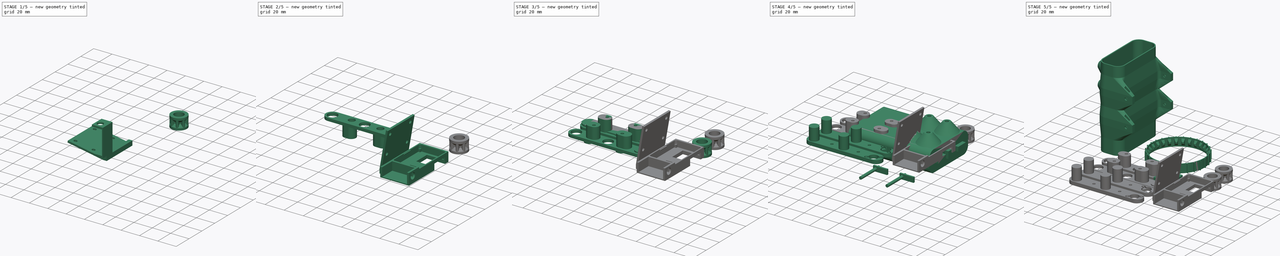
[diagram: build sequence overview — one tinted view per stage of 5, left to right]
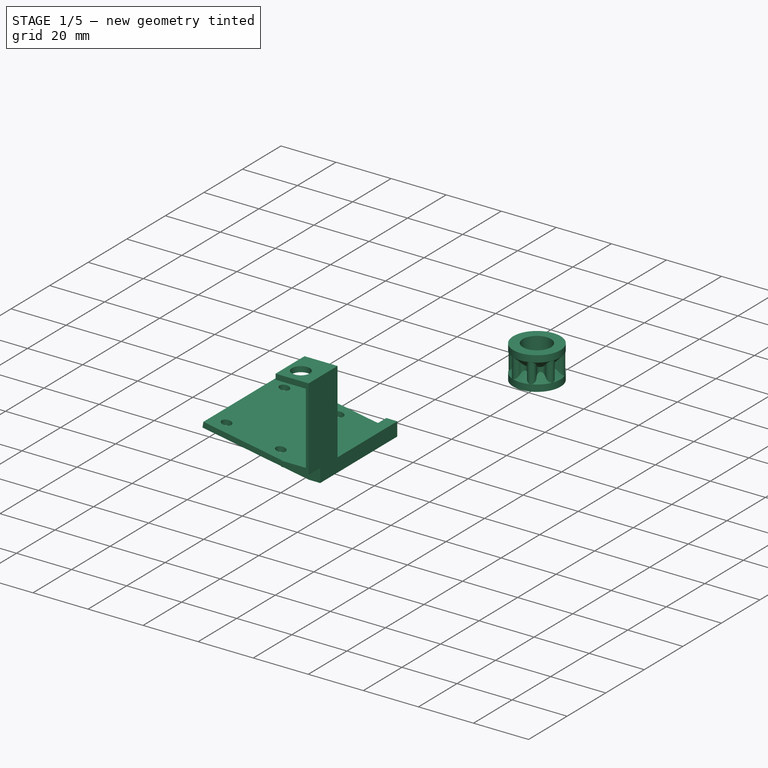
[diagram: stage 1 of 5 — iso view after this stage's code; geometry added in this stage tinted green]
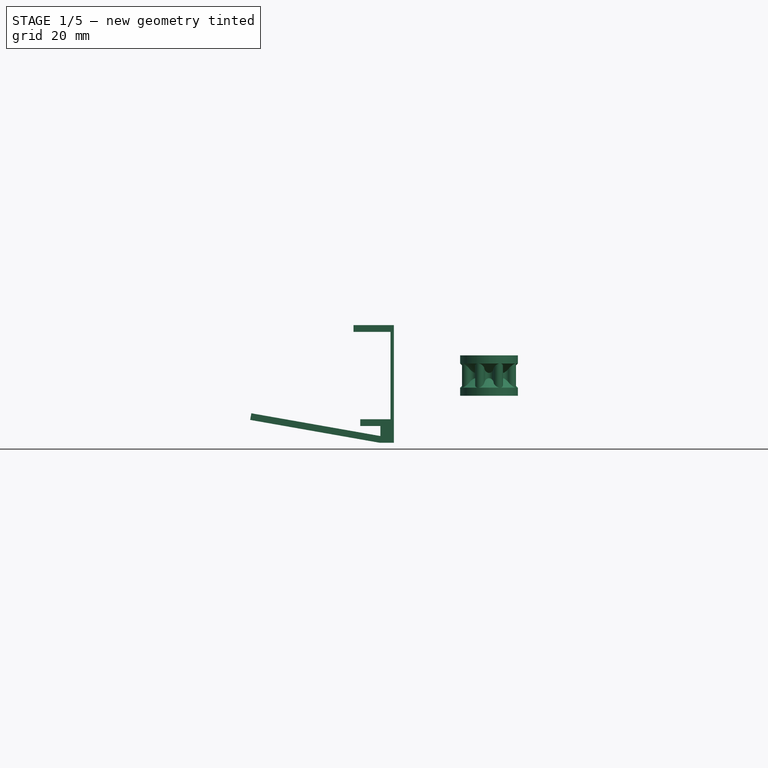
[diagram: stage 1 of 5 — front view after this stage's code; geometry added in this stage tinted green]
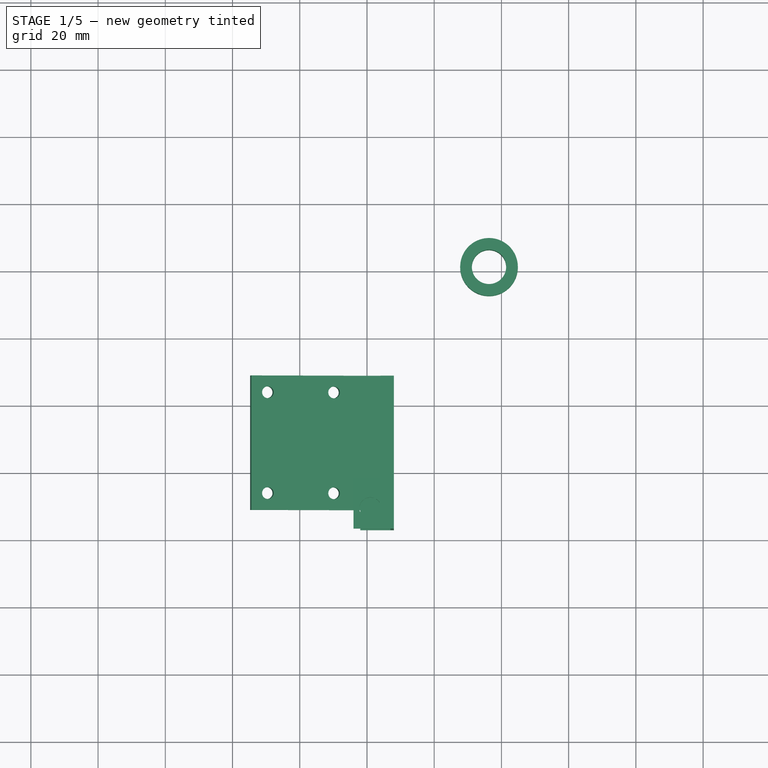
[diagram: stage 1 of 5 — top view after this stage's code; geometry added in this stage tinted green]
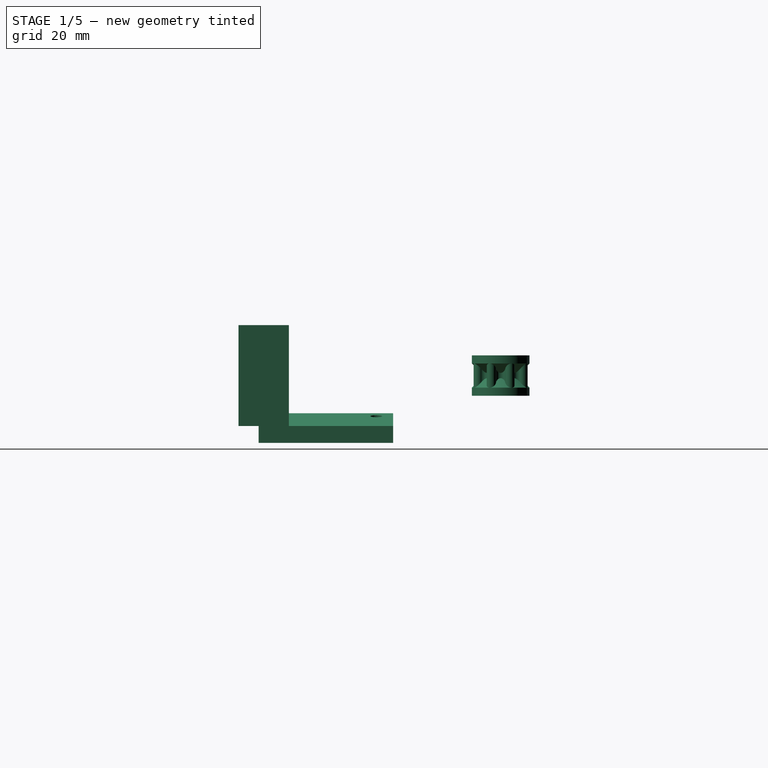
[diagram: stage 1 of 5 — right view after this stage's code; geometry added in this stage tinted green]
FCSTD DOCUMENT  (FreeCAD 0.19R)
Label: RobotParts
License: All rights reserved
LicenseURL: http://en.wikipedia.org/wiki/All_rights_reserved
objects: Sketcher::SketchObject×26, Part::MultiFuse×20, Part::Cylinder×14, Part::FeaturePython×13, Part::Box×12, Part::Cut×12, PartDesign::Pad×11, Part::Extrusion×8, PartDesign::Body×7, Part::Mirroring×5, Part::Chamfer×2, PartDesign::Pocket×2, Spreadsheet::Sheet×1, PartDesign::AdditiveCylinder×1, Part::MultiCommon×1, Part::Revolution×1, Part::Loft×1, Part::Cone×1, App::DocumentObjectGroup×1
note: 149 computed .brp shape members not serialized (recipe doc carries the construction recipe); baked Part::Feature solids carry a one-line shape summary decoded from their .brp

FEATURE [Part::Extrusion] Extrude004
  Base = -> Sketch003
  Dir = (0,0,1)
  DirMode = 2
  FaceMakerClass = Part::FaceMakerBullseye
  LengthFwd = 12
  LengthRev = 0
  Solid = true
  Symmetric = true
FEATURE [Sketcher::SketchObject] Sketch008  label="GearNotchOutline"
  MapMode = 5
  Placement = pos=(0,0,0) rot=(0.57735,0.57735,0.57735;2.0944rad)
  Support = -> [YZ_Plane001]
  expr: Constraints[12] = 7.18 - 1.4
  sketch-geometry (8):
    g0: LineSegment StartX=-8.58 StartY=6 StartZ=0 EndX=-8.58 EndY=3.6 EndZ=0
    g1: LineSegment StartX=-8.58 StartY=3.6 StartZ=0 EndX=-5.78 EndY=0.8 EndZ=0
    g2: LineSegment StartX=-5.78 StartY=0.8 StartZ=0 EndX=-5.78 EndY=-0.8 EndZ=0
    g3: LineSegment StartX=-5.78 StartY=-0.8 StartZ=0 EndX=-8.58 EndY=-3.6 EndZ=0
    g4: LineSegment StartX=-8.58 StartY=-3.6 StartZ=0 EndX=-8.58 EndY=-6 EndZ=0
    g5: LineSegment StartX=-8.58 StartY=-6 StartZ=0 EndX=-5.5 EndY=-6 EndZ=0
    g6: LineSegment StartX=-5.5 StartY=-6 StartZ=0 EndX=-5.5 EndY=6 EndZ=0
    g7: LineSegment StartX=-5.5 StartY=6 StartZ=0 EndX=-8.58 EndY=6 EndZ=0
  constraints (21):
    c: Vertical(g0)
    c: Coincident(g0,g1)
    c: Coincident(g1,g2)
    c: Coincident(g2,g3)
    c: Coincident(g3,g4)
    c: Coincident(g4,g5)
    c: Coincident(g5,g6)
    c: Vertical(g6)
    c: Coincident(g6,g7)
    c: Coincident(g7,g0)
    c: Horizontal(g7)
    c: Horizontal(g5)
    c: DistanceX(g1,g-1) = 5.78
    c: DistanceX(g0,g1) = 2.8
    c: Angle(g1,g2) = 2.35619
    c: Symmetric(g1,g2,g-1)
    c: DistanceY(g2,g1) = 1.6
    c: Symmetric(g0,g4,g-1)
    c: Symmetric(g0,g3,g-1)
    c: DistanceX(g5,g-1) = 5.5
    c: DistanceY(g6,g6) = 12
FEATURE [PartDesign::Body] Body001  label="GearSketches"
  Group = -> [Sketch003,Sketch008]
  Origin = -> Origin001
FEATURE [Part::Revolution] Revolve
  Angle = 360
  Axis = (0,0,1)
  Base = (0,0,0)
  FaceMakerClass = Part::FaceMakerBullseye
  Solid = true
  Source = -> Sketch008
  Symmetric = false
FEATURE [Part::MultiFuse] Fusion004  label="IdlerGear"
  Placement = pos=(-33.6936,0,0) rot=(0,0,1;0rad)
  Refine = true
  Shapes = -> [Extrude004,Revolve]
  expr: .Placement.Base.x = -<<p>>.ax_d / 2
FEATURE [Part::Box] Box006  label="Cube006"
  AttacherType = Attacher::AttachEngine3D
  Height = 2
  Length = 12
  Placement = pos=(-4,-37,13) rot=(0,0,1;0rad)
  Width = 15
FEATURE [Part::Cylinder] Cylinder010
  Angle = 360
  AttacherType = Attacher::AttachEngine3D
  Height = 10
  Placement = pos=(1,-31,9) rot=(0,0,1;0rad)
  Radius = 3.25
  expr: Radius = 6.5 / 2
FEATURE [Part::Box] Box007  label="Cube007"
  AttacherType = Attacher::AttachEngine3D
  Height = 30
  Length = 1
  Placement = pos=(7,-37,-15) rot=(0,0,1;0rad)
  Width = 15
FEATURE [Part::Box] Box008  label="Cube008"
  AttacherType = Attacher::AttachEngine3D
  Height = 2
  Length = 10
  Placement = pos=(-2,-37,-15) rot=(0,0,1;0rad)
  Width = 15
FEATURE [Part::Box] Box009  label="Cube009"
  AttacherType = Attacher::AttachEngine3D
  Height = 5
  Length = 4
  Width = 40
FEATURE [Part::Box] Box010  label="Cube010"
  AttacherType = Attacher::AttachEngine3D
  Height = 2
  Length = 40
  Placement = pos=(0,0,0) rot=(0,1,0;3.14159rad)
  Width = 40
FEATURE [Part::Cylinder] Cylinder011
  Angle = 360
  AttacherType = Attacher::AttachEngine3D
  Height = 10
  Placement = pos=(-15,5,-5) rot=(0,0,1;0rad)
  Radius = 1.75
  expr: Radius = 3.5 / 2
FEATURE [Part::Cylinder] Cylinder012
  Angle = 360
  AttacherType = Attacher::AttachEngine3D
  Height = 10
  Placement = pos=(-35,5,-5) rot=(0,0,1;0rad)
  Radius = 1.75
  expr: Radius = 3.5 / 2
FEATURE [Part::Cylinder] Cylinder013
  Angle = 360
  AttacherType = Attacher::AttachEngine3D
  Height = 10
  Placement = pos=(-35,35,-5) rot=(0,0,1;0rad)
  Radius = 1.75
  expr: Radius = 3.5 / 2
FEATURE [Part::Cylinder] Cylinder014
  Angle = 360
  AttacherType = Attacher::AttachEngine3D
  Height = 10
  Placement = pos=(-15,35,-5) rot=(0,0,1;0rad)
  Radius = 1.75
  expr: Radius = 3.5 / 2
FEATURE [Part::MultiFuse] Fusion008
  Shapes = -> [Cylinder011,Cylinder012,Cylinder013,Cylinder014]
FEATURE [Part::Cut] Cut005
  Base = -> Box010
  Placement = pos=(0.984808,0,1.82635) rot=(0,1,0;0.174533rad)
  Tool = -> Fusion008
FEATURE [Part::Box] Box011  label="Cube011"
  AttacherType = Attacher::AttachEngine3D
  Height = 5
  Length = 4
  Placement = pos=(0,0,-5) rot=(0,0,1;0rad)
  Width = 40
FEATURE [Part::MultiFuse] Fusion009
  Shapes = -> [Box009,Cut005]
FEATURE [Part::Cut] Cut006
  Base = -> Fusion009
  Placement = pos=(4,-31,-20) rot=(0,0,1;0rad)
  Tool = -> Box011
FEATURE [Part::Cut] Cut007
  Base = -> Box006
  Tool = -> Cylinder010
FEATURE [Part::MultiFuse] Fusion010
  Refine = true
  Shapes = -> [Box007,Box008,Cut006,Cut007]
FEATURE [Part::FeaturePython] Clone010  label="IdlerGear_printable"  # Draft clone (typed FeaturePython)
  AttacherType = Attacher::AttachEngine3D
  Fuse = false
  Objects = -> [Fusion004]
  Placement = pos=(36.3064,41,0) rot=(0,0,1;0rad)
  Scale = (1,1,1)
FEATURE [App::DocumentObjectGroup] Group  label="Printable_Parts"
  Group = -> [Clone002,Clone003,Clone004,Clone005,Clone006,Clone007,Clone008,Clone009,Clone010]
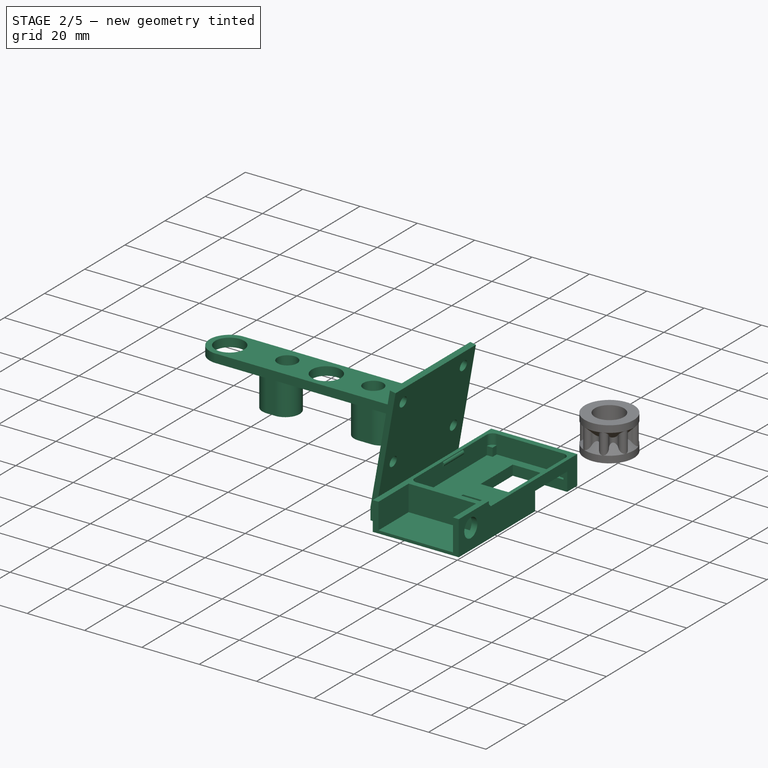
[diagram: stage 2 of 5 — iso view after this stage's code; geometry added in this stage tinted green]
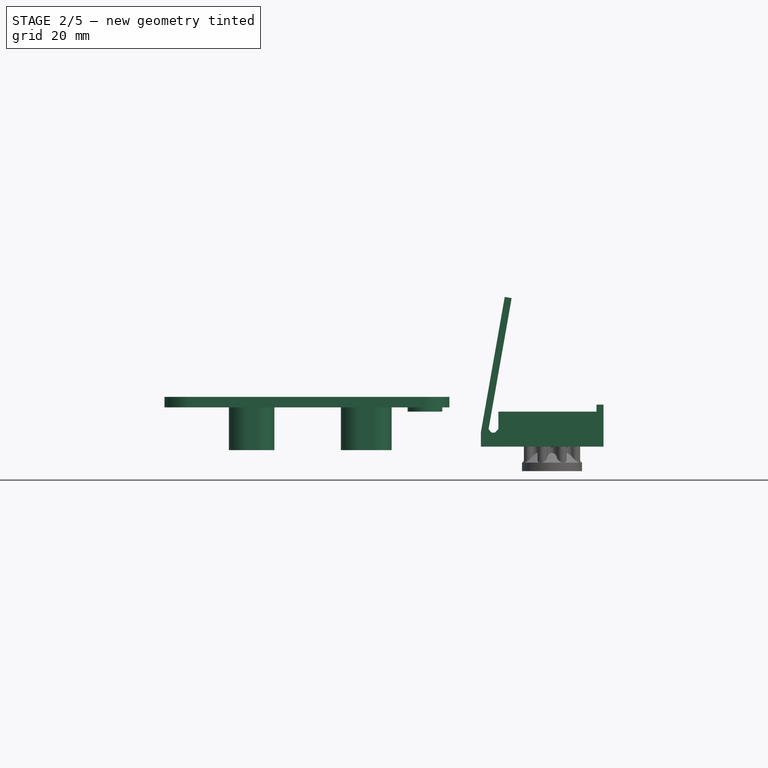
[diagram: stage 2 of 5 — front view after this stage's code; geometry added in this stage tinted green]
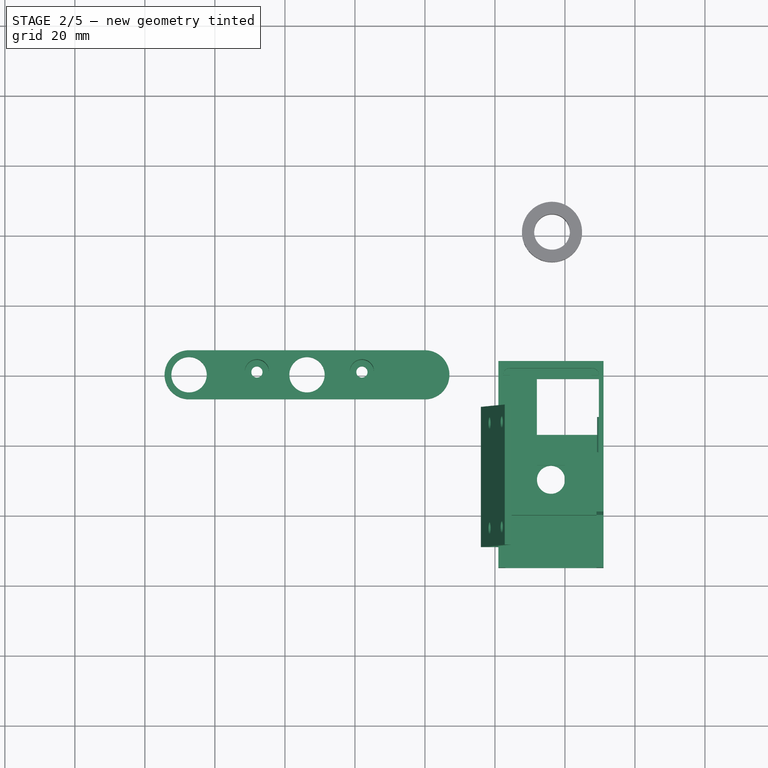
[diagram: stage 2 of 5 — top view after this stage's code; geometry added in this stage tinted green]
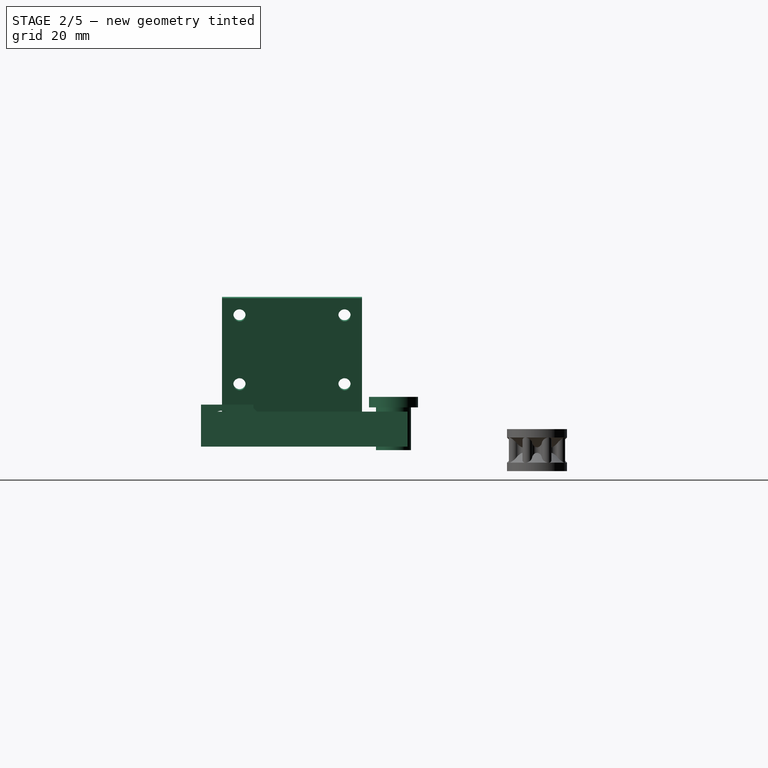
[diagram: stage 2 of 5 — right view after this stage's code; geometry added in this stage tinted green]
FEATURE [Sketcher::SketchObject] Sketch011  label="esp32master"
  MapMode = 5
  Placement = pos=(0,0,0) rot=(0.57735,0.57735,0.57735;2.0944rad)
  Support = -> [YZ_Plane004]
  sketch-geometry (17):
    g0: ArcOfCircle CenterX=-18 CenterY=11.7 CenterZ=0 NormalX=0 NormalY=0 NormalZ=1 AngleXU=0 Radius=2 StartAngle=1.5708 EndAngle=3.14159
    g1: ArcOfCircle CenterX=18 CenterY=11.7 CenterZ=0 NormalX=0 NormalY=0 NormalZ=1 AngleXU=0 Radius=2 StartAngle=0 EndAngle=1.5708
    g2: ArcOfCircle CenterX=18 CenterY=-11.7 CenterZ=0 NormalX=0 NormalY=0 NormalZ=1 AngleXU=0 Radius=2 StartAngle=4.71239 EndAngle=6.28319
    g3: ArcOfCircle CenterX=-18 CenterY=-11.7 CenterZ=0 NormalX=0 NormalY=0 NormalZ=1 AngleXU=0 Radius=2 StartAngle=3.14159 EndAngle=4.71239
    g4: LineSegment StartX=-18 StartY=13.7 StartZ=0 EndX=18 EndY=13.7 EndZ=0
    g5: LineSegment StartX=20 StartY=11.7 StartZ=0 EndX=20 EndY=-11.7 EndZ=0
    g6: LineSegment StartX=18 StartY=-13.7 StartZ=0 EndX=-18 EndY=-13.7 EndZ=0
    g7: LineSegment StartX=-20 StartY=-11.7 StartZ=0 EndX=-20 EndY=11.7 EndZ=0
    g8: LineSegment StartX=-15.8 StartY=4.05 StartZ=0 EndX=-7.7 EndY=4.05 EndZ=0
    g9: LineSegment StartX=-7.7 StartY=4.05 StartZ=0 EndX=-7.7 EndY=-4.05 EndZ=0
    g10: LineSegment StartX=-7.7 StartY=-4.05 StartZ=0 EndX=-15.8 EndY=-4.05 EndZ=0
    g11: LineSegment StartX=-15.8 StartY=-4.05 StartZ=0 EndX=-15.8 EndY=4.05 EndZ=0
    g12: Circle CenterX=-11.8 CenterY=0 CenterZ=0 NormalX=0 NormalY=0 NormalZ=1 AngleXU=0 Radius=4
    g13: LineSegment StartX=9.2 StartY=13.2 StartZ=0 EndX=13.2 EndY=13.2 EndZ=0
    g14: LineSegment StartX=13.2 StartY=13.2 StartZ=0 EndX=13.2 EndY=9.2 EndZ=0
    g15: LineSegment StartX=13.2 StartY=9.2 StartZ=0 EndX=9.2 EndY=9.2 EndZ=0
    g16: LineSegment StartX=9.2 StartY=9.2 StartZ=0 EndX=9.2 EndY=13.2 EndZ=0
  constraints (53):
    c: Coincident(g4,g0)
    c: Coincident(g4,g1)
    c: Coincident(g5,g1)
    c: Coincident(g5,g2)
    c: Coincident(g6,g2)
    c: Coincident(g6,g3)
    c: Coincident(g7,g3)
    c: Coincident(g7,g0)
    c: Vertical(g7)
    c: Horizontal(g6)
    c: Horizontal(g4)
    c: Vertical(g5)
    c: Equal(g1,g0)
    c: Equal(g3,g2)
    c: Vertical(g0,g0)
    c: Vertical(g0,g3)
    c: Vertical(g3,g3)
    c: Vertical(g1,g1)
    c: Vertical(g2,g2)
    c: Horizontal(g0,g0)
    c: Horizontal(g1,g1)
    c: Horizontal(g2,g3)
    c: Horizontal(g3,g5)
    c: DistanceX(g0,g1) = 40
    c: DistanceY(g2,g1) = 27.4
    c: Radius(g2) = 2
    c: Coincident(g8,g9)
    c: Coincident(g9,g10)
    c: Coincident(g10,g11)
    c: Coincident(g11,g8)
    c: Horizontal(g8)
    c: Horizontal(g10)
    c: Vertical(g9)
    c: Equal(g10,g9)
    c: DistanceX(g8,g8) = 8.1
    c: Symmetric(g8,g10,g-1)
    c: DistanceX(g0,g8) = 4.2
    c: Radius(g12) = 4
    c: Horizontal(g12,g-1)
    c: DistanceX(g3,g12) = 8.2
    c: Coincident(g13,g14)
    c: Coincident(g14,g15)
    c: Coincident(g15,g16)
    c: Coincident(g16,g13)
    c: Horizontal(g13)
    c: Horizontal(g15)
    c: Vertical(g14)
    c: Vertical(g16)
    c: DistanceY(g13,g1) = 0.5
    c: Equal(g16,g15)
    c: DistanceX(g15,g15) = 4
    c: DistanceX(g14,g1) = 6.8
    c: Symmetric(g3,g1,g-1)
FEATURE [Sketcher::SketchObject] Sketch013
  MapMode = 5
  Placement = pos=(0,0,0) rot=(0.57735,0.57735,0.57735;2.0944rad)
  Support = -> [YZ_Plane004]
  expr: Constraints[51] = Sketch011.Constraints[51]
  expr: Constraints[50] = Sketch011.Constraints[50]
  expr: Constraints[39] = Sketch011.Constraints[39]
  expr: Constraints[37] = Sketch011.Constraints[37]
  expr: Constraints[48] = Sketch011.Constraints[48]
  expr: Constraints[24] = Sketch011.Constraints[24]
  expr: Constraints[36] = Sketch011.Constraints[36]
  expr: Constraints[34] = Sketch011.Constraints[34]
  expr: Constraints[25] = Sketch011.Constraints[25]
  expr: Constraints[23] = Sketch011.Constraints[23]
  sketch-geometry (17):
    g0: ArcOfCircle CenterX=-18 CenterY=11.7 CenterZ=0 NormalX=0 NormalY=0 NormalZ=1 AngleXU=0 Radius=2 StartAngle=1.5708 EndAngle=3.14159
    g1: ArcOfCircle CenterX=18 CenterY=11.7 CenterZ=0 NormalX=0 NormalY=0 NormalZ=1 AngleXU=0 Radius=2 StartAngle=0 EndAngle=1.5708
    g2: ArcOfCircle CenterX=18 CenterY=-11.7 CenterZ=0 NormalX=0 NormalY=0 NormalZ=1 AngleXU=0 Radius=2 StartAngle=4.71239 EndAngle=6.28319
    g3: ArcOfCircle CenterX=-18 CenterY=-11.7 CenterZ=0 NormalX=0 NormalY=0 NormalZ=1 AngleXU=0 Radius=2 StartAngle=3.14159 EndAngle=4.71239
    g4: LineSegment StartX=-18 StartY=13.7 StartZ=0 EndX=18 EndY=13.7 EndZ=0
    g5: LineSegment StartX=20 StartY=11.7 StartZ=0 EndX=20 EndY=-11.7 EndZ=0
    g6: LineSegment StartX=18 StartY=-13.7 StartZ=0 EndX=-18 EndY=-13.7 EndZ=0
    g7: LineSegment StartX=-20 StartY=-11.7 StartZ=0 EndX=-20 EndY=11.7 EndZ=0
    g8: LineSegment [constr] StartX=-15.8 StartY=4.05 StartZ=0 EndX=-7.7 EndY=4.05 EndZ=0
    g9: LineSegment [constr] StartX=-7.7 StartY=4.05 StartZ=0 EndX=-7.7 EndY=-4.05 EndZ=0
    g10: LineSegment [constr] StartX=-7.7 StartY=-4.05 StartZ=0 EndX=-15.8 EndY=-4.05 EndZ=0
    g11: LineSegment [constr] StartX=-15.8 StartY=-4.05 StartZ=0 EndX=-15.8 EndY=4.05 EndZ=0
    g12: Circle [constr] CenterX=-11.8 CenterY=0 CenterZ=0 NormalX=0 NormalY=0 NormalZ=1 AngleXU=0 Radius=4
    g13: LineSegment [constr] StartX=9.2 StartY=13.2 StartZ=0 EndX=13.2 EndY=13.2 EndZ=0
    g14: LineSegment [constr] StartX=13.2 StartY=13.2 StartZ=0 EndX=13.2 EndY=9.2 EndZ=0
    g15: LineSegment [constr] StartX=13.2 StartY=9.2 StartZ=0 EndX=9.2 EndY=9.2 EndZ=0
    g16: LineSegment [constr] StartX=9.2 StartY=9.2 StartZ=0 EndX=9.2 EndY=13.2 EndZ=0
  constraints (53):
    c: Coincident(g4,g0)
    c: Coincident(g4,g1)
    c: Coincident(g5,g1)
    c: Coincident(g5,g2)
    c: Coincident(g6,g2)
    c: Coincident(g6,g3)
    c: Coincident(g7,g3)
    c: Coincident(g7,g0)
    c: Vertical(g7)
    c: Horizontal(g6)
    c: Horizontal(g4)
    c: Vertical(g5)
    c: Equal(g1,g0)
    c: Equal(g3,g2)
    c: Vertical(g0,g0)
    c: Vertical(g0,g3)
    c: Vertical(g3,g3)
    c: Vertical(g1,g1)
    c: Vertical(g2,g2)
    c: Horizontal(g0,g0)
    c: Horizontal(g1,g1)
    c: Horizontal(g2,g3)
    c: Horizontal(g3,g5)
    c: DistanceX(g0,g1) = 40
    c: DistanceY(g2,g1) = 27.4
    c: Radius(g2) = 2
    c: Coincident(g8,g9)
    c: Coincident(g9,g10)
    c: Coincident(g10,g11)
    c: Coincident(g11,g8)
    c: Horizontal(g8)
    c: Horizontal(g10)
    c: Vertical(g9)
    c: Equal(g10,g9)
    c: DistanceX(g8,g8) = 8.1
    c: Symmetric(g8,g10,g-1)
    c: DistanceX(g0,g8) = 4.2
    c: Radius(g12) = 4
    c: Horizontal(g12,g-1)
    c: DistanceX(g3,g12) = 8.2
    c: Coincident(g13,g14)
    c: Coincident(g14,g15)
    c: Coincident(g15,g16)
    c: Coincident(g16,g13)
    c: Horizontal(g13)
    c: Horizontal(g15)
    c: Vertical(g14)
    c: Vertical(g16)
    c: DistanceY(g13,g1) = 0.5
    c: Equal(g16,g15)
    c: DistanceX(g15,g15) = 4
    c: DistanceX(g14,g1) = 6.8
    c: Symmetric(g3,g1,g-1)
FEATURE [Sketcher::SketchObject] Sketch014
  MapMode = 5
  Placement = pos=(0,0,0) rot=(0.57735,0.57735,0.57735;2.0944rad)
  Support = -> [YZ_Plane004]
  expr: Constraints[51] = Sketch011.Constraints[51]
  expr: Constraints[50] = Sketch011.Constraints[50]
  expr: Constraints[39] = Sketch011.Constraints[39]
  expr: Constraints[37] = Sketch011.Constraints[37]
  expr: Constraints[48] = Sketch011.Constraints[48]
  expr: Constraints[24] = Sketch011.Constraints[24]
  expr: Constraints[36] = Sketch011.Constraints[36]
  expr: Constraints[34] = Sketch011.Constraints[34]
  expr: Constraints[25] = Sketch011.Constraints[25]
  expr: Constraints[23] = Sketch011.Constraints[23]
  sketch-geometry (25):
    g0: ArcOfCircle [constr] CenterX=-18 CenterY=11.7 CenterZ=0 NormalX=0 NormalY=0 NormalZ=1 AngleXU=0 Radius=2 StartAngle=1.5708 EndAngle=3.14159
    g1: ArcOfCircle [constr] CenterX=18 CenterY=11.7 CenterZ=0 NormalX=0 NormalY=0 NormalZ=1 AngleXU=0 Radius=2 StartAngle=0 EndAngle=1.5708
    g2: ArcOfCircle [constr] CenterX=18 CenterY=-11.7 CenterZ=0 NormalX=0 NormalY=0 NormalZ=1 AngleXU=0 Radius=2 StartAngle=4.71239 EndAngle=6.28319
    g3: ArcOfCircle [constr] CenterX=-18 CenterY=-11.7 CenterZ=0 NormalX=0 NormalY=0 NormalZ=1 AngleXU=0 Radius=2 StartAngle=3.14159 EndAngle=4.71239
    g4: LineSegment StartX=-18 StartY=13.7 StartZ=0 EndX=18 EndY=13.7 EndZ=0
    g5: LineSegment StartX=20 StartY=11.7 StartZ=0 EndX=20 EndY=-11.7 EndZ=0
    g6: LineSegment StartX=18 StartY=-13.7 StartZ=0 EndX=-18 EndY=-13.7 EndZ=0
    g7: LineSegment StartX=-20 StartY=-11.7 StartZ=0 EndX=-20 EndY=11.7 EndZ=0
    g8: LineSegment [constr] StartX=-15.8 StartY=4.05 StartZ=0 EndX=-7.7 EndY=4.05 EndZ=0
    g9: LineSegment [constr] StartX=-7.7 StartY=4.05 StartZ=0 EndX=-7.7 EndY=-4.05 EndZ=0
    g10: LineSegment [constr] StartX=-7.7 StartY=-4.05 StartZ=0 EndX=-15.8 EndY=-4.05 EndZ=0
    g11: LineSegment [constr] StartX=-15.8 StartY=-4.05 StartZ=0 EndX=-15.8 EndY=4.05 EndZ=0
    g12: Circle [constr] CenterX=-11.8 CenterY=0 CenterZ=0 NormalX=0 NormalY=0 NormalZ=1 AngleXU=0 Radius=4
    g13: LineSegment [constr] StartX=9.2 StartY=13.2 StartZ=0 EndX=13.2 EndY=13.2 EndZ=0
    g14: LineSegment [constr] StartX=13.2 StartY=13.2 StartZ=0 EndX=13.2 EndY=9.2 EndZ=0
    g15: LineSegment [constr] StartX=13.2 StartY=9.2 StartZ=0 EndX=9.2 EndY=9.2 EndZ=0
    g16: LineSegment [constr] StartX=9.2 StartY=9.2 StartZ=0 EndX=9.2 EndY=13.2 EndZ=0
    g17: LineSegment StartX=-20 StartY=-11.7 StartZ=0 EndX=-18 EndY=-11.7 EndZ=0
    g18: LineSegment StartX=-18 StartY=-11.7 StartZ=0 EndX=-18 EndY=-13.7 EndZ=0
    g19: LineSegment StartX=18 StartY=-13.7 StartZ=0 EndX=18 EndY=-11.7 EndZ=0
    g20: LineSegment StartX=18 StartY=-11.7 StartZ=0 EndX=20 EndY=-11.7 EndZ=0
    g21: LineSegment StartX=20 StartY=11.7 StartZ=0 EndX=18 EndY=11.7 EndZ=0
    g22: LineSegment StartX=18 StartY=11.7 StartZ=0 EndX=18 EndY=13.7 EndZ=0
    g23: LineSegment StartX=-18 StartY=13.7 StartZ=0 EndX=-18 EndY=11.7 EndZ=0
    g24: LineSegment StartX=-18 StartY=11.7 StartZ=0 EndX=-20 EndY=11.7 EndZ=0
  constraints (69):
    c: Coincident(g4,g0)
    c: Coincident(g4,g1)
    c: Coincident(g5,g1)
    c: Coincident(g5,g2)
    c: Coincident(g6,g2)
    c: Coincident(g6,g3)
    c: Coincident(g7,g3)
    c: Coincident(g7,g0)
    c: Vertical(g7)
    c: Horizontal(g6)
    c: Horizontal(g4)
    c: Vertical(g5)
    c: Equal(g1,g0)
    c: Equal(g3,g2)
    c: Vertical(g0,g0)
    c: Vertical(g0,g3)
    c: Vertical(g3,g3)
    c: Vertical(g1,g1)
    c: Vertical(g2,g2)
    c: Horizontal(g0,g0)
    c: Horizontal(g1,g1)
    c: Horizontal(g2,g3)
    c: Horizontal(g3,g5)
    c: DistanceX(g0,g1) = 40
    c: DistanceY(g2,g1) = 27.4
    c: Radius(g2) = 2
    c: Coincident(g8,g9)
    c: Coincident(g9,g10)
    c: Coincident(g10,g11)
    c: Coincident(g11,g8)
    c: Horizontal(g8)
    c: Horizontal(g10)
    c: Vertical(g9)
    c: Equal(g10,g9)
    c: DistanceX(g8,g8) = 8.1
    c: Symmetric(g8,g10,g-1)
    c: DistanceX(g0,g8) = 4.2
    c: Radius(g12) = 4
    c: Horizontal(g12,g-1)
    c: DistanceX(g3,g12) = 8.2
    c: Coincident(g13,g14)
    c: Coincident(g14,g15)
    c: Coincident(g15,g16)
    c: Coincident(g16,g13)
    c: Horizontal(g13)
    c: Horizontal(g15)
    c: Vertical(g14)
    c: Vertical(g16)
    c: DistanceY(g13,g1) = 0.5
    c: Equal(g16,g15)
    c: DistanceX(g15,g15) = 4
    c: DistanceX(g14,g1) = 6.8
    c: Coincident(g17,g7)
    c: Coincident(g17,g3)
    c: Coincident(g18,g17)
    c: Coincident(g18,g6)
    c: Coincident(g19,g6)
    c: Coincident(g19,g2)
    c: Coincident(g20,g19)
    c: Coincident(g20,g5)
    c: Coincident(g21,g5)
    c: Coincident(g21,g1)
    c: Coincident(g22,g21)
    c: Coincident(g22,g4)
    c: Coincident(g23,g4)
    c: Coincident(g23,g0)
    c: Coincident(g24,g23)
    c: Coincident(g24,g7)
    c: Symmetric(g7,g5,g-1)
FEATURE [Sketcher::SketchObject] Sketch015
  MapMode = 5
  Placement = pos=(0,0,0) rot=(0.57735,0.57735,0.57735;2.0944rad)
  Support = -> [YZ_Plane004]
  expr: Constraints[51] = Sketch011.Constraints[51]
  expr: Constraints[50] = Sketch011.Constraints[50]
  expr: Constraints[39] = Sketch011.Constraints[39]
  expr: Constraints[37] = Sketch011.Constraints[37]
  expr: Constraints[48] = Sketch011.Constraints[48]
  expr: Constraints[24] = Sketch011.Constraints[24]
  expr: Constraints[36] = Sketch011.Constraints[36]
  expr: Constraints[34] = Sketch011.Constraints[34]
  expr: Constraints[25] = Sketch011.Constraints[25]
  expr: Constraints[23] = Sketch011.Constraints[23]
  sketch-geometry (17):
    g0: ArcOfCircle [constr] CenterX=-18 CenterY=11.7 CenterZ=0 NormalX=0 NormalY=0 NormalZ=1 AngleXU=0 Radius=2 StartAngle=1.5708 EndAngle=3.14159
    g1: ArcOfCircle [constr] CenterX=18 CenterY=11.7 CenterZ=0 NormalX=0 NormalY=0 NormalZ=1 AngleXU=0 Radius=2 StartAngle=0 EndAngle=1.5708
    g2: ArcOfCircle [constr] CenterX=18 CenterY=-11.7 CenterZ=0 NormalX=0 NormalY=0 NormalZ=1 AngleXU=0 Radius=2 StartAngle=4.71239 EndAngle=6.28319
    g3: ArcOfCircle [constr] CenterX=-18 CenterY=-11.7 CenterZ=0 NormalX=0 NormalY=0 NormalZ=1 AngleXU=0 Radius=2 StartAngle=3.14159 EndAngle=4.71239
    g4: LineSegment [constr] StartX=-18 StartY=13.7 StartZ=0 EndX=18 EndY=13.7 EndZ=0
    g5: LineSegment [constr] StartX=20 StartY=11.7 StartZ=0 EndX=20 EndY=-11.7 EndZ=0
    g6: LineSegment [constr] StartX=18 StartY=-13.7 StartZ=0 EndX=-18 EndY=-13.7 EndZ=0
    g7: LineSegment [constr] StartX=-20 StartY=-11.7 StartZ=0 EndX=-20 EndY=11.7 EndZ=0
    g8: LineSegment StartX=-15.8 StartY=4.05 StartZ=0 EndX=-7.7 EndY=4.05 EndZ=0
    g9: LineSegment StartX=-7.7 StartY=4.05 StartZ=0 EndX=-7.7 EndY=-4.05 EndZ=0
    g10: LineSegment StartX=-7.7 StartY=-4.05 StartZ=0 EndX=-15.8 EndY=-4.05 EndZ=0
    g11: LineSegment StartX=-15.8 StartY=-4.05 StartZ=0 EndX=-15.8 EndY=4.05 EndZ=0
    g12: Circle [constr] CenterX=-11.8 CenterY=0 CenterZ=0 NormalX=0 NormalY=0 NormalZ=1 AngleXU=0 Radius=4
    g13: LineSegment [constr] StartX=9.2 StartY=13.2 StartZ=0 EndX=13.2 EndY=13.2 EndZ=0
    g14: LineSegment [constr] StartX=13.2 StartY=13.2 StartZ=0 EndX=13.2 EndY=9.2 EndZ=0
    g15: LineSegment [constr] StartX=13.2 StartY=9.2 StartZ=0 EndX=9.2 EndY=9.2 EndZ=0
    g16: LineSegment [constr] StartX=9.2 StartY=9.2 StartZ=0 EndX=9.2 EndY=13.2 EndZ=0
  constraints (53):
    c: Coincident(g4,g0)
    c: Coincident(g4,g1)
    c: Coincident(g5,g1)
    c: Coincident(g5,g2)
    c: Coincident(g6,g2)
    c: Coincident(g6,g3)
    c: Coincident(g7,g3)
    c: Coincident(g7,g0)
    c: Vertical(g7)
    c: Horizontal(g6)
    c: Horizontal(g4)
    c: Vertical(g5)
    c: Equal(g1,g0)
    c: Equal(g3,g2)
    c: Vertical(g0,g0)
    c: Vertical(g0,g3)
    c: Vertical(g3,g3)
    c: Vertical(g1,g1)
    c: Vertical(g2,g2)
    c: Horizontal(g0,g0)
    c: Horizontal(g1,g1)
    c: Horizontal(g2,g3)
    c: Horizontal(g3,g5)
    c: DistanceX(g0,g1) = 40
    c: DistanceY(g2,g1) = 27.4
    c: Radius(g2) = 2
    c: Coincident(g8,g9)
    c: Coincident(g9,g10)
    c: Coincident(g10,g11)
    c: Coincident(g11,g8)
    c: Horizontal(g8)
    c: Horizontal(g10)
    c: Vertical(g9)
    c: Equal(g10,g9)
    c: DistanceX(g8,g8) = 8.1
    c: Symmetric(g8,g10,g-1)
    c: DistanceX(g0,g8) = 4.2
    c: Radius(g12) = 4
    c: Horizontal(g12,g-1)
    c: DistanceX(g3,g12) = 8.2
    c: Coincident(g13,g14)
    c: Coincident(g14,g15)
    c: Coincident(g15,g16)
    c: Coincident(g16,g13)
    c: Horizontal(g13)
    c: Horizontal(g15)
    c: Vertical(g14)
    c: Vertical(g16)
    c: DistanceY(g13,g1) = 0.5
    c: Equal(g16,g15)
    c: DistanceX(g15,g15) = 4
    c: DistanceX(g14,g1) = 6.8
    c: Symmetric(g3,g1,g-1)
FEATURE [Sketcher::SketchObject] Sketch016
  MapMode = 5
  Placement = pos=(0,0,0) rot=(0.57735,0.57735,0.57735;2.0944rad)
  Support = -> [YZ_Plane004]
  expr: Constraints[51] = Sketch011.Constraints[51]
  expr: Constraints[50] = Sketch011.Constraints[50]
  expr: Constraints[39] = Sketch011.Constraints[39]
  expr: Constraints[37] = Sketch011.Constraints[37]
  expr: Constraints[48] = Sketch011.Constraints[48]
  expr: Constraints[24] = Sketch011.Constraints[24]
  expr: Constraints[36] = Sketch011.Constraints[36]
  expr: Constraints[34] = Sketch011.Constraints[34]
  expr: Constraints[25] = Sketch011.Constraints[25]
  expr: Constraints[23] = Sketch011.Constraints[23]
  sketch-geometry (17):
    g0: ArcOfCircle [constr] CenterX=-18 CenterY=11.7 CenterZ=0 NormalX=0 NormalY=0 NormalZ=1 AngleXU=0 Radius=2 StartAngle=1.5708 EndAngle=3.14159
    g1: ArcOfCircle [constr] CenterX=18 CenterY=11.7 CenterZ=0 NormalX=0 NormalY=0 NormalZ=1 AngleXU=0 Radius=2 StartAngle=0 EndAngle=1.5708
    g2: ArcOfCircle [constr] CenterX=18 CenterY=-11.7 CenterZ=0 NormalX=0 NormalY=0 NormalZ=1 AngleXU=0 Radius=2 StartAngle=4.71239 EndAngle=6.28319
    g3: ArcOfCircle [constr] CenterX=-18 CenterY=-11.7 CenterZ=0 NormalX=0 NormalY=0 NormalZ=1 AngleXU=0 Radius=2 StartAngle=3.14159 EndAngle=4.71239
    g4: LineSegment [constr] StartX=-18 StartY=13.7 StartZ=0 EndX=18 EndY=13.7 EndZ=0
    g5: LineSegment [constr] StartX=20 StartY=11.7 StartZ=0 EndX=20 EndY=-11.7 EndZ=0
    g6: LineSegment [constr] StartX=18 StartY=-13.7 StartZ=0 EndX=-18 EndY=-13.7 EndZ=0
    g7: LineSegment [constr] StartX=-20 StartY=-11.7 StartZ=0 EndX=-20 EndY=11.7 EndZ=0
    g8: LineSegment [constr] StartX=-15.8 StartY=4.05 StartZ=0 EndX=-7.7 EndY=4.05 EndZ=0
    g9: LineSegment [constr] StartX=-7.7 StartY=4.05 StartZ=0 EndX=-7.7 EndY=-4.05 EndZ=0
    g10: LineSegment [constr] StartX=-7.7 StartY=-4.05 StartZ=0 EndX=-15.8 EndY=-4.05 EndZ=0
    g11: LineSegment [constr] StartX=-15.8 StartY=-4.05 StartZ=0 EndX=-15.8 EndY=4.05 EndZ=0
    g12: Circle CenterX=-11.8 CenterY=0 CenterZ=0 NormalX=0 NormalY=0 NormalZ=1 AngleXU=0 Radius=4
    g13: LineSegment [constr] StartX=9.2 StartY=13.2 StartZ=0 EndX=13.2 EndY=13.2 EndZ=0
    g14: LineSegment [constr] StartX=13.2 StartY=13.2 StartZ=0 EndX=13.2 EndY=9.2 EndZ=0
    g15: LineSegment [constr] StartX=13.2 StartY=9.2 StartZ=0 EndX=9.2 EndY=9.2 EndZ=0
    g16: LineSegment [constr] StartX=9.2 StartY=9.2 StartZ=0 EndX=9.2 EndY=13.2 EndZ=0
  constraints (53):
    c: Coincident(g4,g0)
    c: Coincident(g4,g1)
    c: Coincident(g5,g1)
    c: Coincident(g5,g2)
    c: Coincident(g6,g2)
    c: Coincident(g6,g3)
    c: Coincident(g7,g3)
    c: Coincident(g7,g0)
    c: Vertical(g7)
    c: Horizontal(g6)
    c: Horizontal(g4)
    c: Vertical(g5)
    c: Equal(g1,g0)
    c: Equal(g3,g2)
    c: Vertical(g0,g0)
    c: Vertical(g0,g3)
    c: Vertical(g3,g3)
    c: Vertical(g1,g1)
    c: Vertical(g2,g2)
    c: Horizontal(g0,g0)
    c: Horizontal(g1,g1)
    c: Horizontal(g2,g3)
    c: Horizontal(g3,g5)
    c: DistanceX(g0,g1) = 40
    c: DistanceY(g2,g1) = 27.4
    c: Radius(g2) = 2
    c: Coincident(g8,g9)
    c: Coincident(g9,g10)
    c: Coincident(g10,g11)
    c: Coincident(g11,g8)
    c: Horizontal(g8)
    c: Horizontal(g10)
    c: Vertical(g9)
    c: Equal(g10,g9)
    c: DistanceX(g8,g8) = 8.1
    c: Symmetric(g8,g10,g-1)
    c: DistanceX(g0,g8) = 4.2
    c: Radius(g12) = 4
    c: Horizontal(g12,g-1)
    c: DistanceX(g3,g12) = 8.2
    c: Coincident(g13,g14)
    c: Coincident(g14,g15)
    c: Coincident(g15,g16)
    c: Coincident(g16,g13)
    c: Horizontal(g13)
    c: Horizontal(g15)
    c: Vertical(g14)
    c: Vertical(g16)
    c: DistanceY(g13,g1) = 0.5
    c: Equal(g16,g15)
    c: DistanceX(g15,g15) = 4
    c: DistanceX(g14,g1) = 6.8
    c: Symmetric(g3,g1,g-1)
FEATURE [Part::Box] Box004  label="Cube004"
  AttacherType = Attacher::AttachEngine3D
  Height = 30
  Length = 10
  Placement = pos=(-2,-22,-15) rot=(0,0,1;0rad)
  Width = 44
FEATURE [PartDesign::Pad] Pad002
  Length = 1.6
  Length2 = 100
  Placement = pos=(0,0,0) rot=(0.57735,0.57735,0.57735;2.0944rad)
  Profile = -> Sketch013
  Type = 0
FEATURE [PartDesign::Pad] Pad003
  BaseFeature = -> Pad002
  Length = 4.5
  Length2 = 100
  Placement = pos=(0,0,0) rot=(0.57735,0.57735,0.57735;2.0944rad)
  Profile = -> Sketch014
  Type = 0
FEATURE [PartDesign::Pad] Pad004
  BaseFeature = -> Pad003
  Length = 6.5
  Length2 = 100
  Placement = pos=(0,0,0) rot=(0.57735,0.57735,0.57735;2.0944rad)
  Profile = -> Sketch015
  Type = 0
FEATURE [PartDesign::Pad] Pad005
  BaseFeature = -> Pad004
  Length = 10
  Length2 = 100
  Placement = pos=(0,0,0) rot=(0.57735,0.57735,0.57735;2.0944rad)
  Profile = -> Sketch016
  Type = 0
FEATURE [PartDesign::Body] Body004  label="CameraHousing"
  Group = -> [Sketch011,Sketch013,Pad002,Sketch014,Pad003,Sketch015,Pad004,Sketch016,Pad005]
  Origin = -> Origin004
  Tip = -> Pad005
FEATURE [Part::Extrusion] Extrude006
  Base = -> Sketch013
  Dir = (1,-1e-16,1e-16)
  DirMode = 2
  FaceMakerClass = Part::FaceMakerBullseye
  LengthFwd = 0
  LengthRev = 2
  Solid = true
  Symmetric = false
FEATURE [Part::MultiFuse] Fusion006
  Shapes = -> [Pad005,Extrude006]
FEATURE [Part::Cut] Cut003
  Base = -> Box004
  Tool = -> Fusion006
FEATURE [Part::Cylinder] Cylinder007
  Angle = 360
  AttacherType = Attacher::AttachEngine3D
  Height = 10
  Placement = pos=(-1,-4,-14) rot=(-1,0,0;1.5708rad)
  Radius = 0.8
FEATURE [Part::Box] Box005  label="Cube005"
  AttacherType = Attacher::AttachEngine3D
  Height = 20
  Length = 8
  Placement = pos=(1.6,1,-4) rot=(0,0,1;0rad)
  Width = 16
FEATURE [Part::Mirroring] Part__Mirroring  label="Cylinder007 (Mirror #1)"
  Base = (0,0,0)
  Normal = (0,0,1)
  Source = -> Cylinder007
FEATURE [Part::MultiFuse] Fusion007
  Refine = true
  Shapes = -> [Part__Mirroring,Cylinder007,Cut003]
FEATURE [Part::Cut] Cut004  label="EspCamHousing"
  Base = -> Fusion007
  Tool = -> Box005
FEATURE [Part::MultiFuse] Fusion011  label="EspCamHousingWithHolder"
  Refine = true
  Shapes = -> [Cut004,Fusion010]
FEATURE [Part::Chamfer] Chamfer  label="PolishedEspCamHousingHolder"
  Base = -> Fusion011
  Edges = 3 edges r=1: [Edge4,Edge133,Edge144]
FEATURE [Sketcher::SketchObject] Sketch022  label="RetainerMaster"
  MapMode = 5
  Support = -> [XY_Plane006]
  expr: Constraints[7] = <<p>>.ax_d
  expr: Constraints[8] = <<p>>.ax_d / 2
  sketch-geometry (19):
    g0: ArcOfCircle CenterX=-67.3872 CenterY=2e-16 CenterZ=0 NormalX=0 NormalY=0 NormalZ=1 AngleXU=0 Radius=7 StartAngle=1.5708 EndAngle=4.71239
    g1: ArcOfCircle CenterX=0 CenterY=0 CenterZ=0 NormalX=0 NormalY=0 NormalZ=1 AngleXU=0 Radius=7 StartAngle=4.71239 EndAngle=7.85398
    g2: LineSegment StartX=-67.3872 StartY=-7 StartZ=0 EndX=0 EndY=-7 EndZ=0
    g3: LineSegment StartX=-67.3872 StartY=7 StartZ=0 EndX=0 EndY=7 EndZ=0
    g4: Circle CenterX=-33.6936 CenterY=0 CenterZ=0 NormalX=0 NormalY=0 NormalZ=1 AngleXU=0 Radius=5.05
    g5: Circle CenterX=-67.3872 CenterY=0 CenterZ=0 NormalX=0 NormalY=0 NormalZ=1 AngleXU=0 Radius=5.05
    g6: Circle CenterX=-18 CenterY=1 CenterZ=0 NormalX=0 NormalY=0 NormalZ=1 AngleXU=0 Radius=1.6
    g7: Circle CenterX=-48 CenterY=1 CenterZ=0 NormalX=0 NormalY=0 NormalZ=1 AngleXU=0 Radius=1.6
    g8: Circle CenterX=-18 CenterY=1 CenterZ=0 NormalX=0 NormalY=0 NormalZ=1 AngleXU=0 Radius=3.45
    g9: Circle CenterX=-48 CenterY=1 CenterZ=0 NormalX=0 NormalY=0 NormalZ=1 AngleXU=0 Radius=3.45
    g10: ArcOfCircle CenterX=-19 CenterY=2e-16 CenterZ=0 NormalX=0 NormalY=0 NormalZ=1 AngleXU=0 Radius=5 StartAngle=1.5708 EndAngle=4.71239
    g11: ArcOfCircle CenterX=-14.5 CenterY=0 CenterZ=0 NormalX=0 NormalY=0 NormalZ=1 AngleXU=0 Radius=5 StartAngle=4.71239 EndAngle=7.85398
    g12: LineSegment StartX=-19 StartY=-5 StartZ=0 EndX=-14.5 EndY=-5 EndZ=0
    g13: LineSegment StartX=-19 StartY=5 StartZ=0 EndX=-14.5 EndY=5 EndZ=0
    g14: ArcOfCircle CenterX=-51 CenterY=4e-16 CenterZ=0 NormalX=0 NormalY=0 NormalZ=1 AngleXU=0 Radius=5 StartAngle=1.5708 EndAngle=4.71239
    g15: ArcOfCircle CenterX=-48 CenterY=0 CenterZ=0 NormalX=0 NormalY=0 NormalZ=1 AngleXU=0 Radius=5 StartAngle=4.71239 EndAngle=7.85398
    g16: LineSegment StartX=-51 StartY=-5 StartZ=0 EndX=-48 EndY=-5 EndZ=0
    g17: LineSegment StartX=-51 StartY=5 StartZ=0 EndX=-48 EndY=5 EndZ=0
    g18: Circle CenterX=0 CenterY=0 CenterZ=0 NormalX=0 NormalY=0 NormalZ=1 AngleXU=0 Radius=4.95
  constraints (47):
    c: Tangent(g0,g3) = 1.5708
    c: Tangent(g0,g2) = -1.5708
    c: Tangent(g2,g1) = -1.5708
    c: Tangent(g3,g1) = 1.5708
    c: Horizontal(g2)
    c: Equal(g0,g1)
    c: Coincident(g1,g-1)
    c: DistanceX(g0,g1) = 67.3872
    c: DistanceX(g4,g1) = 33.6936
    c: DistanceY(g1,g1) = 7
    c: Radius(g4) = 5.05
    c: Equal(g4,g5)
    c: Vertical(g5,g0)
    c: Horizontal(g4,g1)
    c: Horizontal(g5,g1)
    c: Radius(g6) = 1.6
    c: DistanceX(g6,g1) = 18
    c: DistanceY(g1,g6) = 1
    c: Equal(g7,g6)
    c: Horizontal(g7,g6)
    c: DistanceX(g7,g6) = 30
    c: Radius(g8) = 3.45
    c: Equal(g9,g8)
    c: Coincident(g8,g6)
    c: Coincident(g9,g7)
    c: Tangent(g10,g13) = 1.5708
    c: Tangent(g10,g12) = -1.5708
    c: Tangent(g12,g11) = -1.5708
    c: Tangent(g13,g11) = 1.5708
    c: Horizontal(g12)
    c: Equal(g10,g11)
    c: Horizontal(g11,g1)
    c: DistanceX(g10,g6) = 1
    c: DistanceY(g6,g11) = 4
    c: DistanceX(g6,g11) = 3.5
    c: Tangent(g14,g17) = 1.5708
    c: Tangent(g14,g16) = -1.5708
    c: Tangent(g16,g15) = -1.5708
    c: Tangent(g17,g15) = 1.5708
    c: Horizontal(g16)
    c: Equal(g14,g15)
    c: Horizontal(g15,g1)
    c: Horizontal(g15,g10)
    c: Vertical(g15,g7)
    c: DistanceX(g14,g7) = 3
    c: Coincident(g18,g1)
    c: Radius(g18) = 4.95
FEATURE [Sketcher::SketchObject] Sketch023  label="MainPlate"
  AttachmentOffset = pos=(0,0,12.2) rot=(0,0,1;0rad)
  MapMode = 5
  Placement = pos=(0,0,12.2) rot=(0,0,1;0rad)
  Support = -> [XY_Plane006]
  expr: Constraints[7] = Sketch022.Constraints[7]
  expr: Constraints[8] = Sketch022.Constraints[8]
  expr: Constraints[9] = Sketch022.Constraints[9]
  expr: Constraints[10] = Sketch022.Constraints[10]
  expr: Constraints[16] = Sketch022.Constraints[16]
  expr: Constraints[15] = Sketch022.Constraints[15]
  expr: Constraints[44] = Sketch022.Constraints[44]
  expr: Constraints[17] = Sketch022.Constraints[17]
  expr: Constraints[20] = Sketch022.Constraints[20]
  expr: Constraints[21] = Sketch022.Constraints[21]
  expr: Constraints[32] = Sketch022.Constraints[32]
  expr: Constraints[33] = Sketch022.Constraints[33]
  expr: Constraints[34] = Sketch022.Constraints[34]
  expr: Constraints[46] = Sketch022.Constraints[46]
  sketch-geometry (19):
    g0: ArcOfCircle CenterX=-67.3872 CenterY=0 CenterZ=0 NormalX=0 NormalY=0 NormalZ=1 AngleXU=0 Radius=7 StartAngle=1.5708 EndAngle=4.71239
    g1: ArcOfCircle CenterX=0 CenterY=0 CenterZ=0 NormalX=0 NormalY=0 NormalZ=1 AngleXU=0 Radius=7 StartAngle=4.71239 EndAngle=7.85398
    g2: LineSegment StartX=-67.3872 StartY=-7 StartZ=0 EndX=0 EndY=-7 EndZ=0
    g3: LineSegment StartX=-67.3872 StartY=7 StartZ=0 EndX=0 EndY=7 EndZ=0
    g4: Circle [constr] CenterX=-33.6936 CenterY=0 CenterZ=0 NormalX=0 NormalY=0 NormalZ=1 AngleXU=0 Radius=5.05
    g5: Circle [constr] CenterX=-67.3872 CenterY=0 CenterZ=0 NormalX=0 NormalY=0 NormalZ=1 AngleXU=0 Radius=5.05
    g6: Circle [constr] CenterX=-18 CenterY=1 CenterZ=0 NormalX=0 NormalY=0 NormalZ=1 AngleXU=0 Radius=1.6
    g7: Circle [constr] CenterX=-48 CenterY=1 CenterZ=0 NormalX=0 NormalY=0 NormalZ=1 AngleXU=0 Radius=1.6
    g8: Circle [constr] CenterX=-18 CenterY=1 CenterZ=0 NormalX=0 NormalY=0 NormalZ=1 AngleXU=0 Radius=3.45
    g9: Circle [constr] CenterX=-48 CenterY=1 CenterZ=0 NormalX=0 NormalY=0 NormalZ=1 AngleXU=0 Radius=3.45
    g10: ArcOfCircle [constr] CenterX=-19 CenterY=0 CenterZ=0 NormalX=0 NormalY=0 NormalZ=1 AngleXU=0 Radius=5 StartAngle=1.5708 EndAngle=4.71239
    g11: ArcOfCircle [constr] CenterX=-14.5 CenterY=0 CenterZ=0 NormalX=0 NormalY=0 NormalZ=1 AngleXU=0 Radius=5 StartAngle=4.71239 EndAngle=7.85398
    g12: LineSegment [constr] StartX=-19 StartY=-5 StartZ=0 EndX=-14.5 EndY=-5 EndZ=0
    g13: LineSegment [constr] StartX=-19 StartY=5 StartZ=0 EndX=-14.5 EndY=5 EndZ=0
    g14: ArcOfCircle [constr] CenterX=-51 CenterY=2e-16 CenterZ=0 NormalX=0 NormalY=0 NormalZ=1 AngleXU=0 Radius=5 StartAngle=1.5708 EndAngle=4.71239
    g15: ArcOfCircle [constr] CenterX=-48 CenterY=0 CenterZ=0 NormalX=0 NormalY=0 NormalZ=1 AngleXU=0 Radius=5 StartAngle=4.71239 EndAngle=7.85398
    g16: LineSegment [constr] StartX=-51 StartY=-5 StartZ=0 EndX=-48 EndY=-5 EndZ=0
    g17: LineSegment [constr] StartX=-51 StartY=5 StartZ=0 EndX=-48 EndY=5 EndZ=0
    g18: Circle [constr] CenterX=0 CenterY=0 CenterZ=0 NormalX=0 NormalY=0 NormalZ=1 AngleXU=0 Radius=4.95
  constraints (47):
    c: Tangent(g0,g3) = 1.5708
    c: Tangent(g0,g2) = -1.5708
    c: Tangent(g2,g1) = -1.5708
    c: Tangent(g3,g1) = 1.5708
    c: Horizontal(g2)
    c: Equal(g0,g1)
    c: Coincident(g1,g-1)
    c: DistanceX(g0,g1) = 67.3872
    c: DistanceX(g4,g1) = 33.6936
    c: DistanceY(g1,g1) = 7
    c: Radius(g4) = 5.05
    c: Equal(g4,g5)
    c: Vertical(g5,g0)
    c: Horizontal(g4,g1)
    c: Horizontal(g5,g1)
    c: Radius(g6) = 1.6
    c: DistanceX(g6,g1) = 18
    c: DistanceY(g1,g6) = 1
    c: Equal(g7,g6)
    c: Horizontal(g7,g6)
    c: DistanceX(g7,g6) = 30
    c: Radius(g8) = 3.45
    c: Equal(g9,g8)
    c: Coincident(g8,g6)
    c: Coincident(g9,g7)
    c: Tangent(g10,g13) = 1.5708
    c: Tangent(g10,g12) = -1.5708
    c: Tangent(g12,g11) = -1.5708
    c: Tangent(g13,g11) = 1.5708
    c: Horizontal(g12)
    c: Equal(g10,g11)
    c: Horizontal(g11,g1)
    c: DistanceX(g10,g6) = 1
    c: DistanceY(g6,g11) = 4
    c: DistanceX(g6,g11) = 3.5
    c: Tangent(g14,g17) = 1.5708
    c: Tangent(g14,g16) = -1.5708
    c: Tangent(g16,g15) = -1.5708
    c: Tangent(g17,g15) = 1.5708
    c: Horizontal(g16)
    c: Equal(g14,g15)
    c: Horizontal(g15,g1)
    c: Horizontal(g15,g10)
    c: Vertical(g15,g7)
    c: DistanceX(g14,g7) = 3
    c: Coincident(g18,g1)
    c: Radius(g18) = 4.95
FEATURE [PartDesign::Pad] Pad008
  Length = 3
  Length2 = 100
  Profile = -> Sketch023
  Type = 0
FEATURE [Sketcher::SketchObject] Sketch024  label="Stilts"
  MapMode = 5
  Support = -> [XY_Plane006]
  expr: Constraints[7] = Sketch022.Constraints[7]
  expr: Constraints[56] = Sketch022.Constraints[9]
  expr: Constraints[67] = Sketch022.Constraints[20]
  expr: Constraints[8] = Sketch022.Constraints[8]
  expr: Constraints[9] = Sketch022.Constraints[9]
  expr: Constraints[81] = Sketch022.Constraints[34]
  expr: Constraints[55] = Sketch022.Constraints[8]
  expr: Constraints[10] = Sketch022.Constraints[10]
  expr: Constraints[68] = Sketch022.Constraints[21]
  expr: Constraints[16] = Sketch022.Constraints[16]
  expr: Constraints[44] = Sketch022.Constraints[44]
  expr: Constraints[15] = Sketch022.Constraints[15]
  expr: Constraints[93] = Sketch022.Constraints[46]
  expr: Constraints[17] = Sketch022.Constraints[17]
  expr: Constraints[64] = Sketch022.Constraints[17]
  expr: Constraints[54] = Sketch022.Constraints[7]
  expr: Constraints[91] = Sketch022.Constraints[44]
  expr: Constraints[20] = Sketch022.Constraints[20]
  expr: Constraints[63] = Sketch022.Constraints[16]
  expr: Constraints[21] = Sketch022.Constraints[21]
  expr: Constraints[32] = Sketch022.Constraints[32]
  expr: Constraints[33] = Sketch022.Constraints[33]
  expr: Constraints[34] = Sketch022.Constraints[34]
  expr: Constraints[57] = Sketch022.Constraints[10]
  expr: Constraints[62] = Sketch022.Constraints[15]
  expr: Constraints[46] = Sketch022.Constraints[46]
  expr: Constraints[79] = Sketch022.Constraints[32]
  expr: Constraints[80] = Sketch022.Constraints[33]
  sketch-geometry (38):
    g0: ArcOfCircle [constr] CenterX=-67.3872 CenterY=0 CenterZ=0 NormalX=0 NormalY=0 NormalZ=1 AngleXU=0 Radius=7 StartAngle=1.5708 EndAngle=4.71239
    g1: ArcOfCircle [constr] CenterX=0 CenterY=0 CenterZ=0 NormalX=0 NormalY=0 NormalZ=1 AngleXU=0 Radius=7 StartAngle=4.71239 EndAngle=7.85398
    g2: LineSegment [constr] StartX=-67.3872 StartY=-7 StartZ=0 EndX=0 EndY=-7 EndZ=0
    g3: LineSegment [constr] StartX=-67.3872 StartY=7 StartZ=0 EndX=0 EndY=7 EndZ=0
    g4: Circle [constr] CenterX=-33.6936 CenterY=0 CenterZ=0 NormalX=0 NormalY=0 NormalZ=1 AngleXU=0 Radius=5.05
    g5: Circle [constr] CenterX=-67.3872 CenterY=0 CenterZ=0 NormalX=0 NormalY=0 NormalZ=1 AngleXU=0 Radius=5.05
    g6: Circle [constr] CenterX=-18 CenterY=1 CenterZ=0 NormalX=0 NormalY=0 NormalZ=1 AngleXU=0 Radius=1.6
    g7: Circle [constr] CenterX=-48 CenterY=1 CenterZ=0 NormalX=0 NormalY=0 NormalZ=1 AngleXU=0 Radius=1.6
    g8: Circle [constr] CenterX=-18 CenterY=1 CenterZ=0 NormalX=0 NormalY=0 NormalZ=1 AngleXU=0 Radius=3.45
    g9: Circle [constr] CenterX=-48 CenterY=1 CenterZ=0 NormalX=0 NormalY=0 NormalZ=1 AngleXU=0 Radius=3.45
    g10: ArcOfCircle CenterX=-19 CenterY=0 CenterZ=0 NormalX=0 NormalY=0 NormalZ=1 AngleXU=0 Radius=5 StartAngle=1.5708 EndAngle=4.71239
    g11: ArcOfCircle CenterX=-14.5 CenterY=0 CenterZ=0 NormalX=0 NormalY=0 NormalZ=1 AngleXU=0 Radius=5 StartAngle=4.71239 EndAngle=7.85398
    g12: LineSegment StartX=-19 StartY=-5 StartZ=0 EndX=-14.5 EndY=-5 EndZ=0
    g13: LineSegment StartX=-19 StartY=5 StartZ=0 EndX=-14.5 EndY=5 EndZ=0
    g14: ArcOfCircle CenterX=-51 CenterY=2e-16 CenterZ=0 NormalX=0 NormalY=0 NormalZ=1 AngleXU=0 Radius=5 StartAngle=1.5708 EndAngle=4.71239
    g15: ArcOfCircle CenterX=-48 CenterY=0 CenterZ=0 NormalX=0 NormalY=0 NormalZ=1 AngleXU=0 Radius=5 StartAngle=4.71239 EndAngle=7.85398
    g16: LineSegment StartX=-51 StartY=-5 StartZ=0 EndX=-48 EndY=-5 EndZ=0
    g17: LineSegment StartX=-51 StartY=5 StartZ=0 EndX=-48 EndY=5 EndZ=0
    g18: Circle [constr] CenterX=0 CenterY=0 CenterZ=0 NormalX=0 NormalY=0 NormalZ=1 AngleXU=0 Radius=4.95
    g19: ArcOfCircle [constr] CenterX=-67.3872 CenterY=0 CenterZ=0 NormalX=0 NormalY=0 NormalZ=1 AngleXU=0 Radius=7 StartAngle=1.5708 EndAngle=4.71239
    g20: ArcOfCircle [constr] CenterX=0 CenterY=0 CenterZ=0 NormalX=0 NormalY=0 NormalZ=1 AngleXU=0 Radius=7 StartAngle=4.71239 EndAngle=7.85398
    g21: LineSegment [constr] StartX=-67.3872 StartY=-7 StartZ=0 EndX=0 EndY=-7 EndZ=0
    g22: LineSegment [constr] StartX=-67.3872 StartY=7 StartZ=0 EndX=0 EndY=7 EndZ=0
    g23: Circle [constr] CenterX=-33.6936 CenterY=0 CenterZ=0 NormalX=0 NormalY=0 NormalZ=1 AngleXU=0 Radius=5.05
    g24: Circle [constr] CenterX=-67.3872 CenterY=0 CenterZ=0 NormalX=0 NormalY=0 NormalZ=1 AngleXU=0 Radius=5.05
    g25: Circle [constr] CenterX=-18 CenterY=1 CenterZ=0 NormalX=0 NormalY=0 NormalZ=1 AngleXU=0 Radius=1.6
    g26: Circle [constr] CenterX=-48 CenterY=1 CenterZ=0 NormalX=0 NormalY=0 NormalZ=1 AngleXU=0 Radius=1.6
    g27: Circle [constr] CenterX=-18 CenterY=1 CenterZ=0 NormalX=0 NormalY=0 NormalZ=1 AngleXU=0 Radius=3.45
    g28: Circle [constr] CenterX=-48 CenterY=1 CenterZ=0 NormalX=0 NormalY=0 NormalZ=1 AngleXU=0 Radius=3.45
    g29: ArcOfCircle [constr] CenterX=-19 CenterY=0 CenterZ=0 NormalX=0 NormalY=0 NormalZ=1 AngleXU=0 Radius=5 StartAngle=1.5708 EndAngle=4.71239
    g30: ArcOfCircle [constr] CenterX=-14.5 CenterY=0 CenterZ=0 NormalX=0 NormalY=0 NormalZ=1 AngleXU=0 Radius=5 StartAngle=4.71239 EndAngle=7.85398
    g31: LineSegment [constr] StartX=-19 StartY=-5 StartZ=0 EndX=-14.5 EndY=-5 EndZ=0
    g32: LineSegment [constr] StartX=-19 StartY=5 StartZ=0 EndX=-14.5 EndY=5 EndZ=0
    g33: ArcOfCircle [constr] CenterX=-51 CenterY=2e-16 CenterZ=0 NormalX=0 NormalY=0 NormalZ=1 AngleXU=0 Radius=5 StartAngle=1.5708 EndAngle=4.71239
    g34: ArcOfCircle [constr] CenterX=-48 CenterY=0 CenterZ=0 NormalX=0 NormalY=0 NormalZ=1 AngleXU=0 Radius=5 StartAngle=4.71239 EndAngle=7.85398
    g35: LineSegment [constr] StartX=-51 StartY=-5 StartZ=0 EndX=-48 EndY=-5 EndZ=0
    g36: LineSegment [constr] StartX=-51 StartY=5 StartZ=0 EndX=-48 EndY=5 EndZ=0
    g37: Circle [constr] CenterX=0 CenterY=0 CenterZ=0 NormalX=0 NormalY=0 NormalZ=1 AngleXU=0 Radius=4.95
  constraints (94):
    c: Tangent(g0,g3) = 1.5708
    c: Tangent(g0,g2) = -1.5708
    c: Tangent(g2,g1) = -1.5708
    c: Tangent(g3,g1) = 1.5708
    c: Horizontal(g2)
    c: Equal(g0,g1)
    c: Coincident(g1,g-1)
    c: DistanceX(g0,g1) = 67.3872
    c: DistanceX(g4,g1) = 33.6936
    c: DistanceY(g1,g1) = 7
    c: Radius(g4) = 5.05
    c: Equal(g4,g5)
    c: Vertical(g5,g0)
    c: Horizontal(g4,g1)
    c: Horizontal(g5,g1)
    c: Radius(g6) = 1.6
    c: DistanceX(g6,g1) = 18
    c: DistanceY(g1,g6) = 1
    c: Equal(g7,g6)
    c: Horizontal(g7,g6)
    c: DistanceX(g7,g6) = 30
    c: Radius(g8) = 3.45
    c: Equal(g9,g8)
    c: Coincident(g8,g6)
    c: Coincident(g9,g7)
    c: Tangent(g10,g13) = 1.5708
    c: Tangent(g10,g12) = -1.5708
    c: Tangent(g12,g11) = -1.5708
    c: Tangent(g13,g11) = 1.5708
    c: Horizontal(g12)
    c: Equal(g10,g11)
    c: Horizontal(g11,g1)
    c: DistanceX(g10,g6) = 1
    c: DistanceY(g6,g11) = 4
    c: DistanceX(g6,g11) = 3.5
    c: Tangent(g14,g17) = 1.5708
    c: Tangent(g14,g16) = -1.5708
    c: Tangent(g16,g15) = -1.5708
    c: Tangent(g17,g15) = 1.5708
    c: Horizontal(g16)
    c: Equal(g14,g15)
    c: Horizontal(g15,g1)
    c: Horizontal(g15,g10)
    c: Vertical(g15,g7)
    c: DistanceX(g14,g7) = 3
    c: Coincident(g18,g1)
    c: Radius(g18) = 4.95
    c: Tangent(g19,g22) = 1.5708
    c: Tangent(g19,g21) = -1.5708
    c: Tangent(g21,g20) = -1.5708
    c: Tangent(g22,g20) = 1.5708
    c: Horizontal(g21)
    c: Equal(g19,g20)
    c: Coincident(g20,g-1)
    c: DistanceX(g19,g20) = 67.3872
    c: DistanceX(g23,g20) = 33.6936
    c: DistanceY(g20,g20) = 7
    c: Radius(g23) = 5.05
    c: Equal(g23,g24)
    c: Vertical(g24,g19)
    c: Horizontal(g23,g20)
    c: Horizontal(g24,g20)
    c: Radius(g25) = 1.6
    c: DistanceX(g25,g20) = 18
    c: DistanceY(g20,g25) = 1
    c: Equal(g26,g25)
    c: Horizontal(g26,g25)
    c: DistanceX(g26,g25) = 30
    c: Radius(g27) = 3.45
    c: Equal(g28,g27)
    c: Coincident(g27,g25)
    c: Coincident(g28,g26)
    c: Tangent(g29,g32) = 1.5708
    c: Tangent(g29,g31) = -1.5708
    c: Tangent(g31,g30) = -1.5708
    c: Tangent(g32,g30) = 1.5708
    c: Horizontal(g31)
    c: Equal(g29,g30)
    c: Horizontal(g30,g20)
    c: DistanceX(g29,g25) = 1
    c: DistanceY(g25,g30) = 4
    c: DistanceX(g25,g30) = 3.5
    c: Tangent(g33,g36) = 1.5708
    c: Tangent(g33,g35) = -1.5708
    c: Tangent(g35,g34) = -1.5708
    c: Tangent(g36,g34) = 1.5708
    c: Horizontal(g35)
    c: Equal(g33,g34)
    c: Horizontal(g34,g20)
    c: Horizontal(g34,g29)
    c: Vertical(g34,g26)
    c: DistanceX(g33,g26) = 3
    c: Coincident(g37,g20)
    c: Radius(g37) = 4.95
FEATURE [PartDesign::Pad] Pad009
  BaseFeature = -> Pad008
  Length = 15.2
  Length2 = 100
  Profile = -> Sketch024
  Type = 0
FEATURE [Sketcher::SketchObject] Sketch025
  MapMode = 5
  Support = -> [XY_Plane006]
  expr: Constraints[7] = Sketch022.Constraints[7]
  expr: Constraints[8] = Sketch022.Constraints[8]
  expr: Constraints[9] = Sketch022.Constraints[9]
  expr: Constraints[10] = Sketch022.Constraints[10]
  expr: Constraints[16] = Sketch022.Constraints[16]
  expr: Constraints[15] = Sketch022.Constraints[15]
  expr: Constraints[44] = Sketch022.Constraints[44]
  expr: Constraints[17] = Sketch022.Constraints[17]
  expr: Constraints[20] = Sketch022.Constraints[20]
  expr: Constraints[21] = Sketch022.Constraints[21]
  expr: Constraints[32] = Sketch022.Constraints[32]
  expr: Constraints[33] = Sketch022.Constraints[33]
  expr: Constraints[34] = Sketch022.Constraints[34]
  expr: Constraints[46] = Sketch022.Constraints[46]
  sketch-geometry (19):
    g0: ArcOfCircle [constr] CenterX=-67.3872 CenterY=0 CenterZ=0 NormalX=0 NormalY=0 NormalZ=1 AngleXU=0 Radius=7 StartAngle=1.5708 EndAngle=4.71239
    g1: ArcOfCircle [constr] CenterX=0 CenterY=0 CenterZ=0 NormalX=0 NormalY=0 NormalZ=1 AngleXU=0 Radius=7 StartAngle=4.71239 EndAngle=7.85398
    g2: LineSegment [constr] StartX=-67.3872 StartY=-7 StartZ=0 EndX=0 EndY=-7 EndZ=0
    g3: LineSegment [constr] StartX=-67.3872 StartY=7 StartZ=0 EndX=0 EndY=7 EndZ=0
    g4: Circle CenterX=-33.6936 CenterY=0 CenterZ=0 NormalX=0 NormalY=0 NormalZ=1 AngleXU=0 Radius=5.05
    g5: Circle CenterX=-67.3872 CenterY=0 CenterZ=0 NormalX=0 NormalY=0 NormalZ=1 AngleXU=0 Radius=5.05
    g6: Circle CenterX=-18 CenterY=1 CenterZ=0 NormalX=0 NormalY=0 NormalZ=1 AngleXU=0 Radius=1.6
    g7: Circle CenterX=-48 CenterY=1 CenterZ=0 NormalX=0 NormalY=0 NormalZ=1 AngleXU=0 Radius=1.6
    g8: Circle [constr] CenterX=-18 CenterY=1 CenterZ=0 NormalX=0 NormalY=0 NormalZ=1 AngleXU=0 Radius=3.45
    g9: Circle [constr] CenterX=-48 CenterY=1 CenterZ=0 NormalX=0 NormalY=0 NormalZ=1 AngleXU=0 Radius=3.45
    g10: ArcOfCircle [constr] CenterX=-19 CenterY=0 CenterZ=0 NormalX=0 NormalY=0 NormalZ=1 AngleXU=0 Radius=5 StartAngle=1.5708 EndAngle=4.71239
    g11: ArcOfCircle [constr] CenterX=-14.5 CenterY=0 CenterZ=0 NormalX=0 NormalY=0 NormalZ=1 AngleXU=0 Radius=5 StartAngle=4.71239 EndAngle=7.85398
    g12: LineSegment [constr] StartX=-19 StartY=-5 StartZ=0 EndX=-14.5 EndY=-5 EndZ=0
    g13: LineSegment [constr] StartX=-19 StartY=5 StartZ=0 EndX=-14.5 EndY=5 EndZ=0
    g14: ArcOfCircle [constr] CenterX=-51 CenterY=4e-16 CenterZ=0 NormalX=0 NormalY=0 NormalZ=1 AngleXU=0 Radius=5 StartAngle=1.5708 EndAngle=4.71239
    g15: ArcOfCircle [constr] CenterX=-48 CenterY=0 CenterZ=0 NormalX=0 NormalY=0 NormalZ=1 AngleXU=0 Radius=5 StartAngle=4.71239 EndAngle=7.85398
    g16: LineSegment [constr] StartX=-51 StartY=-5 StartZ=0 EndX=-48 EndY=-5 EndZ=0
    g17: LineSegment [constr] StartX=-51 StartY=5 StartZ=0 EndX=-48 EndY=5 EndZ=0
    g18: Circle [constr] CenterX=0 CenterY=0 CenterZ=0 NormalX=0 NormalY=0 NormalZ=1 AngleXU=0 Radius=4.95
  constraints (47):
    c: Tangent(g0,g3) = 1.5708
    c: Tangent(g0,g2) = -1.5708
    c: Tangent(g2,g1) = -1.5708
    c: Tangent(g3,g1) = 1.5708
    c: Horizontal(g2)
    c: Equal(g0,g1)
    c: Coincident(g1,g-1)
    c: DistanceX(g0,g1) = 67.3872
    c: DistanceX(g4,g1) = 33.6936
    c: DistanceY(g1,g1) = 7
    c: Radius(g4) = 5.05
    c: Equal(g4,g5)
    c: Vertical(g5,g0)
    c: Horizontal(g4,g1)
    c: Horizontal(g5,g1)
    c: Radius(g6) = 1.6
    c: DistanceX(g6,g1) = 18
    c: DistanceY(g1,g6) = 1
    c: Equal(g7,g6)
    c: Horizontal(g7,g6)
    c: DistanceX(g7,g6) = 30
    c: Radius(g8) = 3.45
    c: Equal(g9,g8)
    c: Coincident(g8,g6)
    c: Coincident(g9,g7)
    c: Tangent(g10,g13) = 1.5708
    c: Tangent(g10,g12) = -1.5708
    c: Tangent(g12,g11) = -1.5708
    c: Tangent(g13,g11) = 1.5708
    c: Horizontal(g12)
    c: Equal(g10,g11)
    c: Horizontal(g11,g1)
    c: DistanceX(g10,g6) = 1
    c: DistanceY(g6,g11) = 4
    c: DistanceX(g6,g11) = 3.5
    c: Tangent(g14,g17) = 1.5708
    c: Tangent(g14,g16) = -1.5708
    c: Tangent(g16,g15) = -1.5708
    c: Tangent(g17,g15) = 1.5708
    c: Horizontal(g16)
    c: Equal(g14,g15)
    c: Horizontal(g15,g1)
    c: Horizontal(g15,g10)
    c: Vertical(g15,g7)
    c: DistanceX(g14,g7) = 3
    c: Coincident(g18,g1)
    c: Radius(g18) = 4.95
FEATURE [PartDesign::Pocket] Pocket
  BaseFeature = -> Pad009
  Length = 15.2
  Length2 = 100
  Profile = -> Sketch025
  Reversed = true
  Type = 0
FEATURE [Sketcher::SketchObject] Sketch026
  AttachmentOffset = pos=(0,0,12.2) rot=(0,0,1;0rad)
  MapMode = 5
  Placement = pos=(0,0,12.2) rot=(0,0,1;0rad)
  Support = -> [XY_Plane006]
  expr: Constraints[7] = Sketch022.Constraints[7]
  expr: Constraints[8] = Sketch022.Constraints[8]
  expr: Constraints[9] = Sketch022.Constraints[9]
  expr: Constraints[10] = Sketch022.Constraints[10]
  expr: Constraints[16] = Sketch022.Constraints[16]
  expr: Constraints[15] = Sketch022.Constraints[15]
  expr: Constraints[44] = Sketch022.Constraints[44]
  expr: Constraints[17] = Sketch022.Constraints[17]
  expr: Constraints[20] = Sketch022.Constraints[20]
  expr: Constraints[21] = Sketch022.Constraints[21]
  expr: Constraints[32] = Sketch022.Constraints[32]
  expr: Constraints[33] = Sketch022.Constraints[33]
  expr: Constraints[34] = Sketch022.Constraints[34]
  expr: Constraints[46] = Sketch022.Constraints[46]
  sketch-geometry (19):
    g0: ArcOfCircle [constr] CenterX=-67.3872 CenterY=0 CenterZ=0 NormalX=0 NormalY=0 NormalZ=1 AngleXU=0 Radius=7 StartAngle=1.5708 EndAngle=4.71239
    g1: ArcOfCircle [constr] CenterX=0 CenterY=0 CenterZ=0 NormalX=0 NormalY=0 NormalZ=1 AngleXU=0 Radius=7 StartAngle=4.71239 EndAngle=7.85398
    g2: LineSegment [constr] StartX=-67.3872 StartY=-7 StartZ=0 EndX=0 EndY=-7 EndZ=0
    g3: LineSegment [constr] StartX=-67.3872 StartY=7 StartZ=0 EndX=0 EndY=7 EndZ=0
    g4: Circle [constr] CenterX=-33.6936 CenterY=0 CenterZ=0 NormalX=0 NormalY=0 NormalZ=1 AngleXU=0 Radius=5.05
    g5: Circle [constr] CenterX=-67.3872 CenterY=0 CenterZ=0 NormalX=0 NormalY=0 NormalZ=1 AngleXU=0 Radius=5.05
    g6: Circle [constr] CenterX=-18 CenterY=1 CenterZ=0 NormalX=0 NormalY=0 NormalZ=1 AngleXU=0 Radius=1.6
    g7: Circle [constr] CenterX=-48 CenterY=1 CenterZ=0 NormalX=0 NormalY=0 NormalZ=1 AngleXU=0 Radius=1.6
    g8: Circle [constr] CenterX=-18 CenterY=1 CenterZ=0 NormalX=0 NormalY=0 NormalZ=1 AngleXU=0 Radius=3.45
    g9: Circle [constr] CenterX=-48 CenterY=1 CenterZ=0 NormalX=0 NormalY=0 NormalZ=1 AngleXU=0 Radius=3.45
    g10: ArcOfCircle [constr] CenterX=-19 CenterY=0 CenterZ=0 NormalX=0 NormalY=0 NormalZ=1 AngleXU=0 Radius=5 StartAngle=1.5708 EndAngle=4.71239
    g11: ArcOfCircle [constr] CenterX=-14.5 CenterY=0 CenterZ=0 NormalX=0 NormalY=0 NormalZ=1 AngleXU=0 Radius=5 StartAngle=4.71239 EndAngle=7.85398
    g12: LineSegment [constr] StartX=-19 StartY=-5 StartZ=0 EndX=-14.5 EndY=-5 EndZ=0
    g13: LineSegment [constr] StartX=-19 StartY=5 StartZ=0 EndX=-14.5 EndY=5 EndZ=0
    g14: ArcOfCircle [constr] CenterX=-51 CenterY=2e-16 CenterZ=0 NormalX=0 NormalY=0 NormalZ=1 AngleXU=0 Radius=5 StartAngle=1.5708 EndAngle=4.71239
    g15: ArcOfCircle [constr] CenterX=-48 CenterY=0 CenterZ=0 NormalX=0 NormalY=0 NormalZ=1 AngleXU=0 Radius=5 StartAngle=4.71239 EndAngle=7.85398
    g16: LineSegment [constr] StartX=-51 StartY=-5 StartZ=0 EndX=-48 EndY=-5 EndZ=0
    g17: LineSegment [constr] StartX=-51 StartY=5 StartZ=0 EndX=-48 EndY=5 EndZ=0
    g18: Circle CenterX=0 CenterY=0 CenterZ=0 NormalX=0 NormalY=0 NormalZ=1 AngleXU=0 Radius=4.95
  constraints (47):
    c: Tangent(g0,g3) = 1.5708
    c: Tangent(g0,g2) = -1.5708
    c: Tangent(g2,g1) = -1.5708
    c: Tangent(g3,g1) = 1.5708
    c: Horizontal(g2)
    c: Equal(g0,g1)
    c: Coincident(g1,g-1)
    c: DistanceX(g0,g1) = 67.3872
    c: DistanceX(g4,g1) = 33.6936
    c: DistanceY(g1,g1) = 7
    c: Radius(g4) = 5.05
    c: Equal(g4,g5)
    c: Vertical(g5,g0)
    c: Horizontal(g4,g1)
    c: Horizontal(g5,g1)
    c: Radius(g6) = 1.6
    c: DistanceX(g6,g1) = 18
    c: DistanceY(g1,g6) = 1
    c: Equal(g7,g6)
    c: Horizontal(g7,g6)
    c: DistanceX(g7,g6) = 30
    c: Radius(g8) = 3.45
    c: Equal(g9,g8)
    c: Coincident(g8,g6)
    c: Coincident(g9,g7)
    c: Tangent(g10,g13) = 1.5708
    c: Tangent(g10,g12) = -1.5708
    c: Tangent(g12,g11) = -1.5708
    c: Tangent(g13,g11) = 1.5708
    c: Horizontal(g12)
    c: Equal(g10,g11)
    c: Horizontal(g11,g1)
    c: DistanceX(g10,g6) = 1
    c: DistanceY(g6,g11) = 4
    c: DistanceX(g6,g11) = 3.5
    c: Tangent(g14,g17) = 1.5708
    c: Tangent(g14,g16) = -1.5708
    c: Tangent(g16,g15) = -1.5708
    c: Tangent(g17,g15) = 1.5708
    c: Horizontal(g16)
    c: Equal(g14,g15)
    c: Horizontal(g15,g1)
    c: Horizontal(g15,g10)
    c: Vertical(g15,g7)
    c: DistanceX(g14,g7) = 3
    c: Coincident(g18,g1)
    c: Radius(g18) = 4.95
FEATURE [PartDesign::Pad] Pad010
  BaseFeature = -> Pocket
  Length = 1.2
  Length2 = 100
  Profile = -> Sketch026
  Reversed = true
  Type = 0
FEATURE [Sketcher::SketchObject] Sketch027
  AttachmentOffset = pos=(0,0,15.2) rot=(0,0,1;0rad)
  MapMode = 5
  Placement = pos=(0,0,15.2) rot=(0,0,1;0rad)
  Support = -> [XY_Plane006]
  expr: Constraints[7] = Sketch022.Constraints[7]
  expr: Constraints[8] = Sketch022.Constraints[8]
  expr: Constraints[9] = Sketch022.Constraints[9]
  expr: Constraints[10] = Sketch022.Constraints[10]
  expr: Constraints[16] = Sketch022.Constraints[16]
  expr: Constraints[15] = Sketch022.Constraints[15]
  expr: Constraints[44] = Sketch022.Constraints[44]
  expr: Constraints[17] = Sketch022.Constraints[17]
  expr: Constraints[20] = Sketch022.Constraints[20]
  expr: Constraints[21] = Sketch022.Constraints[21]
  expr: Constraints[32] = Sketch022.Constraints[32]
  expr: Constraints[33] = Sketch022.Constraints[33]
  expr: Constraints[34] = Sketch022.Constraints[34]
  expr: Constraints[46] = Sketch022.Constraints[46]
  sketch-geometry (19):
    g0: ArcOfCircle [constr] CenterX=-67.3872 CenterY=2e-16 CenterZ=0 NormalX=0 NormalY=0 NormalZ=1 AngleXU=0 Radius=7 StartAngle=1.5708 EndAngle=4.71239
    g1: ArcOfCircle [constr] CenterX=0 CenterY=0 CenterZ=0 NormalX=0 NormalY=0 NormalZ=1 AngleXU=0 Radius=7 StartAngle=4.71239 EndAngle=7.85398
    g2: LineSegment [constr] StartX=-67.3872 StartY=-7 StartZ=0 EndX=0 EndY=-7 EndZ=0
    g3: LineSegment [constr] StartX=-67.3872 StartY=7 StartZ=0 EndX=0 EndY=7 EndZ=0
    g4: Circle [constr] CenterX=-33.6936 CenterY=0 CenterZ=0 NormalX=0 NormalY=0 NormalZ=1 AngleXU=0 Radius=5.05
    g5: Circle [constr] CenterX=-67.3872 CenterY=0 CenterZ=0 NormalX=0 NormalY=0 NormalZ=1 AngleXU=0 Radius=5.05
    g6: Circle [constr] CenterX=-18 CenterY=1 CenterZ=0 NormalX=0 NormalY=0 NormalZ=1 AngleXU=0 Radius=1.6
    g7: Circle [constr] CenterX=-48 CenterY=1 CenterZ=0 NormalX=0 NormalY=0 NormalZ=1 AngleXU=0 Radius=1.6
    g8: Circle CenterX=-18 CenterY=1 CenterZ=0 NormalX=0 NormalY=0 NormalZ=1 AngleXU=0 Radius=3.45
    g9: Circle CenterX=-48 CenterY=1 CenterZ=0 NormalX=0 NormalY=0 NormalZ=1 AngleXU=0 Radius=3.45
    g10: ArcOfCircle [constr] CenterX=-19 CenterY=2e-16 CenterZ=0 NormalX=0 NormalY=0 NormalZ=1 AngleXU=0 Radius=5 StartAngle=1.5708 EndAngle=4.71239
    g11: ArcOfCircle [constr] CenterX=-14.5 CenterY=0 CenterZ=0 NormalX=0 NormalY=0 NormalZ=1 AngleXU=0 Radius=5 StartAngle=4.71239 EndAngle=7.85398
    g12: LineSegment [constr] StartX=-19 StartY=-5 StartZ=0 EndX=-14.5 EndY=-5 EndZ=0
    g13: LineSegment [constr] StartX=-19 StartY=5 StartZ=0 EndX=-14.5 EndY=5 EndZ=0
    g14: ArcOfCircle [constr] CenterX=-51 CenterY=4e-16 CenterZ=0 NormalX=0 NormalY=0 NormalZ=1 AngleXU=0 Radius=5 StartAngle=1.5708 EndAngle=4.71239
    g15: ArcOfCircle [constr] CenterX=-48 CenterY=0 CenterZ=0 NormalX=0 NormalY=0 NormalZ=1 AngleXU=0 Radius=5 StartAngle=4.71239 EndAngle=7.85398
    g16: LineSegment [constr] StartX=-51 StartY=-5 StartZ=0 EndX=-48 EndY=-5 EndZ=0
    g17: LineSegment [constr] StartX=-51 StartY=5 StartZ=0 EndX=-48 EndY=5 EndZ=0
    g18: Circle [constr] CenterX=0 CenterY=0 CenterZ=0 NormalX=0 NormalY=0 NormalZ=1 AngleXU=0 Radius=4.95
  constraints (47):
    c: Tangent(g0,g3) = 1.5708
    c: Tangent(g0,g2) = -1.5708
    c: Tangent(g2,g1) = -1.5708
    c: Tangent(g3,g1) = 1.5708
    c: Horizontal(g2)
    c: Equal(g0,g1)
    c: Coincident(g1,g-1)
    c: DistanceX(g0,g1) = 67.3872
    c: DistanceX(g4,g1) = 33.6936
    c: DistanceY(g1,g1) = 7
    c: Radius(g4) = 5.05
    c: Equal(g4,g5)
    c: Vertical(g5,g0)
    c: Horizontal(g4,g1)
    c: Horizontal(g5,g1)
    c: Radius(g6) = 1.6
    c: DistanceX(g6,g1) = 18
    c: DistanceY(g1,g6) = 1
    c: Equal(g7,g6)
    c: Horizontal(g7,g6)
    c: DistanceX(g7,g6) = 30
    c: Radius(g8) = 3.45
    c: Equal(g9,g8)
    c: Coincident(g8,g6)
    c: Coincident(g9,g7)
    c: Tangent(g10,g13) = 1.5708
    c: Tangent(g10,g12) = -1.5708
    c: Tangent(g12,g11) = -1.5708
    c: Tangent(g13,g11) = 1.5708
    c: Horizontal(g12)
    c: Equal(g10,g11)
    c: Horizontal(g11,g1)
    c: DistanceX(g10,g6) = 1
    c: DistanceY(g6,g11) = 4
    c: DistanceX(g6,g11) = 3.5
    c: Tangent(g14,g17) = 1.5708
    c: Tangent(g14,g16) = -1.5708
    c: Tangent(g16,g15) = -1.5708
    c: Tangent(g17,g15) = 1.5708
    c: Horizontal(g16)
    c: Equal(g14,g15)
    c: Horizontal(g15,g1)
    c: Horizontal(g15,g10)
    c: Vertical(g15,g7)
    c: DistanceX(g14,g7) = 3
    c: Coincident(g18,g1)
    c: Radius(g18) = 4.95
FEATURE [PartDesign::Pocket] Pocket001  label="LeftDriveGearRetainer"
  BaseFeature = -> Pad010
  Length = 13
  Length2 = 100
  Profile = -> Sketch027
  Refine = true
  Type = 0
FEATURE [Part::FeaturePython] Clone009  label="EspCamHousing_printable"  # Draft clone (typed FeaturePython)
  AttacherType = Attacher::AttachEngine3D
  Fuse = false
  Objects = -> [Chamfer]
  Placement = pos=(36,-18,9) rot=(0,1,0;1.5708rad)
  Scale = (1,1,1)
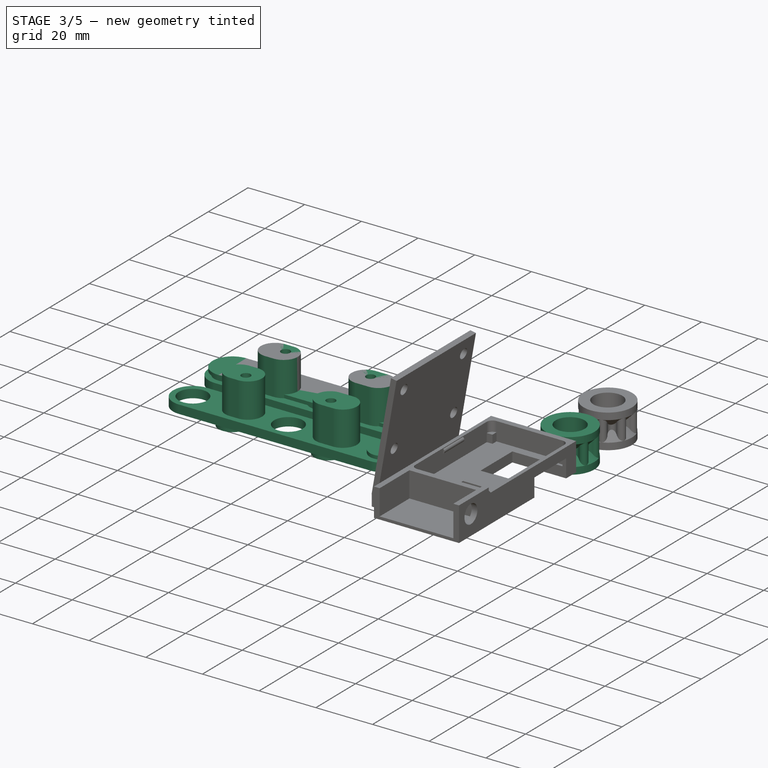
[diagram: stage 3 of 5 — iso view after this stage's code; geometry added in this stage tinted green]
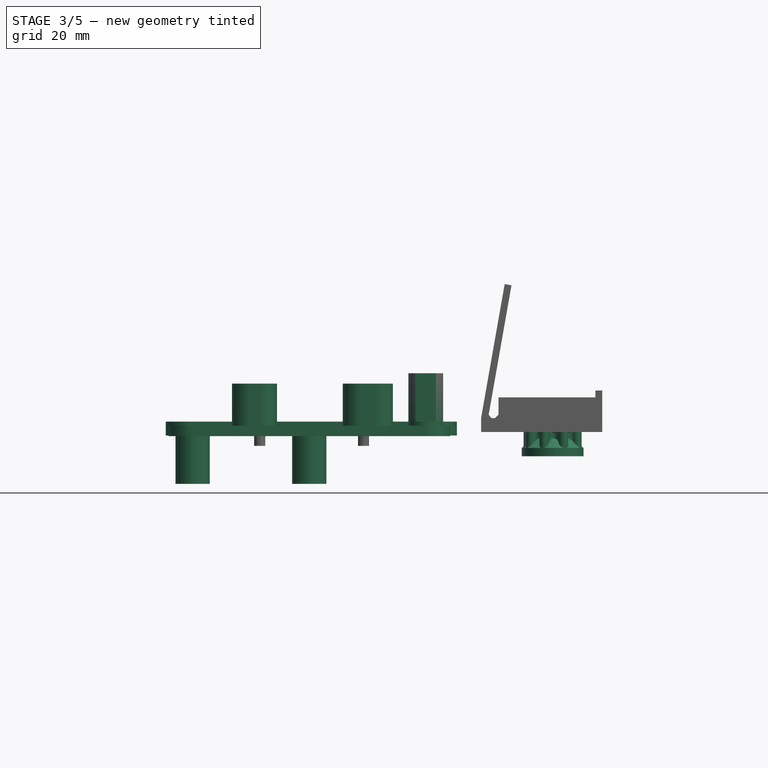
[diagram: stage 3 of 5 — front view after this stage's code; geometry added in this stage tinted green]
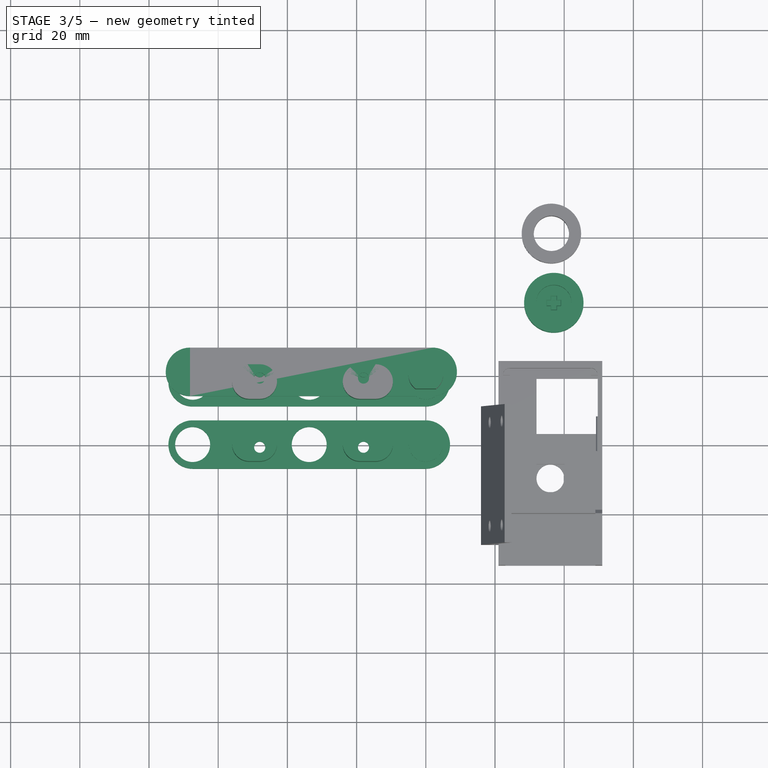
[diagram: stage 3 of 5 — top view after this stage's code; geometry added in this stage tinted green]
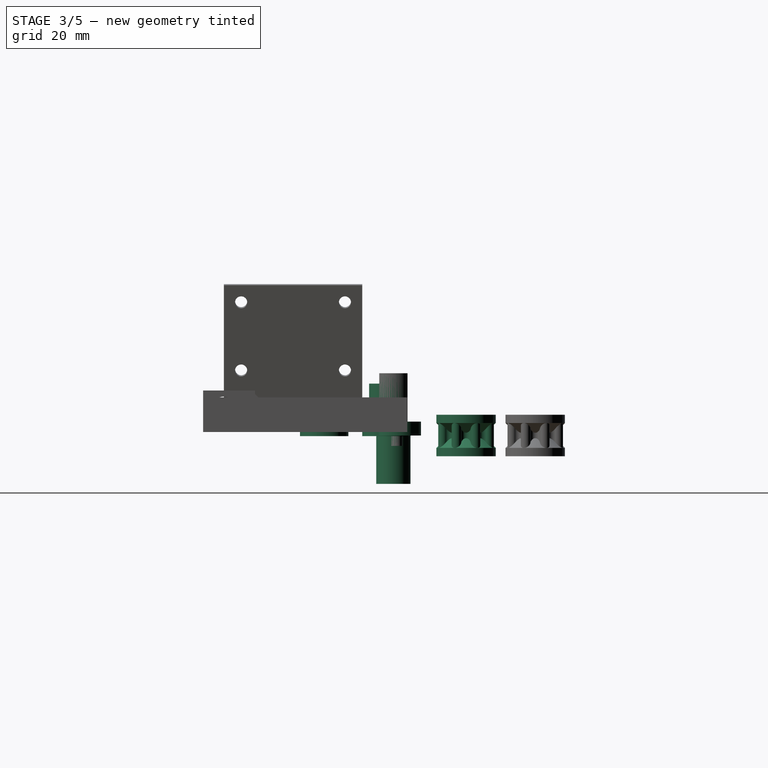
[diagram: stage 3 of 5 — right view after this stage's code; geometry added in this stage tinted green]
FEATURE [Sketcher::SketchObject] Sketch  label="motor_master"
  MapMode = 5
  Support = -> [XY_Plane]
  expr: Constraints[0] = <<p>>.motor_d / 2
  expr: Constraints[11] = <<p>>.motor_flat
  expr: Constraints[17] = <<p>>.motorholder_flat / 2
  expr: Constraints[28] = <<p>>.motorholder_hole_dist / 2
  expr: Constraints[14] = <<p>>.motorholder_hole_d / 2
  sketch-geometry (10):
    g0: ArcOfCircle CenterX=0 CenterY=0 CenterZ=0 NormalX=0 NormalY=0 NormalZ=1 AngleXU=0 Radius=5.025 StartAngle=2.19583 EndAngle=4.08736
    g1: ArcOfCircle CenterX=0 CenterY=0 CenterZ=0 NormalX=0 NormalY=0 NormalZ=1 AngleXU=0 Radius=5.025 StartAngle=5.33742 EndAngle=7.22895
    g2: LineSegment StartX=-2.94024 StartY=4.075 StartZ=0 EndX=2.94024 EndY=4.075 EndZ=0
    g3: LineSegment StartX=-2.94024 StartY=-4.075 StartZ=0 EndX=2.94024 EndY=-4.075 EndZ=0
    g4: Circle CenterX=0 CenterY=6.95 CenterZ=0 NormalX=0 NormalY=0 NormalZ=1 AngleXU=0 Radius=0.75
    g5: Circle CenterX=-9e-16 CenterY=-6.95 CenterZ=0 NormalX=0 NormalY=0 NormalZ=1 AngleXU=0 Radius=0.75
    g6: ArcOfCircle CenterX=0 CenterY=6.95 CenterZ=0 NormalX=0 NormalY=0 NormalZ=1 AngleXU=0 Radius=1.85 StartAngle=0 EndAngle=3.14159
    g7: ArcOfCircle CenterX=-9e-16 CenterY=-6.95 CenterZ=0 NormalX=0 NormalY=0 NormalZ=1 AngleXU=0 Radius=1.85 StartAngle=3.14159 EndAngle=6.28319
    g8: LineSegment StartX=1.85 StartY=6.95 StartZ=0 EndX=1.85 EndY=-6.95 EndZ=0
    g9: LineSegment StartX=-1.85 StartY=6.95 StartZ=0 EndX=-1.85 EndY=-6.95 EndZ=0
  constraints (29):
    c: Radius(g0) = 5.025
    c: Equal(g0,g1)
    c: Vertical(g0,g0)
    c: Coincident(g2,g0)
    c: Coincident(g2,g1)
    c: Horizontal(g2)
    c: Coincident(g3,g0)
    c: Coincident(g3,g1)
    c: Horizontal(g3)
    c: Coincident(g0,g-1)
    c: Coincident(g0,g1)
    c: DistanceY(g0,g0) = 8.15
    c: Symmetric(g4,g5,g0)
    c: Equal(g5,g4)
    c: Radius(g4) = 0.75
    c: Coincident(g6,g4)
    c: Coincident(g7,g5)
    c: Radius(g6) = 1.85
    c: Equal(g6,g7)
    c: Coincident(g8,g6)
    c: Coincident(g8,g7)
    c: Coincident(g9,g6)
    c: Coincident(g9,g7)
    c: Vertical(g4,g0)
    c: Horizontal(g6,g4)
    c: Horizontal(g4,g6)
    c: Vertical(g8)
    c: Vertical(g9)
    c: DistanceY(g0,g4) = 6.95
FEATURE [Spreadsheet::Sheet] Spreadsheet  label="p"
  cells = C12=Motor Diameter; D12=motor_d; E12(motor_d)=10.05; C13=Motor Flange; D13=motor_flat; E13(motor_flat)=8.15; D14=motorholder_flat; E14(motorholder_flat)=3.7; C15=Motor Holder Width = Diameter of half Circles; D15=motorholder_width; E15=17.6; C16=Motor Holder Center Distance of holes; D16=motorholder_hole_dist; E16(motorholder_hole_dist)==E15 - E14; C17=Motor holder Hole diameter; D17=motorholder_hole_d; E17(motorholder_hole_d)=1.5; C18=Motor holder thickness; D18=motorholder_thick; E18(motorholder_thick)=1.8; C22=Relevant Radius (Middle of Tracktooth); E22=7.18; G22=this is a derived value that is determined by the tooth circle radius; C23=Tracktooth circle radius; D23=tracktooth_r; E23(tracktooth_r)=1.4; C24=Relevant Outer Radius; D24=ror; E24==E22 + E23; C25=TrackToothDistance = 2*pi*ror/8; D25=ttd; E25==2 * pi * E24 / 8; C26=Number of teeth; D26=nt; E26=28; C27=Radius of Trackchain =ttd*nt/(2*pi); D27=trackchain_r; E27(trackchain_r)==E25 * E26 / 2 / pi; C28=Axledistance; D28=ax_d; E28(ax_d)==(E26 - 8) / 2 * E25
FEATURE [Sketcher::SketchObject] Sketch001  label="motor_body"
  MapMode = 5
  Support = -> [XY_Plane]
  expr: Constraints[17] = Sketch.Constraints[17]
  expr: Constraints[28] = Sketch.Constraints[28]
  expr: Constraints[14] = Sketch.Constraints[14]
  expr: Constraints[11] = Sketch.Constraints[11]
  expr: Constraints[0] = Sketch.Constraints[0]
  sketch-geometry (10):
    g0: ArcOfCircle CenterX=0 CenterY=0 CenterZ=0 NormalX=0 NormalY=0 NormalZ=1 AngleXU=0 Radius=5.025 StartAngle=2.19583 EndAngle=4.08736
    g1: ArcOfCircle CenterX=0 CenterY=0 CenterZ=0 NormalX=0 NormalY=0 NormalZ=1 AngleXU=0 Radius=5.025 StartAngle=5.33742 EndAngle=7.22895
    g2: LineSegment StartX=-2.94024 StartY=4.075 StartZ=0 EndX=2.94024 EndY=4.075 EndZ=0
    g3: LineSegment StartX=-2.94024 StartY=-4.075 StartZ=0 EndX=2.94024 EndY=-4.075 EndZ=0
    g4: Circle [constr] CenterX=0 CenterY=6.95 CenterZ=0 NormalX=0 NormalY=0 NormalZ=1 AngleXU=0 Radius=0.75
    g5: Circle [constr] CenterX=-9e-16 CenterY=-6.95 CenterZ=0 NormalX=0 NormalY=0 NormalZ=1 AngleXU=0 Radius=0.75
    g6: ArcOfCircle [constr] CenterX=0 CenterY=6.95 CenterZ=0 NormalX=0 NormalY=0 NormalZ=1 AngleXU=0 Radius=1.85 StartAngle=0 EndAngle=3.14159
    g7: ArcOfCircle [constr] CenterX=-9e-16 CenterY=-6.95 CenterZ=0 NormalX=0 NormalY=0 NormalZ=1 AngleXU=0 Radius=1.85 StartAngle=3.14159 EndAngle=6.28319
    g8: LineSegment [constr] StartX=1.85 StartY=6.95 StartZ=0 EndX=1.85 EndY=-6.95 EndZ=0
    g9: LineSegment [constr] StartX=-1.85 StartY=6.95 StartZ=0 EndX=-1.85 EndY=-6.95 EndZ=0
  constraints (29):
    c: Radius(g0) = 5.025
    c: Equal(g0,g1)
    c: Vertical(g0,g0)
    c: Coincident(g2,g0)
    c: Coincident(g2,g1)
    c: Horizontal(g2)
    c: Coincident(g3,g0)
    c: Coincident(g3,g1)
    c: Horizontal(g3)
    c: Coincident(g0,g-1)
    c: Coincident(g0,g1)
    c: DistanceY(g0,g0) = 8.15
    c: Symmetric(g4,g5,g0)
    c: Equal(g5,g4)
    c: Radius(g4) = 0.75
    c: Coincident(g6,g4)
    c: Coincident(g7,g5)
    c: Radius(g6) = 1.85
    c: Equal(g6,g7)
    c: Coincident(g8,g6)
    c: Coincident(g8,g7)
    c: Coincident(g9,g6)
    c: Coincident(g9,g7)
    c: Vertical(g4,g0)
    c: Horizontal(g6,g4)
    c: Horizontal(g4,g6)
    c: Vertical(g8)
    c: Vertical(g9)
    c: DistanceY(g0,g4) = 6.95
FEATURE [Sketcher::SketchObject] Sketch002  label="motor_holder"
  MapMode = 5
  Support = -> [XY_Plane]
  expr: Constraints[17] = Sketch.Constraints[17]
  expr: Constraints[28] = Sketch.Constraints[28]
  expr: Constraints[14] = Sketch.Constraints[14]
  expr: Constraints[11] = Sketch.Constraints[11]
  expr: Constraints[0] = Sketch.Constraints[0]
  sketch-geometry (10):
    g0: ArcOfCircle [constr] CenterX=0 CenterY=0 CenterZ=0 NormalX=0 NormalY=0 NormalZ=1 AngleXU=0 Radius=5.025 StartAngle=2.19583 EndAngle=4.08736
    g1: ArcOfCircle [constr] CenterX=0 CenterY=0 CenterZ=0 NormalX=0 NormalY=0 NormalZ=1 AngleXU=0 Radius=5.025 StartAngle=5.33742 EndAngle=7.22895
    g2: LineSegment [constr] StartX=-2.94024 StartY=4.075 StartZ=0 EndX=2.94024 EndY=4.075 EndZ=0
    g3: LineSegment [constr] StartX=-2.94024 StartY=-4.075 StartZ=0 EndX=2.94024 EndY=-4.075 EndZ=0
    g4: Circle CenterX=0 CenterY=6.95 CenterZ=0 NormalX=0 NormalY=0 NormalZ=1 AngleXU=0 Radius=0.75
    g5: Circle CenterX=-9e-16 CenterY=-6.95 CenterZ=0 NormalX=0 NormalY=0 NormalZ=1 AngleXU=0 Radius=0.75
    g6: ArcOfCircle CenterX=0 CenterY=6.95 CenterZ=0 NormalX=0 NormalY=0 NormalZ=1 AngleXU=0 Radius=1.85 StartAngle=0 EndAngle=3.14159
    g7: ArcOfCircle CenterX=-9e-16 CenterY=-6.95 CenterZ=0 NormalX=0 NormalY=0 NormalZ=1 AngleXU=0 Radius=1.85 StartAngle=3.14159 EndAngle=6.28319
    g8: LineSegment StartX=1.85 StartY=6.95 StartZ=0 EndX=1.85 EndY=-6.95 EndZ=0
    g9: LineSegment StartX=-1.85 StartY=6.95 StartZ=0 EndX=-1.85 EndY=-6.95 EndZ=0
  constraints (29):
    c: Radius(g0) = 5.025
    c: Equal(g0,g1)
    c: Vertical(g0,g0)
    c: Coincident(g2,g0)
    c: Coincident(g2,g1)
    c: Horizontal(g2)
    c: Coincident(g3,g0)
    c: Coincident(g3,g1)
    c: Horizontal(g3)
    c: Coincident(g0,g-1)
    c: Coincident(g0,g1)
    c: DistanceY(g0,g0) = 8.15
    c: Symmetric(g4,g5,g0)
    c: Equal(g5,g4)
    c: Radius(g4) = 0.75
    c: Coincident(g6,g4)
    c: Coincident(g7,g5)
    c: Radius(g6) = 1.85
    c: Equal(g6,g7)
    c: Coincident(g8,g6)
    c: Coincident(g8,g7)
    c: Coincident(g9,g6)
    c: Coincident(g9,g7)
    c: Vertical(g4,g0)
    c: Horizontal(g6,g4)
    c: Horizontal(g4,g6)
    c: Vertical(g8)
    c: Vertical(g9)
    c: DistanceY(g0,g4) = 6.95
FEATURE [PartDesign::Pad] Pad
  Length = 18
  Length2 = 100
  Profile = -> Sketch001
  Type = 0
FEATURE [Part::Cylinder] Cylinder003
  Angle = 360
  AttacherType = Attacher::AttachEngine3D
  Height = 4.5
  Placement = pos=(0,0,-4.3) rot=(0,0,1;0rad)
  Radius = 5.5
FEATURE [Part::MultiFuse] Fusion002
  Refine = true
  Shapes = -> [Extrude004,Revolve,Cylinder003]
FEATURE [Part::Box] Box002  label="Cube002"
  AttacherType = Attacher::AttachEngine3D
  Height = 20
  Length = 3.9
  Placement = pos=(-1.95,-0.75,-2) rot=(0,0,1;0rad)
  Width = 1.5
  expr: .Placement.Base.y = -1.5 / 2
  expr: .Placement.Base.x = -3.9 / 2
FEATURE [Part::Box] Box003  label="Cube003"
  AttacherType = Attacher::AttachEngine3D
  Height = 20
  Length = 1.5
  Placement = pos=(-0.75,-1.95,-2) rot=(0,0,1;0rad)
  Width = 3.9
  expr: .Placement.Base.x = -1.5 / 2
  expr: .Placement.Base.y = -3.9 / 2
FEATURE [Part::Cylinder] Cylinder004
  Angle = 360
  AttacherType = Attacher::AttachEngine3D
  Height = 10
  Placement = pos=(0,0,-3.5) rot=(0,0,1;0rad)
  Radius = 0.75
FEATURE [Part::MultiFuse] Fusion003
  Shapes = -> [Box002,Box003,Cylinder004]
FEATURE [Part::Cut] Cut001  label="DriveGear"
  Base = -> Fusion002
  Refine = true
  Tool = -> Fusion003
FEATURE [Sketcher::SketchObject] Sketch009
  MapMode = 5
  Support = -> [XY_Plane003]
  sketch-geometry (4):
    g0: ArcOfCircle CenterX=-68.1586 CenterY=1 CenterZ=0 NormalX=0 NormalY=0 NormalZ=1 AngleXU=0 Radius=7 StartAngle=1.5708 EndAngle=4.71239
    g1: ArcOfCircle CenterX=2 CenterY=1 CenterZ=0 NormalX=0 NormalY=0 NormalZ=1 AngleXU=0 Radius=7 StartAngle=4.71239 EndAngle=7.85398
    g2: LineSegment StartX=-68.1586 StartY=-6 StartZ=0 EndX=2 EndY=-6 EndZ=0
    g3: LineSegment StartX=-68.1586 StartY=8 StartZ=0 EndX=2 EndY=8 EndZ=0
  constraints (10):
    c: Tangent(g0,g3) = 1.5708
    c: Tangent(g0,g2) = -1.5708
    c: Tangent(g2,g1) = -1.5708
    c: Tangent(g3,g1) = 1.5708
    c: Horizontal(g2)
    c: Equal(g0,g1)
    c: DistanceY(g1,g-1) = 6
    c: DistanceX(g1) = 2
    c: DistanceY(g1) = 8
    c: DistanceX(g0) = -68.1586
FEATURE [PartDesign::Body] Body003
  Group = -> [Sketch009]
  Origin = -> Origin003
FEATURE [Part::Cylinder] Cylinder005
  Angle = 360
  AttacherType = Attacher::AttachEngine3D
  Height = 14
  Placement = pos=(-67.3872,0,-14) rot=(0,0,1;0rad)
  Radius = 4.95
  expr: .Placement.Base.x = -<<p>>.ax_d
  expr: Radius = 9.9 / 2
FEATURE [Part::Cylinder] Cylinder006
  Angle = 360
  AttacherType = Attacher::AttachEngine3D
  Height = 14
  Placement = pos=(-33.6936,0,-14) rot=(0,0,1;0rad)
  Radius = 4.95
  expr: Radius = 9.9 / 2
  expr: .Placement.Base.x = -<<p>>.ax_d / 2
FEATURE [Part::Extrusion] Extrude
  Base = -> Sketch009
  Dir = (0,0,1)
  DirMode = 2
  FaceMakerClass = Part::FaceMakerBullseye
  LengthFwd = 4
  LengthRev = 0
  Solid = true
  Symmetric = false
FEATURE [Part::MultiFuse] Fusion005
  Refine = true
  Shapes = -> [Cylinder005,Cylinder006,Extrude]
FEATURE [Part::Cylinder] Cylinder017
  Angle = 360
  AttacherType = Attacher::AttachEngine3D
  Height = 10
  Placement = pos=(0,0,-3) rot=(0,0,1;0rad)
  Radius = 1.6
FEATURE [Part::Cylinder] Cylinder018
  Angle = 360
  AttacherType = Attacher::AttachEngine3D
  Height = 10
  Placement = pos=(-30,0,-3) rot=(0,0,1;0rad)
  Radius = 1.6
FEATURE [Part::MultiFuse] Fusion019  label="Fusion021"
  Placement = pos=(-18,1,0) rot=(0,0,1;0rad)
  Shapes = -> [Cylinder017,Cylinder018]
FEATURE [Part::Chamfer] Chamfer001  label="DriveGearChamfered"
  Base = -> Cut001
  Edges = 12 edges r=0.2: [Edge125,Edge126,Edge127,Edge128,Edge129,Edge130,Edge131,Edge132,Edge133,Edge134,Edge135,Edge136]
FEATURE [PartDesign::Body] Body006  label="LeftDriveGearRetainerBody"
  Group = -> [Sketch022,Sketch023,Pad008,Sketch024,Pad009,Sketch025,Pocket,Sketch026,Pad010,Sketch027,Pocket001]
  Origin = -> Origin006
  Tip = -> Pocket001
FEATURE [Part::Mirroring] Part__Mirroring004  label="RightDriveGearRetainer"
  Base = (0,0,0)
  Normal = (0,0,1)
  Source = -> Body006
FEATURE [Part::FeaturePython] Clone006  label="DriveGear_printable"  # Draft clone (typed FeaturePython)
  AttacherType = Attacher::AttachEngine3D
  Fuse = false
  Objects = -> [Chamfer001]
  Placement = pos=(37,21,0) rot=(0,0,1;0rad)
  Scale = (1,1,1)
FEATURE [Part::FeaturePython] Clone007  label="RightDriveGearRetainer_printable"  # Draft clone (typed FeaturePython)
  AttacherType = Attacher::AttachEngine3D
  Fuse = false
  Objects = -> [Part__Mirroring004]
  Placement = pos=(0,-2,15) rot=(0,0,1;0rad)
  Scale = (1,1,1)
FEATURE [Part::FeaturePython] Clone008  label="LeftDriveGearRetainer_printable"  # Draft clone (typed FeaturePython)
  AttacherType = Attacher::AttachEngine3D
  Fuse = false
  Objects = -> [Body006]
  Placement = pos=(0,-20,15) rot=(1,0,0;3.14159rad)
  Scale = (1,1,1)
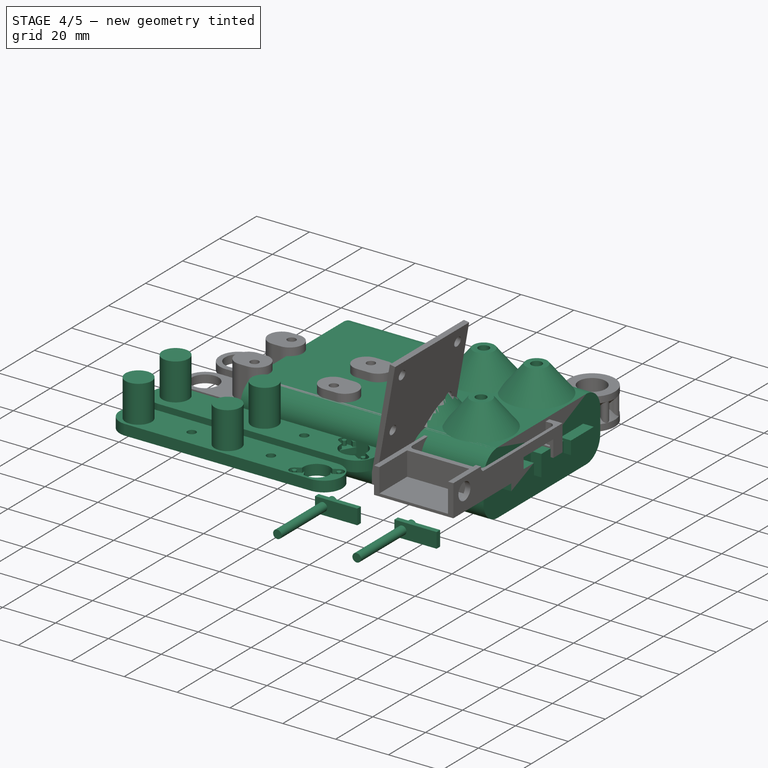
[diagram: stage 4 of 5 — iso view after this stage's code; geometry added in this stage tinted green]
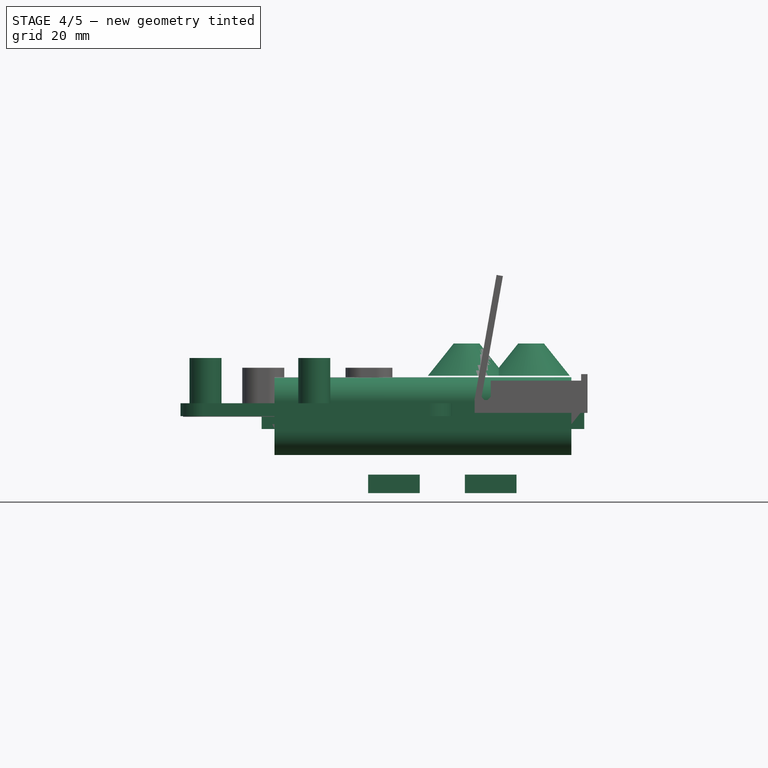
[diagram: stage 4 of 5 — front view after this stage's code; geometry added in this stage tinted green]
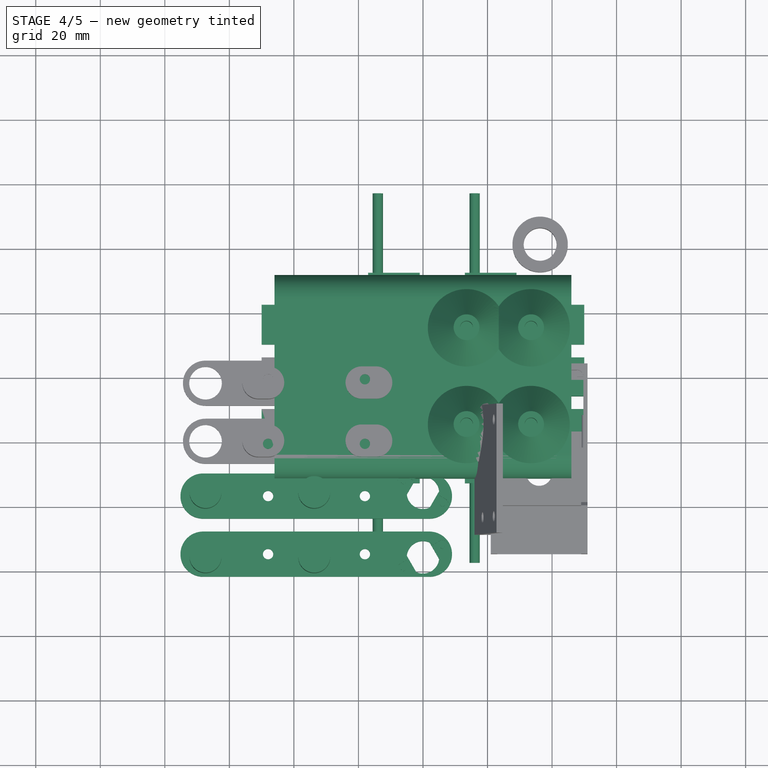
[diagram: stage 4 of 5 — top view after this stage's code; geometry added in this stage tinted green]
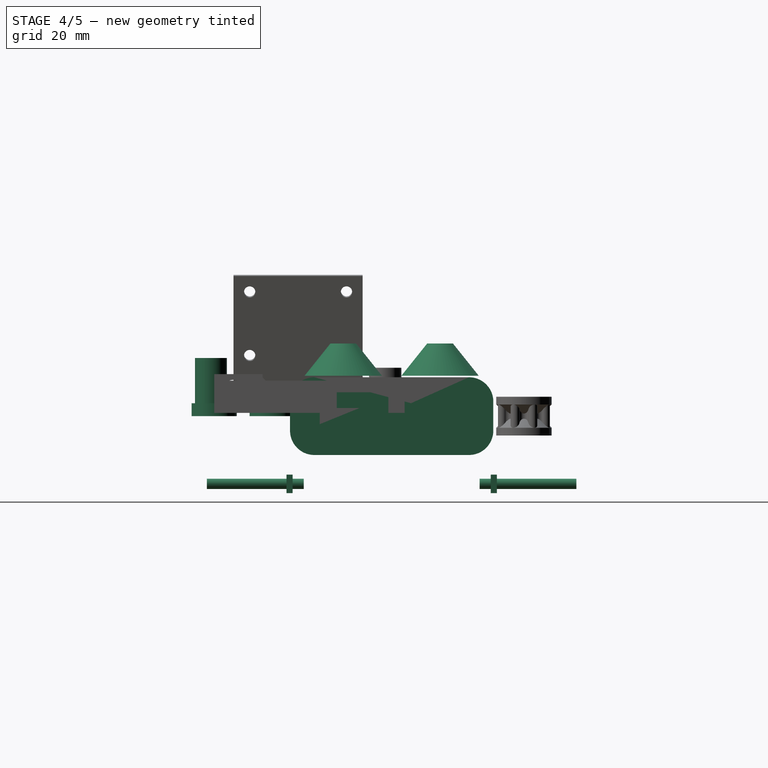
[diagram: stage 4 of 5 — right view after this stage's code; geometry added in this stage tinted green]
FEATURE [PartDesign::Pad] Pad001
  BaseFeature = -> Pad
  Length = 1.8
  Length2 = 100
  Profile = -> Sketch002
  Type = 0
  expr: Length = <<p>>.motorholder_thick
FEATURE [PartDesign::AdditiveCylinder] Cylinder
  Angle = 360
  AttacherType = Attacher::AttachEngine3D
  BaseFeature = -> Pad001
  Height = 1.8
  Radius = 5.025
  expr: Height = <<p>>.motorholder_thick
  expr: Radius = <<p>>.motor_d / 2
FEATURE [Part::Cut] Cut002  label="testrig"
  Base = -> Fusion005
  Refine = true
  Tool = -> Body
FEATURE [Sketcher::SketchObject] Sketch020
  MapMode = 5
  Placement = pos=(0,0,0) rot=(0.57735,0.57735,0.57735;2.0944rad)
  Support = -> [YZ_Plane005]
  expr: Constraints[36] = Sketch017.Constraints[36]
  expr: Constraints[40] = Sketch017.Constraints[40]
  expr: Constraints[37] = Sketch017.Constraints[37]
  expr: Constraints[39] = Sketch017.Constraints[39]
  expr: Constraints[120] = Sketch017.Constraints[120]
  expr: Constraints[38] = Sketch017.Constraints[38]
  expr: Constraints[79] = Sketch017.Constraints[79]
  expr: Constraints[54] = Sketch017.Constraints[54]
  expr: Constraints[55] = Sketch017.Constraints[55]
  expr: Constraints[108] = Sketch017.Constraints[108]
  expr: Constraints[80] = Sketch017.Constraints[80]
  expr: Constraints[86] = Sketch017.Constraints[86]
  expr: Constraints[106] = Sketch017.Constraints[106]
  expr: Constraints[110] = Sketch017.Constraints[110]
  expr: Constraints[111] = Sketch017.Constraints[111]
  sketch-geometry (44):
    g0: ArcOfCircle [constr] CenterX=-23.95 CenterY=4.5 CenterZ=0 NormalX=0 NormalY=0 NormalZ=1 AngleXU=0 Radius=7.55 StartAngle=1.5708 EndAngle=3.14159
    g1: ArcOfCircle [constr] CenterX=23.95 CenterY=4.5 CenterZ=0 NormalX=0 NormalY=0 NormalZ=1 AngleXU=0 Radius=7.55 StartAngle=0 EndAngle=1.5708
    g2: ArcOfCircle [constr] CenterX=23.95 CenterY=-4.5 CenterZ=0 NormalX=0 NormalY=0 NormalZ=1 AngleXU=0 Radius=7.55 StartAngle=4.71239 EndAngle=6.28319
    g3: ArcOfCircle [constr] CenterX=-23.95 CenterY=-4.5 CenterZ=0 NormalX=0 NormalY=0 NormalZ=1 AngleXU=0 Radius=7.55 StartAngle=3.14159 EndAngle=4.71239
    g4: LineSegment [constr] StartX=-31.5 StartY=4.5 StartZ=0 EndX=-31.5 EndY=-4.5 EndZ=0
    g5: LineSegment [constr] StartX=-23.95 StartY=12.05 StartZ=0 EndX=23.95 EndY=12.05 EndZ=0
    g6: LineSegment [constr] StartX=31.5 StartY=4.5 StartZ=0 EndX=31.5 EndY=-4.5 EndZ=0
    g7: LineSegment [constr] StartX=23.95 StartY=-12.05 StartZ=0 EndX=-23.95 EndY=-12.05 EndZ=0
    g8: LineSegment StartX=10 StartY=2.5 StartZ=0 EndX=22.3 EndY=2.5 EndZ=0
    g9: LineSegment StartX=22.3 StartY=2.5 StartZ=0 EndX=22.3 EndY=-2.5 EndZ=0
    g10: LineSegment StartX=22.3 StartY=-2.5 StartZ=0 EndX=10 EndY=-2.5 EndZ=0
    g11: LineSegment StartX=10 StartY=-2.5 StartZ=0 EndX=10 EndY=2.5 EndZ=0
    g12: LineSegment StartX=-22.3 StartY=2.5 StartZ=0 EndX=-10 EndY=2.5 EndZ=0
    g13: LineSegment StartX=-10 StartY=2.5 StartZ=0 EndX=-10 EndY=-2.5 EndZ=0
    g14: LineSegment StartX=-10 StartY=-2.5 StartZ=0 EndX=-22.3 EndY=-2.5 EndZ=0
    g15: LineSegment StartX=-22.3 StartY=-2.5 StartZ=0 EndX=-22.3 EndY=2.5 EndZ=0
    g16: LineSegment StartX=-6 StartY=4 StartZ=0 EndX=6 EndY=4 EndZ=0
    g17: LineSegment StartX=6 StartY=4 StartZ=0 EndX=6 EndY=-4 EndZ=0
    g18: LineSegment StartX=6 StartY=-4 StartZ=0 EndX=-6 EndY=-4 EndZ=0
    g19: LineSegment StartX=-6 StartY=-4 StartZ=0 EndX=-6 EndY=4 EndZ=0
    g20: ArcOfCircle [constr] CenterX=-23.95 CenterY=4.5 CenterZ=0 NormalX=0 NormalY=0 NormalZ=1 AngleXU=0 Radius=8.75 StartAngle=1.5708 EndAngle=3.14159
    g21: ArcOfCircle [constr] CenterX=23.95 CenterY=4.5 CenterZ=0 NormalX=0 NormalY=0 NormalZ=1 AngleXU=0 Radius=8.75 StartAngle=0 EndAngle=1.5708
    g22: LineSegment [constr] StartX=-23.95 StartY=13.25 StartZ=0 EndX=23.95 EndY=13.25 EndZ=0
    g23: LineSegment [constr] StartX=32.7 StartY=4.5 StartZ=0 EndX=32.7 EndY=-4.5 EndZ=0
    g24: LineSegment [constr] StartX=23.95 StartY=-13.25 StartZ=0 EndX=-23.95 EndY=-13.25 EndZ=0
    g25: LineSegment [constr] StartX=-32.7 StartY=-4.5 StartZ=0 EndX=-32.7 EndY=4.5 EndZ=0
    g26: ArcOfCircle [constr] CenterX=23.95 CenterY=4.5 CenterZ=0 NormalX=0 NormalY=0 NormalZ=1 AngleXU=0 Radius=9.95 StartAngle=0 EndAngle=1.5708
    g27: ArcOfCircle [constr] CenterX=-23.95 CenterY=4.5 CenterZ=0 NormalX=0 NormalY=0 NormalZ=1 AngleXU=0 Radius=9.95 StartAngle=1.5708 EndAngle=3.14159
    g28: LineSegment [constr] StartX=-23.95 StartY=14.45 StartZ=0 EndX=23.95 EndY=14.45 EndZ=0
    g29: LineSegment [constr] StartX=-33.9 StartY=4.5 StartZ=0 EndX=-33.9 EndY=-28.45 EndZ=0
    g30: LineSegment [constr] StartX=33.9 StartY=4.5 StartZ=0 EndX=33.9 EndY=-28.45 EndZ=0
    g31: LineSegment [constr] StartX=-33.9 StartY=-28.45 StartZ=0 EndX=-30.1 EndY=-28.45 EndZ=0
    g32: LineSegment [constr] StartX=-30.1 StartY=-28.45 StartZ=0 EndX=-30.1 EndY=-17.45 EndZ=0
    g33: LineSegment [constr] StartX=33.9 StartY=-28.45 StartZ=0 EndX=30.1 EndY=-28.45 EndZ=0
    g34: LineSegment [constr] StartX=30.1 StartY=-28.45 StartZ=0 EndX=30.1 EndY=-17.45 EndZ=0
    g35: ArcOfCircle [constr] CenterX=-27.1 CenterY=-17.45 CenterZ=0 NormalX=0 NormalY=0 NormalZ=1 AngleXU=0 Radius=3 StartAngle=1.5708 EndAngle=3.14159
    g36: ArcOfCircle [constr] CenterX=27.1 CenterY=-17.45 CenterZ=0 NormalX=0 NormalY=0 NormalZ=1 AngleXU=0 Radius=3 StartAngle=0 EndAngle=1.5708
    g37: LineSegment [constr] StartX=-27.1 StartY=-14.45 StartZ=0 EndX=27.1 EndY=-14.45 EndZ=0
    g38: ArcOfCircle [constr] CenterX=-23.95 CenterY=-4.5 CenterZ=0 NormalX=0 NormalY=0 NormalZ=1 AngleXU=0 Radius=8.75 StartAngle=4.34412 EndAngle=4.71239
    g39: ArcOfCircle [constr] CenterX=-23.95 CenterY=-4.5 CenterZ=0 NormalX=0 NormalY=0 NormalZ=1 AngleXU=0 Radius=8.75 StartAngle=4.0831 EndAngle=4.34412
    g40: ArcOfCircle [constr] CenterX=-23.95 CenterY=-4.5 CenterZ=0 NormalX=0 NormalY=0 NormalZ=1 AngleXU=0 Radius=8.75 StartAngle=3.14159 EndAngle=4.0831
    g41: ArcOfCircle [constr] CenterX=23.95 CenterY=-4.5 CenterZ=0 NormalX=0 NormalY=0 NormalZ=1 AngleXU=0 Radius=8.75 StartAngle=5.34168 EndAngle=6.28319
    g42: ArcOfCircle [constr] CenterX=23.95 CenterY=-4.5 CenterZ=0 NormalX=0 NormalY=0 NormalZ=1 AngleXU=0 Radius=8.75 StartAngle=5.08066 EndAngle=5.34168
    g43: ArcOfCircle [constr] CenterX=23.95 CenterY=-4.5 CenterZ=0 NormalX=0 NormalY=0 NormalZ=1 AngleXU=0 Radius=8.75 StartAngle=4.71239 EndAngle=5.08066
  constraints (130):
    c: Coincident(g14,g15)
    c: Coincident(g12,g15)
    c: Coincident(g12,g13)
    c: Coincident(g13,g14)
    c: Coincident(g18,g19)
    c: Coincident(g17,g18)
    c: Coincident(g16,g17)
    c: Coincident(g16,g19)
    c: Coincident(g10,g11)
    c: Coincident(g8,g11)
    c: Coincident(g8,g9)
    c: Coincident(g9,g10)
    c: Coincident(g27,g28)
    c: Coincident(g20,g22)
    c: Coincident(g0,g5)
    c: Coincident(g27,g29)
    c: Coincident(g20,g25)
    c: Coincident(g0,g4)
    c: Coincident(g3,g4)
    c: Coincident(g29,g31)
    c: Coincident(g31,g32)
    c: Coincident(g32,g35)
    c: Coincident(g35,g37)
    c: Coincident(g3,g7)
    c: Coincident(g2,g7)
    c: Coincident(g36,g37)
    c: Coincident(g34,g36)
    c: Coincident(g33,g34)
    c: Coincident(g30,g33)
    c: Coincident(g2,g6)
    c: Coincident(g1,g6)
    c: Coincident(g21,g23)
    c: Coincident(g26,g30)
    c: Coincident(g26,g28)
    c: Coincident(g21,g22)
    c: Coincident(g1,g5)
    c: DistanceX(g16,g16) = 12
    c: DistanceY(g17,g17) = 8
    c: DistanceX(g8,g8) = 12.3
    c: DistanceY(g9,g9) = 5
    c: DistanceX(g-1,g10) = 10
    c: Symmetric(g18,g16,g-1)
    c: Vertical(g17)
    c: Horizontal(g18)
    c: Horizontal(g16)
    c: Vertical(g19)
    c: Symmetric(g10,g8,g-1)
    c: Horizontal(g8)
    c: Horizontal(g10)
    c: Vertical(g9)
    c: Symmetric(g8,g12,g-2)
    c: Symmetric(g13,g10,g-2)
    c: Symmetric(g12,g8,g-2)
    c: Symmetric(g9,g14,g-2)
    c: DistanceX(g0,g1) = 63
    c: DistanceY(g2,g1) = 24.1
    c: Vertical(g5,g21)
    c: Vertical(g22,g26)
    c: Vertical(g28,g1)
    c: Vertical(g26,g2)
    c: Vertical(g7,g24)
    c: Vertical(g0,g0)
    c: Vertical(g0,g3)
    c: Vertical(g3,g3)
    c: Vertical(g7,g20)
    c: Vertical(g20,g24)
    c: Vertical(g24,g27)
    c: Horizontal(g1,g1)
    c: Horizontal(g6,g21)
    c: Horizontal(g23,g26)
    c: Horizontal(g30,g0)
    c: Horizontal(g0,g0)
    c: Horizontal(g4,g20)
    c: Horizontal(g25,g27)
    c: Horizontal(g2,g2)
    c: Horizontal(g6,g23)
    c: Horizontal(g23,g3)
    c: Horizontal(g3,g3)
    c: Horizontal(g4,g25)
    c: DistanceY(g31,g35) = 14
    c: DistanceX(g29,g31) = 3.8
    c: Horizontal(g34,g35)
    c: Horizontal(g35,g35)
    c: Horizontal(g36,g36)
    c: Vertical(g35,g35)
    c: Vertical(g36,g36)
    c: Radius(g35) = 3
    c: Symmetric(g0,g2,g-1)
    c: Coincident(g0,g20)
    c: Coincident(g0,g27)
    c: Coincident(g1,g21)
    c: Coincident(g1,g26)
    c: Horizontal(g5)
    c: Horizontal(g22)
    c: Horizontal(g28)
    c: Horizontal(g7)
    c: Horizontal(g24)
    c: Horizontal(g37)
    c: Vertical(g4)
    c: Vertical(g25)
    c: Vertical(g29)
    c: Vertical(g30)
    c: Horizontal(g31)
    c: Horizontal(g33)
    c: Vertical(g32)
    c: Vertical(g34)
    c: DistanceY(g36,g24) = 1.2
    c: Equal(g31,g33)
    c: Radius(g0) = 7.55
    c: Horizontal(g31,g33)
    c: Radius(g20) = 8.75
    c: Radius(g27) = 9.95
    c: Coincident(g38,g3)
    c: Coincident(g38,g24)
    c: Vertical(g38,g35)
    c: Coincident(g39,g3)
    c: Coincident(g39,g38)
    c: Coincident(g40,g3)
    c: Coincident(g40,g39)
    c: Coincident(g40,g25)
    c: DistanceX(g32,g39) = 1
    c: Coincident(g41,g23)
    c: Coincident(g42,g41)
    c: Coincident(g42,g41)
    c: Coincident(g43,g41)
    c: Coincident(g43,g42)
    c: Coincident(g43,g24)
    c: Coincident(g2,g41)
    c: Symmetric(g38,g42,g-2)
    c: Horizontal(g41,g39)
FEATURE [Sketcher::SketchObject] Sketch021
  MapMode = 5
  Placement = pos=(0,0,0) rot=(0.57735,0.57735,0.57735;2.0944rad)
  Support = -> [YZ_Plane005]
  expr: Constraints[36] = Sketch017.Constraints[36]
  expr: Constraints[40] = Sketch017.Constraints[40]
  expr: Constraints[37] = Sketch017.Constraints[37]
  expr: Constraints[39] = Sketch017.Constraints[39]
  expr: Constraints[120] = Sketch017.Constraints[120]
  expr: Constraints[38] = Sketch017.Constraints[38]
  expr: Constraints[79] = Sketch017.Constraints[79]
  expr: Constraints[54] = Sketch017.Constraints[54]
  expr: Constraints[55] = Sketch017.Constraints[55]
  expr: Constraints[108] = Sketch017.Constraints[108]
  expr: Constraints[80] = Sketch017.Constraints[80]
  expr: Constraints[86] = Sketch017.Constraints[86]
  expr: Constraints[106] = Sketch017.Constraints[106]
  expr: Constraints[110] = Sketch017.Constraints[110]
  expr: Constraints[111] = Sketch017.Constraints[111]
  sketch-geometry (44):
    g0: ArcOfCircle CenterX=-23.95 CenterY=4.5 CenterZ=0 NormalX=0 NormalY=0 NormalZ=1 AngleXU=0 Radius=7.55 StartAngle=1.5708 EndAngle=3.14159
    g1: ArcOfCircle CenterX=23.95 CenterY=4.5 CenterZ=0 NormalX=0 NormalY=0 NormalZ=1 AngleXU=0 Radius=7.55 StartAngle=0 EndAngle=1.5708
    g2: ArcOfCircle CenterX=23.95 CenterY=-4.5 CenterZ=0 NormalX=0 NormalY=0 NormalZ=1 AngleXU=0 Radius=7.55 StartAngle=4.71239 EndAngle=6.28319
    g3: ArcOfCircle CenterX=-23.95 CenterY=-4.5 CenterZ=0 NormalX=0 NormalY=0 NormalZ=1 AngleXU=0 Radius=7.55 StartAngle=3.14159 EndAngle=4.71239
    g4: LineSegment StartX=-31.5 StartY=4.5 StartZ=0 EndX=-31.5 EndY=-4.5 EndZ=0
    g5: LineSegment StartX=-23.95 StartY=12.05 StartZ=0 EndX=23.95 EndY=12.05 EndZ=0
    g6: LineSegment StartX=31.5 StartY=4.5 StartZ=0 EndX=31.5 EndY=-4.5 EndZ=0
    g7: LineSegment StartX=23.95 StartY=-12.05 StartZ=0 EndX=-23.95 EndY=-12.05 EndZ=0
    g8: LineSegment [constr] StartX=10 StartY=2.5 StartZ=0 EndX=22.3 EndY=2.5 EndZ=0
    g9: LineSegment [constr] StartX=22.3 StartY=2.5 StartZ=0 EndX=22.3 EndY=-2.5 EndZ=0
    g10: LineSegment [constr] StartX=22.3 StartY=-2.5 StartZ=0 EndX=10 EndY=-2.5 EndZ=0
    g11: LineSegment [constr] StartX=10 StartY=-2.5 StartZ=0 EndX=10 EndY=2.5 EndZ=0
    g12: LineSegment [constr] StartX=-22.3 StartY=2.5 StartZ=0 EndX=-10 EndY=2.5 EndZ=0
    g13: LineSegment [constr] StartX=-10 StartY=2.5 StartZ=0 EndX=-10 EndY=-2.5 EndZ=0
    g14: LineSegment [constr] StartX=-10 StartY=-2.5 StartZ=0 EndX=-22.3 EndY=-2.5 EndZ=0
    g15: LineSegment [constr] StartX=-22.3 StartY=-2.5 StartZ=0 EndX=-22.3 EndY=2.5 EndZ=0
    g16: LineSegment [constr] StartX=-6 StartY=4 StartZ=0 EndX=6 EndY=4 EndZ=0
    g17: LineSegment [constr] StartX=6 StartY=4 StartZ=0 EndX=6 EndY=-4 EndZ=0
    g18: LineSegment [constr] StartX=6 StartY=-4 StartZ=0 EndX=-6 EndY=-4 EndZ=0
    g19: LineSegment [constr] StartX=-6 StartY=-4 StartZ=0 EndX=-6 EndY=4 EndZ=0
    g20: ArcOfCircle [constr] CenterX=-23.95 CenterY=4.5 CenterZ=0 NormalX=0 NormalY=0 NormalZ=1 AngleXU=0 Radius=8.75 StartAngle=1.5708 EndAngle=3.14159
    g21: ArcOfCircle [constr] CenterX=23.95 CenterY=4.5 CenterZ=0 NormalX=0 NormalY=0 NormalZ=1 AngleXU=0 Radius=8.75 StartAngle=0 EndAngle=1.5708
    g22: LineSegment [constr] StartX=-23.95 StartY=13.25 StartZ=0 EndX=23.95 EndY=13.25 EndZ=0
    g23: LineSegment [constr] StartX=32.7 StartY=4.5 StartZ=0 EndX=32.7 EndY=-4.5 EndZ=0
    g24: LineSegment [constr] StartX=23.95 StartY=-13.25 StartZ=0 EndX=-23.95 EndY=-13.25 EndZ=0
    g25: LineSegment [constr] StartX=-32.7 StartY=-4.5 StartZ=0 EndX=-32.7 EndY=4.5 EndZ=0
    g26: ArcOfCircle [constr] CenterX=23.95 CenterY=4.5 CenterZ=0 NormalX=0 NormalY=0 NormalZ=1 AngleXU=0 Radius=9.95 StartAngle=0 EndAngle=1.5708
    g27: ArcOfCircle [constr] CenterX=-23.95 CenterY=4.5 CenterZ=0 NormalX=0 NormalY=0 NormalZ=1 AngleXU=0 Radius=9.95 StartAngle=1.5708 EndAngle=3.14159
    g28: LineSegment [constr] StartX=-23.95 StartY=14.45 StartZ=0 EndX=23.95 EndY=14.45 EndZ=0
    g29: LineSegment [constr] StartX=-33.9 StartY=4.5 StartZ=0 EndX=-33.9 EndY=-28.45 EndZ=0
    g30: LineSegment [constr] StartX=33.9 StartY=4.5 StartZ=0 EndX=33.9 EndY=-28.45 EndZ=0
    g31: LineSegment [constr] StartX=-33.9 StartY=-28.45 StartZ=0 EndX=-30.1 EndY=-28.45 EndZ=0
    g32: LineSegment [constr] StartX=-30.1 StartY=-28.45 StartZ=0 EndX=-30.1 EndY=-17.45 EndZ=0
    g33: LineSegment [constr] StartX=33.9 StartY=-28.45 StartZ=0 EndX=30.1 EndY=-28.45 EndZ=0
    g34: LineSegment [constr] StartX=30.1 StartY=-28.45 StartZ=0 EndX=30.1 EndY=-17.45 EndZ=0
    g35: ArcOfCircle [constr] CenterX=-27.1 CenterY=-17.45 CenterZ=0 NormalX=0 NormalY=0 NormalZ=1 AngleXU=0 Radius=3 StartAngle=1.5708 EndAngle=3.14159
    g36: ArcOfCircle [constr] CenterX=27.1 CenterY=-17.45 CenterZ=0 NormalX=0 NormalY=0 NormalZ=1 AngleXU=0 Radius=3 StartAngle=0 EndAngle=1.5708
    g37: LineSegment [constr] StartX=-27.1 StartY=-14.45 StartZ=0 EndX=27.1 EndY=-14.45 EndZ=0
    g38: ArcOfCircle [constr] CenterX=-23.95 CenterY=-4.5 CenterZ=0 NormalX=0 NormalY=0 NormalZ=1 AngleXU=0 Radius=8.75 StartAngle=4.34412 EndAngle=4.71239
    g39: ArcOfCircle [constr] CenterX=-23.95 CenterY=-4.5 CenterZ=0 NormalX=0 NormalY=0 NormalZ=1 AngleXU=0 Radius=8.75 StartAngle=4.0831 EndAngle=4.34412
    g40: ArcOfCircle [constr] CenterX=-23.95 CenterY=-4.5 CenterZ=0 NormalX=0 NormalY=0 NormalZ=1 AngleXU=0 Radius=8.75 StartAngle=3.14159 EndAngle=4.0831
    g41: ArcOfCircle [constr] CenterX=23.95 CenterY=-4.5 CenterZ=0 NormalX=0 NormalY=0 NormalZ=1 AngleXU=0 Radius=8.75 StartAngle=5.34168 EndAngle=6.28319
    g42: ArcOfCircle [constr] CenterX=23.95 CenterY=-4.5 CenterZ=0 NormalX=0 NormalY=0 NormalZ=1 AngleXU=0 Radius=8.75 StartAngle=5.08066 EndAngle=5.34168
    g43: ArcOfCircle [constr] CenterX=23.95 CenterY=-4.5 CenterZ=0 NormalX=0 NormalY=0 NormalZ=1 AngleXU=0 Radius=8.75 StartAngle=4.71239 EndAngle=5.08066
  constraints (130):
    c: Coincident(g14,g15)
    c: Coincident(g12,g15)
    c: Coincident(g12,g13)
    c: Coincident(g13,g14)
    c: Coincident(g18,g19)
    c: Coincident(g17,g18)
    c: Coincident(g16,g17)
    c: Coincident(g16,g19)
    c: Coincident(g10,g11)
    c: Coincident(g8,g11)
    c: Coincident(g8,g9)
    c: Coincident(g9,g10)
    c: Coincident(g27,g28)
    c: Coincident(g20,g22)
    c: Coincident(g0,g5)
    c: Coincident(g27,g29)
    c: Coincident(g20,g25)
    c: Coincident(g0,g4)
    c: Coincident(g3,g4)
    c: Coincident(g29,g31)
    c: Coincident(g31,g32)
    c: Coincident(g32,g35)
    c: Coincident(g35,g37)
    c: Coincident(g3,g7)
    c: Coincident(g2,g7)
    c: Coincident(g36,g37)
    c: Coincident(g34,g36)
    c: Coincident(g33,g34)
    c: Coincident(g30,g33)
    c: Coincident(g2,g6)
    c: Coincident(g1,g6)
    c: Coincident(g21,g23)
    c: Coincident(g26,g30)
    c: Coincident(g26,g28)
    c: Coincident(g21,g22)
    c: Coincident(g1,g5)
    c: DistanceX(g16,g16) = 12
    c: DistanceY(g17,g17) = 8
    c: DistanceX(g8,g8) = 12.3
    c: DistanceY(g9,g9) = 5
    c: DistanceX(g-1,g10) = 10
    c: Symmetric(g18,g16,g-1)
    c: Vertical(g17)
    c: Horizontal(g18)
    c: Horizontal(g16)
    c: Vertical(g19)
    c: Symmetric(g10,g8,g-1)
    c: Horizontal(g8)
    c: Horizontal(g10)
    c: Vertical(g9)
    c: Symmetric(g8,g12,g-2)
    c: Symmetric(g13,g10,g-2)
    c: Symmetric(g12,g8,g-2)
    c: Symmetric(g9,g14,g-2)
    c: DistanceX(g0,g1) = 63
    c: DistanceY(g2,g1) = 24.1
    c: Vertical(g5,g21)
    c: Vertical(g22,g26)
    c: Vertical(g28,g1)
    c: Vertical(g26,g2)
    c: Vertical(g7,g24)
    c: Vertical(g0,g0)
    c: Vertical(g0,g3)
    c: Vertical(g3,g3)
    c: Vertical(g7,g20)
    c: Vertical(g20,g24)
    c: Vertical(g24,g27)
    c: Horizontal(g1,g1)
    c: Horizontal(g6,g21)
    c: Horizontal(g23,g26)
    c: Horizontal(g30,g0)
    c: Horizontal(g0,g0)
    c: Horizontal(g4,g20)
    c: Horizontal(g25,g27)
    c: Horizontal(g2,g2)
    c: Horizontal(g6,g23)
    c: Horizontal(g23,g3)
    c: Horizontal(g3,g3)
    c: Horizontal(g4,g25)
    c: DistanceY(g31,g35) = 14
    c: DistanceX(g29,g31) = 3.8
    c: Horizontal(g34,g35)
    c: Horizontal(g35,g35)
    c: Horizontal(g36,g36)
    c: Vertical(g35,g35)
    c: Vertical(g36,g36)
    c: Radius(g35) = 3
    c: Symmetric(g0,g2,g-1)
    c: Coincident(g0,g20)
    c: Coincident(g0,g27)
    c: Coincident(g1,g21)
    c: Coincident(g1,g26)
    c: Horizontal(g5)
    c: Horizontal(g22)
    c: Horizontal(g28)
    c: Horizontal(g7)
    c: Horizontal(g24)
    c: Horizontal(g37)
    c: Vertical(g4)
    c: Vertical(g25)
    c: Vertical(g29)
    c: Vertical(g30)
    c: Horizontal(g31)
    c: Horizontal(g33)
    c: Vertical(g32)
    c: Vertical(g34)
    c: DistanceY(g36,g24) = 1.2
    c: Equal(g31,g33)
    c: Radius(g0) = 7.55
    c: Horizontal(g31,g33)
    c: Radius(g20) = 8.75
    c: Radius(g27) = 9.95
    c: Coincident(g38,g3)
    c: Coincident(g38,g24)
    c: Vertical(g38,g35)
    c: Coincident(g39,g3)
    c: Coincident(g39,g38)
    c: Coincident(g40,g3)
    c: Coincident(g40,g39)
    c: Coincident(g40,g25)
    c: DistanceX(g32,g39) = 1
    c: Coincident(g41,g23)
    c: Coincident(g42,g41)
    c: Coincident(g42,g41)
    c: Coincident(g43,g41)
    c: Coincident(g43,g42)
    c: Coincident(g43,g24)
    c: Coincident(g2,g41)
    c: Symmetric(g38,g42,g-2)
    c: Horizontal(g41,g39)
FEATURE [PartDesign::Pad] Pad006
  Length = 92
  Length2 = 100
  Midplane = true
  Placement = pos=(0,0,0) rot=(0.57735,0.57735,0.57735;2.0944rad)
  Profile = -> Sketch021
  Type = 0
FEATURE [PartDesign::Pad] Pad007
  BaseFeature = -> Pad006
  Length = 100
  Length2 = 100
  Midplane = true
  Placement = pos=(0,0,0) rot=(0.57735,0.57735,0.57735;2.0944rad)
  Profile = -> Sketch020
  Type = 0
FEATURE [Part::Cylinder] Cylinder015
  Angle = 360
  AttacherType = Attacher::AttachEngine3D
  Height = 30
  Placement = pos=(-14,27.25,-21) rot=(-1,0,0;1.5708rad)
  Radius = 1.6
FEATURE [Part::Box] Box012  label="Cube012"
  AttacherType = Attacher::AttachEngine3D
  Height = 5.7
  Length = 16
  Placement = pos=(-17,30.7,-23.85) rot=(0,0,1;0rad)
  Width = 1.9
FEATURE [Part::MultiFuse] Fusion014  label="Fusion015"
  Shapes = -> [Cylinder015,Box012]
FEATURE [Part::FeaturePython] Clone001  label="Fusion016"  # Draft clone (typed FeaturePython)
  AttacherType = Attacher::AttachEngine3D
  Fuse = false
  Objects = -> [Fusion014]
  Placement = pos=(30,0,0) rot=(0,0,1;0rad)
  Scale = (1,1,1)
FEATURE [Part::MultiFuse] Fusion015  label="Fusion017"
  Shapes = -> [Fusion014,Clone001]
FEATURE [Part::Mirroring] Part__Mirroring002  label="Fusion017 (Mirror #3)"
  Base = (0,0,0)
  Normal = (0,1,0)
  Source = -> Fusion015
FEATURE [Part::MultiFuse] Fusion016  label="Fusion018"
  Shapes = -> [Part__Mirroring002,Fusion015]
FEATURE [Part::Cone] Cone
  Angle = 360
  AttacherType = Attacher::AttachEngine3D
  Height = 10
  Radius1 = 12
  Radius2 = 4
FEATURE [Part::Cylinder] Cylinder016
  Angle = 360
  AttacherType = Attacher::AttachEngine3D
  Height = 12
  Radius = 2
FEATURE [Part::Cut] Cut010
  Base = -> Cone
  Tool = -> Cylinder016
FEATURE [Part::FeaturePython] Array001  # Draft array (typed FeaturePython)
  Angle = 360
  ArrayType = 0
  Axis = (0,0,1)
  Base = -> Cut010
  Center = (0,0,0)
  Count = 4
  ExpandArray = false
  Fuse = false
  IntervalAxis = (0,0,0)
  IntervalX = (20,0,0)
  IntervalY = (0,30,0)
  IntervalZ = (0,0,100)
  NumberCircles = 2
  NumberPolar = 1
  NumberX = 2
  NumberY = 2
  NumberZ = 1
  Placement = pos=(13.5,-15,12.5) rot=(0,0,1;0rad)
  PlacementList = 4 placements: [(0,0,0),(0,30,0),(20,0,0),(20,30,0)]
  RadialDistance = 1
  ScaleList = (4) [(1,1,1),(1,1,1),(1,1,1),(1,1,1)]
  Symmetry = 1
  TangentialDistance = 1
FEATURE [Part::MultiFuse] Fusion017  label="Fusion019"
  Refine = true
  Shapes = -> [Array001]
FEATURE [Part::Cut] Cut011  label="RightDriveSkid"
  Base = -> Cut002
  Tool = -> Fusion019
FEATURE [Part::Mirroring] Part__Mirroring003  label="LeftDriveSkid"
  Base = (0,0,0)
  Normal = (0,0,1)
  Source = -> Cut011
FEATURE [Part::FeaturePython] Clone004  label="LeftDriveSkid_printable"  # Draft clone (typed FeaturePython)
  AttacherType = Attacher::AttachEngine3D
  Fuse = false
  Objects = -> [Part__Mirroring003]
  Placement = pos=(0,-56,4) rot=(0,0,1;0rad)
  Scale = (1,1,1)
FEATURE [Part::FeaturePython] Clone005  label="RightDriveSkid_printable"  # Draft clone (typed FeaturePython)
  AttacherType = Attacher::AttachEngine3D
  Fuse = false
  Objects = -> [Cut011]
  Placement = pos=(0,-36,4) rot=(1,0,0;3.14159rad)
  Scale = (1,1,1)
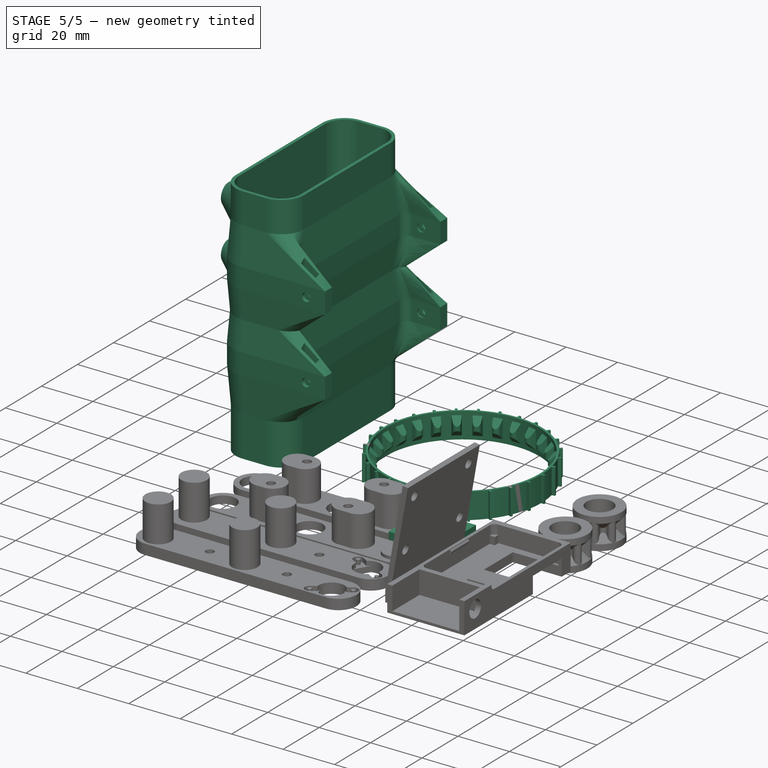
[diagram: stage 5 of 5 — iso view after this stage's code; geometry added in this stage tinted green]
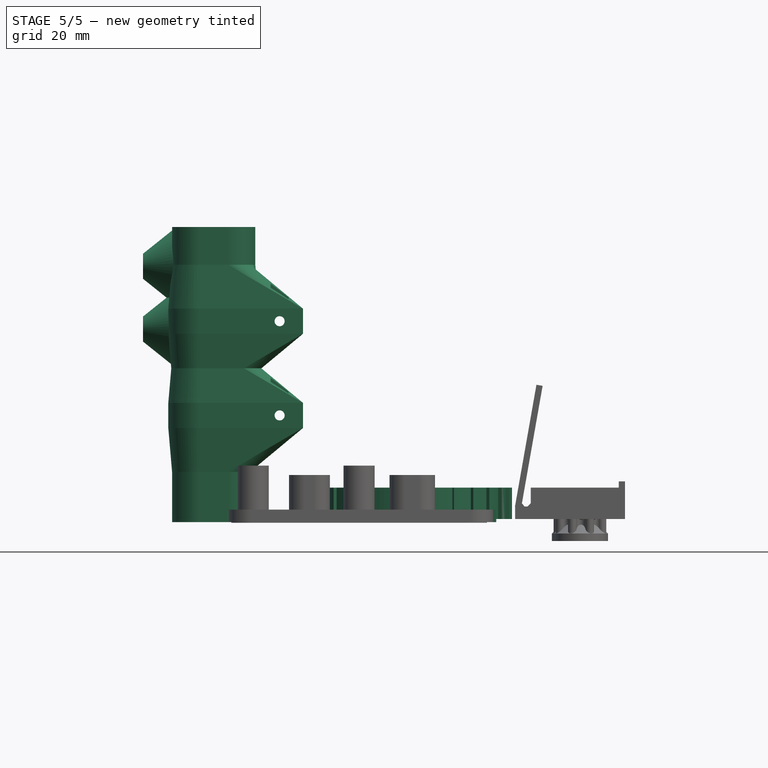
[diagram: stage 5 of 5 — front view after this stage's code; geometry added in this stage tinted green]
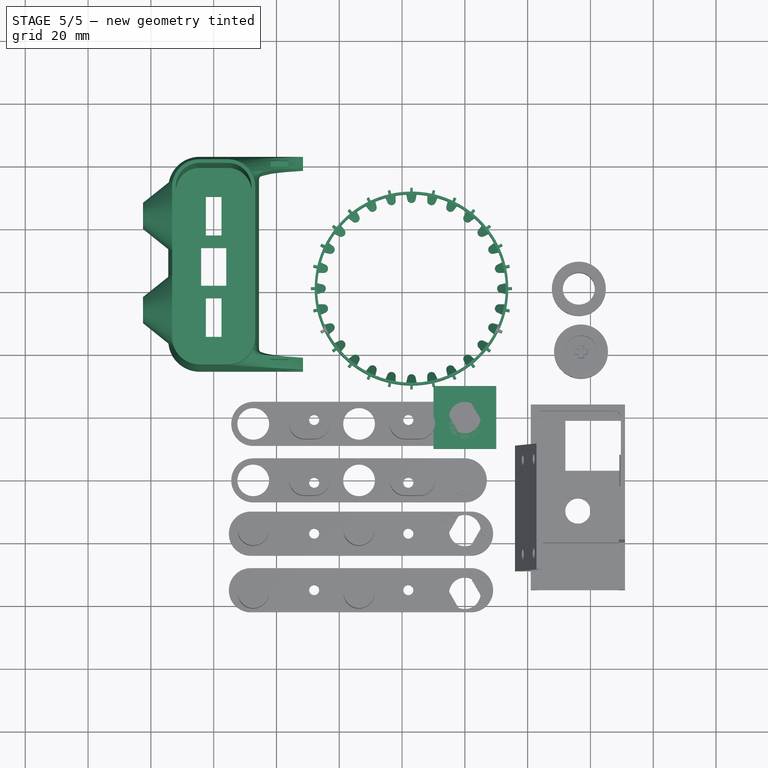
[diagram: stage 5 of 5 — top view after this stage's code; geometry added in this stage tinted green]
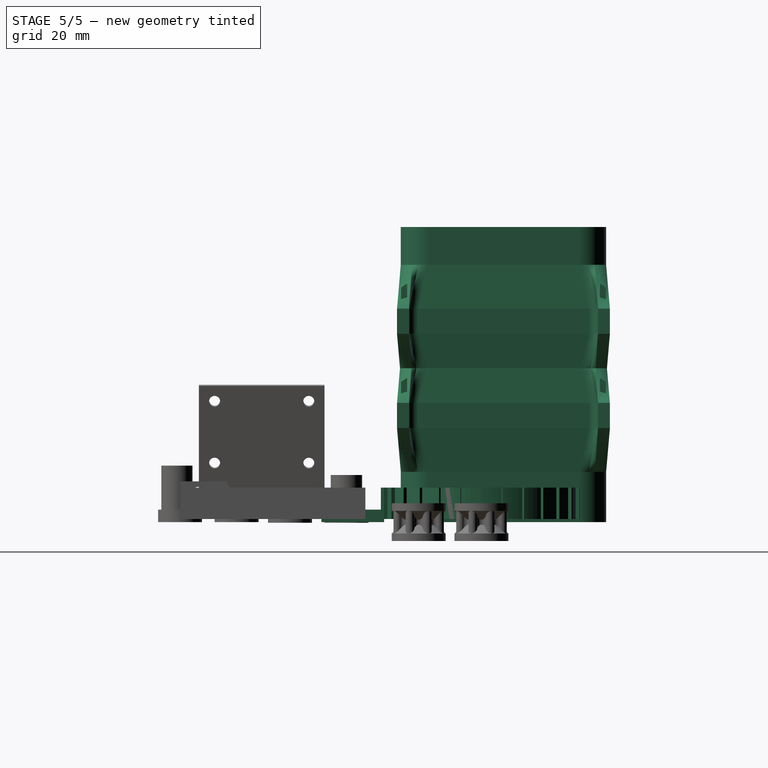
[diagram: stage 5 of 5 — right view after this stage's code; geometry added in this stage tinted green]
FEATURE [PartDesign::Body] Body  label="MotorBody"
  Group = -> [Sketch,Sketch001,Sketch002,Pad,Pad001,Cylinder]
  Origin = -> Origin
  Placement = pos=(0,0,0) rot=(0,0,-1;1.0472rad)
  Tip = -> Cylinder
FEATURE [Part::Box] Box  label="Cube"
  AttacherType = Attacher::AttachEngine3D
  Height = 4
  Length = 20
  Placement = pos=(-10,-10,0) rot=(0,0,1;0rad)
  Width = 20
FEATURE [Part::Cut] Cut  label="MotorTestHolder"
  Base = -> Box
  Tool = -> Body
FEATURE [Sketcher::SketchObject] Sketch003  label="GearOutline"
  MapMode = 5
  Support = -> [XY_Plane001]
  expr: Constraints[19] = 90 * 3 / 4
  expr: Constraints[27] = 45 / 2
  sketch-geometry (24):
    g0: Circle [constr] CenterX=0 CenterY=0 CenterZ=0 NormalX=0 NormalY=0 NormalZ=1 AngleXU=0 Radius=6
    g1: Circle [constr] CenterX=0 CenterY=0 CenterZ=0 NormalX=0 NormalY=0 NormalZ=1 AngleXU=0 Radius=7.17616
    g2: ArcOfCircle CenterX=0 CenterY=-7.17616 CenterZ=0 NormalX=0 NormalY=0 NormalZ=1 AngleXU=0 Radius=1.4 StartAngle=0.19635 EndAngle=2.94524
    g3: LineSegment [constr] StartX=0 StartY=0 StartZ=0 EndX=2.7462 EndY=-6.62991 EndZ=0
    g4: LineSegment [constr] StartX=0 StartY=0 StartZ=0 EndX=5.07431 EndY=-5.07431 EndZ=0
    g5: ArcOfCircle CenterX=2.7462 CenterY=-6.62991 CenterZ=0 NormalX=0 NormalY=0 NormalZ=1 AngleXU=0 Radius=1.4 StartAngle=3.33794 EndAngle=6.87223
    g6: ArcOfCircle CenterX=5.07431 CenterY=-5.07431 CenterZ=0 NormalX=0 NormalY=0 NormalZ=1 AngleXU=0 Radius=1.4 StartAngle=0.981748 EndAngle=3.73064
    g7: LineSegment [constr] StartX=0 StartY=0 StartZ=0 EndX=6.62991 EndY=-2.7462 EndZ=0
    g8: ArcOfCircle CenterX=6.62991 CenterY=-2.7462 CenterZ=0 NormalX=0 NormalY=0 NormalZ=1 AngleXU=0 Radius=1.4 StartAngle=4.12334 EndAngle=7.65763
    g9: ArcOfCircle CenterX=7.17616 CenterY=0 CenterZ=0 NormalX=0 NormalY=0 NormalZ=1 AngleXU=0 Radius=1.4 StartAngle=1.76715 EndAngle=4.51604
    g10: Circle [constr] CenterX=0 CenterY=0 CenterZ=0 NormalX=0 NormalY=0 NormalZ=1 AngleXU=0 Radius=10
    g11: ArcOfCircle CenterX=6.62991 CenterY=2.7462 CenterZ=0 NormalX=0 NormalY=0 NormalZ=1 AngleXU=0 Radius=1.4 StartAngle=4.90874 EndAngle=8.44304
    g12: ArcOfCircle CenterX=5.07431 CenterY=5.07431 CenterZ=0 NormalX=0 NormalY=0 NormalZ=1 AngleXU=0 Radius=1.4 StartAngle=2.55255 EndAngle=5.30143
    g13: ArcOfCircle CenterX=2.7462 CenterY=6.62991 CenterZ=0 NormalX=0 NormalY=0 NormalZ=1 AngleXU=0 Radius=1.4 StartAngle=5.69413 EndAngle=9.22843
    g14: ArcOfCircle CenterX=0 CenterY=7.17616 CenterZ=0 NormalX=0 NormalY=0 NormalZ=1 AngleXU=0 Radius=1.4 StartAngle=3.33794 EndAngle=6.08684
    g15: ArcOfCircle CenterX=-2.7462 CenterY=6.62991 CenterZ=0 NormalX=0 NormalY=0 NormalZ=1 AngleXU=0 Radius=1.4 StartAngle=0.19635 EndAngle=3.73064
    g16: ArcOfCircle CenterX=-5.07431 CenterY=5.07431 CenterZ=0 NormalX=0 NormalY=0 NormalZ=1 AngleXU=0 Radius=1.4 StartAngle=4.12334 EndAngle=6.87223
    g17: ArcOfCircle CenterX=-6.62991 CenterY=2.7462 CenterZ=0 NormalX=0 NormalY=0 NormalZ=1 AngleXU=0 Radius=1.4 StartAngle=0.981743 EndAngle=4.51604
    g18: ArcOfCircle CenterX=-7.17616 CenterY=0 CenterZ=0 NormalX=0 NormalY=0 NormalZ=1 AngleXU=0 Radius=1.4 StartAngle=4.90874 EndAngle=7.65763
    g19: ArcOfCircle CenterX=-6.62991 CenterY=-2.7462 CenterZ=0 NormalX=0 NormalY=0 NormalZ=1 AngleXU=0 Radius=1.4 StartAngle=1.76714 EndAngle=5.30144
    g20: ArcOfCircle CenterX=-5.07431 CenterY=-5.07431 CenterZ=0 NormalX=0 NormalY=0 NormalZ=1 AngleXU=0 Radius=1.4 StartAngle=5.69414 EndAngle=8.44303
    g21: ArcOfCircle CenterX=-2.7462 CenterY=-6.62991 CenterZ=0 NormalX=0 NormalY=0 NormalZ=1 AngleXU=0 Radius=1.4 StartAngle=2.55254 EndAngle=6.08684
    g22: Circle CenterX=0 CenterY=0 CenterZ=0 NormalX=0 NormalY=0 NormalZ=1 AngleXU=0 Radius=5.1
    g23: Circle [constr] CenterX=0 CenterY=0 CenterZ=0 NormalX=0 NormalY=0 NormalZ=1 AngleXU=0 Radius=5.5
  constraints (65):
    c: Coincident(g0,g-1)
    c: Radius(g0) = 6
    c: Coincident(g1,g0)
    c: PointOnObject(g2,g-2)
    c: PointOnObject(g2,g1)
    c: Coincident(g3,g0)
    c: PointOnObject(g3,g1)
    c: PointOnObject(g4,g1)
    c: Angle(g4,g-1) = 0.785398
    c: Coincident(g4,g0)
    c: Angle(g3,g-1) = 1.1781
    c: Coincident(g5,g3)
    c: Tangent(g2,g5) = 1.5708
    c: Equal(g5,g2) = 67.5
    c: Coincident(g6,g4)
    c: Coincident(g7,g0)
    c: PointOnObject(g7,g1)
    c: Angle(g7,g-1) = 0.392699
    c: Tangent(g6,g5) = 1.5708
    c: Horizontal(g2,g2) = 67.5
    c: Coincident(g8,g7) = 22.5
    c: Tangent(g6,g8) = 1.5708
    c: PointOnObject(g9,g-1)
    c: PointOnObject(g9,g1)
    c: Tangent(g8,g9) = 1.5708
    c: Coincident(g10,g0)
    c: Radius(g10) = 10
    c: Vertical(g8,g9) = 22.5
    c: Radius(g2) = 1.4
    c: Symmetric(g11,g8,g-1)
    c: Coincident(g11,g9)
    c: Symmetric(g12,g6,g-1)
    c: Coincident(g12,g11)
    c: Equal(g12,g2)
    c: Symmetric(g13,g5,g-1)
    c: Equal(g13,g2)
    c: Coincident(g13,g12)
    c: Symmetric(g14,g2,g-1)
    c: Equal(g14,g2)
    c: Coincident(g14,g13)
    c: Symmetric(g15,g13,g-2)
    c: Equal(g15,g2)
    c: Coincident(g15,g14)
    c: Symmetric(g16,g12,g-2)
    c: Equal(g16,g2)
    c: Coincident(g16,g15)
    c: Symmetric(g17,g11,g-2)
    c: Equal(g17,g2)
    c: Coincident(g17,g16)
    c: Symmetric(g18,g9,g-2)
    c: Equal(g18,g2)
    c: Coincident(g18,g17)
    c: Symmetric(g19,g8,g-2)
    c: Equal(g2,g19)
    c: Symmetric(g20,g6,g-2)
    c: Equal(g20,g2)
    c: Coincident(g19,g18)
    c: Coincident(g19,g20)
    c: Symmetric(g21,g5,g-2)
    c: Coincident(g21,g2)
    c: Coincident(g20,g21)
    c: Coincident(g22,g-1)
    c: Radius(g22) = 5.1
    c: Coincident(g23,g22)
    c: Radius(g23) = 5.5
FEATURE [Sketcher::SketchObject] Sketch004  label="ThreadConstraints"
  MapMode = 5
  Support = -> [XY_Plane002]
  expr: Constraints[13] = <<p>>.trackchain_r - <<p>>.tracktooth_r
  expr: Constraints[1] = <<p>>.trackchain_r + 0.8
  expr: Constraints[3] = <<p>>.trackchain_r
  expr: Constraints[12] = 180 * 15 / 16
  sketch-geometry (6):
    g0: Circle CenterX=0 CenterY=0 CenterZ=0 NormalX=0 NormalY=0 NormalZ=1 AngleXU=0 Radius=30.83
    g1: Circle CenterX=0 CenterY=0 CenterZ=0 NormalX=0 NormalY=0 NormalZ=1 AngleXU=0 Radius=30.03
    g2: ArcOfCircle CenterX=0 CenterY=-28.63 CenterZ=0 NormalX=0 NormalY=0 NormalZ=1 AngleXU=0 Radius=1.35 StartAngle=0.19635 EndAngle=2.94524
    g3: LineSegment StartX=-1.77427 StartY=-30.63 StartZ=0 EndX=1.77427 EndY=-30.63 EndZ=0
    g4: LineSegment StartX=1.32406 StartY=-28.3666 StartZ=0 EndX=1.77427 EndY=-30.63 EndZ=0
    g5: LineSegment StartX=-1.77427 StartY=-30.63 StartZ=0 EndX=-1.32406 EndY=-28.3666 EndZ=0
  constraints (15):
    c: Coincident(g0,g-1)
    c: Radius(g0) = 30.83
    c: Coincident(g1,g0)
    c: Radius(g1) = 30.03
    c: PointOnObject(g2,g-2)
    c: Radius(g2) = 1.35
    c: Horizontal(g2,g2)
    c: Tangent(g2,g4) = 1.5708
    c: Coincident(g4,g3)
    c: Coincident(g5,g2)
    c: Symmetric(g3,g3,g-2)
    c: Coincident(g5,g3)
    c: Angle(g4,g-2) = 2.94524
    c: DistanceY(g2,g0) = 28.63
    c: DistanceY(g3,g2) = 2
FEATURE [Sketcher::SketchObject] Sketch005  label="SingleThreadNupsi"
  MapMode = 5
  Support = -> [XY_Plane002]
  expr: Constraints[12] = Sketch004.Constraints[14]
  expr: Constraints[11] = <<p>>.trackchain_r - <<p>>.tracktooth_r
  expr: Constraints[10] = Sketch004.Constraints[12]
  expr: Constraints[1] = Sketch004.Constraints[1]
  expr: Constraints[3] = Sketch004.Constraints[3]
  expr: Constraints[5] = Sketch004.Constraints[5]
  sketch-geometry (10):
    g0: Circle [constr] CenterX=0 CenterY=0 CenterZ=0 NormalX=0 NormalY=0 NormalZ=1 AngleXU=0 Radius=30.83
    g1: Circle [constr] CenterX=0 CenterY=0 CenterZ=0 NormalX=0 NormalY=0 NormalZ=1 AngleXU=0 Radius=30.03
    g2: ArcOfCircle CenterX=0 CenterY=-28.63 CenterZ=0 NormalX=0 NormalY=0 NormalZ=1 AngleXU=0 Radius=1.35 StartAngle=0.19635 EndAngle=2.94524
    g3: LineSegment StartX=1.32406 StartY=-28.3666 StartZ=0 EndX=1.77427 EndY=-30.63 EndZ=0
    g4: LineSegment StartX=-1.77427 StartY=-30.63 StartZ=0 EndX=-1.32406 EndY=-28.3666 EndZ=0
    g5: LineSegment StartX=-1.77427 StartY=-30.63 StartZ=0 EndX=-0.4 EndY=-30.63 EndZ=0
    g6: LineSegment StartX=-0.4 StartY=-30.63 StartZ=0 EndX=-0.4 EndY=-32.03 EndZ=0
    g7: LineSegment StartX=-0.4 StartY=-32.03 StartZ=0 EndX=0.4 EndY=-32.03 EndZ=0
    g8: LineSegment StartX=0.4 StartY=-32.03 StartZ=0 EndX=0.4 EndY=-30.63 EndZ=0
    g9: LineSegment StartX=0.4 StartY=-30.63 StartZ=0 EndX=1.77427 EndY=-30.63 EndZ=0
  constraints (26):
    c: Coincident(g0,g-1)
    c: Radius(g0) = 30.83
    c: Coincident(g1,g0)
    c: Radius(g1) = 30.03
    c: PointOnObject(g2,g-2)
    c: Radius(g2) = 1.35
    c: Horizontal(g2,g2)
    c: Tangent(g2,g3) = 1.5708
    c: Coincident(g4,g2)
    c: Symmetric(g4,g3,g-2)
    c: Angle(g3,g-2) = 2.94524
    c: DistanceY(g2,g0) = 28.63
    c: DistanceY(g3,g2) = 2
    c: Coincident(g4,g5)
    c: Horizontal(g5)
    c: Coincident(g5,g6)
    c: Vertical(g6)
    c: Coincident(g6,g7)
    c: Coincident(g7,g8)
    c: Vertical(g8)
    c: Coincident(g8,g9)
    c: Coincident(g9,g3)
    c: Horizontal(g9)
    c: Symmetric(g6,g7,g-2)
    c: DistanceX(g7,g7) = 0.8
    c: DistanceY(g6,g5) = 1.4
FEATURE [Sketcher::SketchObject] Sketch006  label="ThreadRim"
  MapMode = 5
  Support = -> [XY_Plane002]
  expr: Constraints[1] = Sketch004.Constraints[1]
  expr: Constraints[3] = Sketch004.Constraints[3]
  expr: Constraints[5] = Sketch004.Constraints[5]
  expr: Constraints[12] = Sketch004.Constraints[12]
  expr: Constraints[13] = Sketch004.Constraints[13]
  expr: Constraints[14] = Sketch004.Constraints[14]
  sketch-geometry (6):
    g0: Circle CenterX=0 CenterY=0 CenterZ=0 NormalX=0 NormalY=0 NormalZ=1 AngleXU=0 Radius=30.83
    g1: Circle CenterX=0 CenterY=0 CenterZ=0 NormalX=0 NormalY=0 NormalZ=1 AngleXU=0 Radius=30.03
    g2: ArcOfCircle [constr] CenterX=0 CenterY=-28.63 CenterZ=0 NormalX=0 NormalY=0 NormalZ=1 AngleXU=0 Radius=1.35 StartAngle=0.19635 EndAngle=2.94524
    g3: LineSegment [constr] StartX=-1.77427 StartY=-30.63 StartZ=0 EndX=1.77427 EndY=-30.63 EndZ=0
    g4: LineSegment [constr] StartX=1.32406 StartY=-28.3666 StartZ=0 EndX=1.77427 EndY=-30.63 EndZ=0
    g5: LineSegment [constr] StartX=-1.77427 StartY=-30.63 StartZ=0 EndX=-1.32406 EndY=-28.3666 EndZ=0
  constraints (15):
    c: Coincident(g0,g-1)
    c: Radius(g0) = 30.83
    c: Coincident(g1,g0)
    c: Radius(g1) = 30.03
    c: PointOnObject(g2,g-2)
    c: Radius(g2) = 1.35
    c: Horizontal(g2,g2)
    c: Tangent(g2,g4) = 1.5708
    c: Coincident(g4,g3)
    c: Coincident(g5,g2)
    c: Symmetric(g3,g3,g-2)
    c: Coincident(g5,g3)
    c: Angle(g4,g-2) = 2.94524
    c: DistanceY(g2,g0) = 28.63
    c: DistanceY(g3,g2) = 2
FEATURE [Sketcher::SketchObject] Sketch007  label="ThreadGripProfile"
  MapMode = 5
  Placement = pos=(0,0,0) rot=(0.57735,0.57735,0.57735;2.0944rad)
  Support = -> [YZ_Plane002]
  expr: Constraints[3] = <<p>>.trackchain_r
  expr: Constraints[2] = <<p>>.trackchain_r - 2 * <<p>>.tracktooth_r
  sketch-geometry (10):
    g0: LineSegment StartX=-27.23 StartY=0.75 StartZ=0 EndX=-27.23 EndY=-0.75 EndZ=0
    g1: LineSegment StartX=-27.23 StartY=-0.75 StartZ=0 EndX=-30.03 EndY=-3.55 EndZ=0
    g2: LineSegment StartX=-30.03 StartY=3.55 StartZ=0 EndX=-27.23 EndY=0.75 EndZ=0
    g3: LineSegment StartX=-30.03 StartY=3.55 StartZ=0 EndX=-30.23 EndY=3.55 EndZ=0
    g4: LineSegment StartX=-30.03 StartY=-3.55 StartZ=0 EndX=-30.23 EndY=-3.55 EndZ=0
    g5: LineSegment StartX=-30.23 StartY=3.55 StartZ=0 EndX=-30.23 EndY=5 EndZ=0
    g6: LineSegment StartX=-30.23 StartY=5 StartZ=0 EndX=-35.23 EndY=5 EndZ=0
    g7: LineSegment StartX=-35.23 StartY=5 StartZ=0 EndX=-35.23 EndY=-5 EndZ=0
    g8: LineSegment StartX=-35.23 StartY=-5 StartZ=0 EndX=-30.23 EndY=-5 EndZ=0
    g9: LineSegment StartX=-30.23 StartY=-5 StartZ=0 EndX=-30.23 EndY=-3.55 EndZ=0
  constraints (27):
    c: Coincident(g1,g0)
    c: Coincident(g2,g0)
    c: DistanceX(g0,g-1) = 27.23
    c: DistanceX(g1,g-1) = 30.03
    c: Angle(g0,g1) = 2.35619
    c: Symmetric(g0,g0,g-1)
    c: Symmetric(g1,g2,g-1)
    c: DistanceY(g0,g0) = 1.5
    c: Coincident(g3,g2)
    c: Coincident(g4,g1)
    c: Horizontal(g3)
    c: Horizontal(g4)
    c: DistanceX(g3,g3) = 0.2
    c: Coincident(g3,g5)
    c: Vertical(g5)
    c: Coincident(g5,g6)
    c: Horizontal(g6)
    c: Coincident(g6,g7)
    c: Coincident(g7,g8)
    c: Horizontal(g8)
    c: Coincident(g8,g9)
    c: Coincident(g9,g4)
    c: Vertical(g9)
    c: Symmetric(g6,g7,g-1)
    c: DistanceY(g7,g7) = 10
    c: DistanceX(g6,g6) = 5
    c: Vertical(g4,g3)
FEATURE [PartDesign::Body] Body002  label="ThreadSketches"
  Group = -> [Sketch004,Sketch005,Sketch006,Sketch007]
  Origin = -> Origin002
FEATURE [Part::Extrusion] Extrude001
  Base = -> Sketch005
  Dir = (0,0,1)
  DirMode = 2
  FaceMakerClass = Part::FaceMakerBullseye
  LengthFwd = 20
  LengthRev = 0
  Solid = true
  Symmetric = true
FEATURE [Part::Extrusion] Extrude002
  Base = -> Sketch007
  Dir = (1,-1e-16,1e-16)
  DirMode = 2
  FaceMakerClass = Part::FaceMakerBullseye
  LengthFwd = 10
  LengthRev = 0
  Solid = true
  Symmetric = true
FEATURE [Part::MultiCommon] Common
  Refine = true
  Shapes = -> [Extrude002,Extrude001]
FEATURE [Part::Extrusion] Extrude003
  Base = -> Sketch006
  Dir = (0,0,1)
  DirMode = 2
  FaceMakerClass = Part::FaceMakerBullseye
  LengthFwd = 10
  LengthRev = 0
  Solid = true
  Symmetric = true
FEATURE [Part::FeaturePython] Array  # Draft array (typed FeaturePython)
  Angle = 360
  ArrayType = 1
  Axis = (0,0,1)
  Base = -> Common
  Center = (0,0,0)
  Count = 28
  ExpandArray = false
  Fuse = false
  IntervalAxis = (0,0,0)
  IntervalX = (1,0,0)
  IntervalY = (0,1,0)
  IntervalZ = (0,0,1)
  NumberCircles = 2
  NumberPolar = 28
  NumberX = 1
  NumberY = 1
  NumberZ = 1
  PlacementList = 28 placements: [(0,0,0),(0,0,0),(0,0,0),(0,0,0),(0,0,0),(0,0,0),(0,0,0),(0,0,0),(0,0,0),(0,0,0),(0,0,0),(0,0,0),(0,0,0),(0,0,0),(0,0,0),(0,0,0),(0,0,0),(0,0,0),(0,0,0),(0,0,0),(0,0,0),(0,0,0),(0,0,0),(0,0,0),(0,0,0),(0,0,0),(0,0,0),(0,0,0)]
  RadialDistance = 1
  ScaleList = (28) [(1,1,1),(1,1,1),(1,1,1),(1,1,1),(1,1,1),(1,1,1),(1,1,1),(1,1,1),(1,1,1),(1,1,1),(1,1,1),(1,1,1),(1,1,1),(1,1,1),(1,1,1),(1,1,1),(1,1,1),(1,1,1),+10 more]
  Symmetry = 1
  TangentialDistance = 1
FEATURE [Part::MultiFuse] Fusion001  label="Thread"
  Refine = true
  Shapes = -> [Array,Extrude003]
FEATURE [Sketcher::SketchObject] Sketch017  label="BatPackTemplate"
  MapMode = 5
  Placement = pos=(0,0,0) rot=(0.57735,0.57735,0.57735;2.0944rad)
  Support = -> [YZ_Plane005]
  sketch-geometry (44):
    g0: ArcOfCircle CenterX=-23.95 CenterY=4.5 CenterZ=0 NormalX=0 NormalY=0 NormalZ=1 AngleXU=0 Radius=7.55 StartAngle=1.5708 EndAngle=3.14159
    g1: ArcOfCircle CenterX=23.95 CenterY=4.5 CenterZ=0 NormalX=0 NormalY=0 NormalZ=1 AngleXU=0 Radius=7.55 StartAngle=0 EndAngle=1.5708
    g2: ArcOfCircle CenterX=23.95 CenterY=-4.5 CenterZ=0 NormalX=0 NormalY=0 NormalZ=1 AngleXU=0 Radius=7.55 StartAngle=4.71239 EndAngle=6.28319
    g3: ArcOfCircle CenterX=-23.95 CenterY=-4.5 CenterZ=0 NormalX=0 NormalY=0 NormalZ=1 AngleXU=0 Radius=7.55 StartAngle=3.14159 EndAngle=4.71239
    g4: LineSegment StartX=-31.5 StartY=4.5 StartZ=0 EndX=-31.5 EndY=-4.5 EndZ=0
    g5: LineSegment StartX=-23.95 StartY=12.05 StartZ=0 EndX=23.95 EndY=12.05 EndZ=0
    g6: LineSegment StartX=31.5 StartY=4.5 StartZ=0 EndX=31.5 EndY=-4.5 EndZ=0
    g7: LineSegment StartX=23.95 StartY=-12.05 StartZ=0 EndX=-23.95 EndY=-12.05 EndZ=0
    g8: LineSegment StartX=10 StartY=2.5 StartZ=0 EndX=22.3 EndY=2.5 EndZ=0
    g9: LineSegment StartX=22.3 StartY=2.5 StartZ=0 EndX=22.3 EndY=-2.5 EndZ=0
    g10: LineSegment StartX=22.3 StartY=-2.5 StartZ=0 EndX=10 EndY=-2.5 EndZ=0
    g11: LineSegment StartX=10 StartY=-2.5 StartZ=0 EndX=10 EndY=2.5 EndZ=0
    g12: LineSegment StartX=-22.3 StartY=2.5 StartZ=0 EndX=-10 EndY=2.5 EndZ=0
    g13: LineSegment StartX=-10 StartY=2.5 StartZ=0 EndX=-10 EndY=-2.5 EndZ=0
    g14: LineSegment StartX=-10 StartY=-2.5 StartZ=0 EndX=-22.3 EndY=-2.5 EndZ=0
    g15: LineSegment StartX=-22.3 StartY=-2.5 StartZ=0 EndX=-22.3 EndY=2.5 EndZ=0
    g16: LineSegment StartX=-6 StartY=4 StartZ=0 EndX=6 EndY=4 EndZ=0
    g17: LineSegment StartX=6 StartY=4 StartZ=0 EndX=6 EndY=-4 EndZ=0
    g18: LineSegment StartX=6 StartY=-4 StartZ=0 EndX=-6 EndY=-4 EndZ=0
    g19: LineSegment StartX=-6 StartY=-4 StartZ=0 EndX=-6 EndY=4 EndZ=0
    g20: ArcOfCircle CenterX=-23.95 CenterY=4.5 CenterZ=0 NormalX=0 NormalY=0 NormalZ=1 AngleXU=0 Radius=8.75 StartAngle=1.5708 EndAngle=3.14159
    g21: ArcOfCircle CenterX=23.95 CenterY=4.5 CenterZ=0 NormalX=0 NormalY=0 NormalZ=1 AngleXU=0 Radius=8.75 StartAngle=0 EndAngle=1.5708
    g22: LineSegment StartX=-23.95 StartY=13.25 StartZ=0 EndX=23.95 EndY=13.25 EndZ=0
    g23: LineSegment StartX=32.7 StartY=4.5 StartZ=0 EndX=32.7 EndY=-4.5 EndZ=0
    g24: LineSegment StartX=23.95 StartY=-13.25 StartZ=0 EndX=-23.95 EndY=-13.25 EndZ=0
    g25: LineSegment StartX=-32.7 StartY=-4.5 StartZ=0 EndX=-32.7 EndY=4.5 EndZ=0
    g26: ArcOfCircle CenterX=23.95 CenterY=4.5 CenterZ=0 NormalX=0 NormalY=0 NormalZ=1 AngleXU=0 Radius=9.95 StartAngle=0 EndAngle=1.5708
    g27: ArcOfCircle CenterX=-23.95 CenterY=4.5 CenterZ=0 NormalX=0 NormalY=0 NormalZ=1 AngleXU=0 Radius=9.95 StartAngle=1.5708 EndAngle=3.14159
    g28: LineSegment StartX=-23.95 StartY=14.45 StartZ=0 EndX=23.95 EndY=14.45 EndZ=0
    g29: LineSegment StartX=-33.9 StartY=4.5 StartZ=0 EndX=-33.9 EndY=-28.45 EndZ=0
    g30: LineSegment StartX=33.9 StartY=4.5 StartZ=0 EndX=33.9 EndY=-28.45 EndZ=0
    g31: LineSegment StartX=-33.9 StartY=-28.45 StartZ=0 EndX=-30.1 EndY=-28.45 EndZ=0
    g32: LineSegment StartX=-30.1 StartY=-28.45 StartZ=0 EndX=-30.1 EndY=-17.45 EndZ=0
    g33: LineSegment StartX=33.9 StartY=-28.45 StartZ=0 EndX=30.1 EndY=-28.45 EndZ=0
    g34: LineSegment StartX=30.1 StartY=-28.45 StartZ=0 EndX=30.1 EndY=-17.45 EndZ=0
    g35: ArcOfCircle CenterX=-27.1 CenterY=-17.45 CenterZ=0 NormalX=0 NormalY=0 NormalZ=1 AngleXU=0 Radius=3 StartAngle=1.5708 EndAngle=3.14159
    g36: ArcOfCircle CenterX=27.1 CenterY=-17.45 CenterZ=0 NormalX=0 NormalY=0 NormalZ=1 AngleXU=0 Radius=3 StartAngle=0 EndAngle=1.5708
    g37: LineSegment StartX=-27.1 StartY=-14.45 StartZ=0 EndX=27.1 EndY=-14.45 EndZ=0
    g38: ArcOfCircle CenterX=-23.95 CenterY=-4.5 CenterZ=0 NormalX=0 NormalY=0 NormalZ=1 AngleXU=0 Radius=8.75 StartAngle=4.34412 EndAngle=4.71239
    g39: ArcOfCircle CenterX=-23.95 CenterY=-4.5 CenterZ=0 NormalX=0 NormalY=0 NormalZ=1 AngleXU=0 Radius=8.75 StartAngle=4.0831 EndAngle=4.34412
    g40: ArcOfCircle CenterX=-23.95 CenterY=-4.5 CenterZ=0 NormalX=0 NormalY=0 NormalZ=1 AngleXU=0 Radius=8.75 StartAngle=3.14159 EndAngle=4.0831
    g41: ArcOfCircle CenterX=23.95 CenterY=-4.5 CenterZ=0 NormalX=0 NormalY=0 NormalZ=1 AngleXU=0 Radius=8.75 StartAngle=5.34168 EndAngle=6.28319
    g42: ArcOfCircle CenterX=23.95 CenterY=-4.5 CenterZ=0 NormalX=0 NormalY=0 NormalZ=1 AngleXU=0 Radius=8.75 StartAngle=5.08066 EndAngle=5.34168
    g43: ArcOfCircle CenterX=23.95 CenterY=-4.5 CenterZ=0 NormalX=0 NormalY=0 NormalZ=1 AngleXU=0 Radius=8.75 StartAngle=4.71239 EndAngle=5.08066
  constraints (130):
    c: Coincident(g14,g15)
    c: Coincident(g12,g15)
    c: Coincident(g12,g13)
    c: Coincident(g13,g14)
    c: Coincident(g18,g19)
    c: Coincident(g17,g18)
    c: Coincident(g16,g17)
    c: Coincident(g16,g19)
    c: Coincident(g10,g11)
    c: Coincident(g8,g11)
    c: Coincident(g8,g9)
    c: Coincident(g9,g10)
    c: Coincident(g27,g28)
    c: Coincident(g20,g22)
    c: Coincident(g0,g5)
    c: Coincident(g27,g29)
    c: Coincident(g20,g25)
    c: Coincident(g0,g4)
    c: Coincident(g3,g4)
    c: Coincident(g29,g31)
    c: Coincident(g31,g32)
    c: Coincident(g32,g35)
    c: Coincident(g35,g37)
    c: Coincident(g3,g7)
    c: Coincident(g2,g7)
    c: Coincident(g36,g37)
    c: Coincident(g34,g36)
    c: Coincident(g33,g34)
    c: Coincident(g30,g33)
    c: Coincident(g2,g6)
    c: Coincident(g1,g6)
    c: Coincident(g21,g23)
    c: Coincident(g26,g30)
    c: Coincident(g26,g28)
    c: Coincident(g21,g22)
    c: Coincident(g1,g5)
    c: DistanceX(g16,g16) = 12
    c: DistanceY(g17,g17) = 8
    c: DistanceX(g8,g8) = 12.3
    c: DistanceY(g9,g9) = 5
    c: DistanceX(g-1,g10) = 10
    c: Symmetric(g18,g16,g-1)
    c: Vertical(g17)
    c: Horizontal(g18)
    c: Horizontal(g16)
    c: Vertical(g19)
    c: Symmetric(g10,g8,g-1)
    c: Horizontal(g8)
    c: Horizontal(g10)
    c: Vertical(g9)
    c: Symmetric(g8,g12,g-2)
    c: Symmetric(g13,g10,g-2)
    c: Symmetric(g12,g8,g-2)
    c: Symmetric(g9,g14,g-2)
    c: DistanceX(g0,g1) = 63
    c: DistanceY(g2,g1) = 24.1
    c: Vertical(g5,g21)
    c: Vertical(g22,g26)
    c: Vertical(g28,g1)
    c: Vertical(g26,g2)
    c: Vertical(g7,g24)
    c: Vertical(g0,g0)
    c: Vertical(g0,g3)
    c: Vertical(g3,g3)
    c: Vertical(g7,g20)
    c: Vertical(g20,g24)
    c: Vertical(g24,g27)
    c: Horizontal(g1,g1)
    c: Horizontal(g6,g21)
    c: Horizontal(g23,g26)
    c: Horizontal(g30,g0)
    c: Horizontal(g0,g0)
    c: Horizontal(g4,g20)
    c: Horizontal(g25,g27)
    c: Horizontal(g2,g2)
    c: Horizontal(g6,g23)
    c: Horizontal(g23,g3)
    c: Horizontal(g3,g3)
    c: Horizontal(g4,g25)
    c: DistanceY(g31,g35) = 14
    c: DistanceX(g29,g31) = 3.8
    c: Horizontal(g34,g35)
    c: Horizontal(g35,g35)
    c: Horizontal(g36,g36)
    c: Vertical(g35,g35)
    c: Vertical(g36,g36)
    c: Radius(g35) = 3
    c: Symmetric(g0,g2,g-1)
    c: Coincident(g0,g20)
    c: Coincident(g0,g27)
    c: Coincident(g1,g21)
    c: Coincident(g1,g26)
    c: Horizontal(g5)
    c: Horizontal(g22)
    c: Horizontal(g28)
    c: Horizontal(g7)
    c: Horizontal(g24)
    c: Horizontal(g37)
    c: Vertical(g4)
    c: Vertical(g25)
    c: Vertical(g29)
    c: Vertical(g30)
    c: Horizontal(g31)
    c: Horizontal(g33)
    c: Vertical(g32)
    c: Vertical(g34)
    c: DistanceY(g36,g24) = 1.2
    c: Equal(g31,g33)
    c: Radius(g0) = 7.55
    c: Horizontal(g31,g33)
    c: Radius(g20) = 8.75
    c: Radius(g27) = 9.95
    c: Coincident(g38,g3)
    c: Coincident(g38,g24)
    c: Vertical(g38,g35)
    c: Coincident(g39,g3)
    c: Coincident(g39,g38)
    c: Coincident(g40,g3)
    c: Coincident(g40,g39)
    c: Coincident(g40,g25)
    c: DistanceX(g32,g39) = 1
    c: Coincident(g41,g23)
    c: Coincident(g42,g41)
    c: Coincident(g42,g41)
    c: Coincident(g43,g41)
    c: Coincident(g43,g42)
    c: Coincident(g43,g24)
    c: Coincident(g2,g41)
    c: Symmetric(g38,g42,g-2)
    c: Horizontal(g41,g39)
FEATURE [Sketcher::SketchObject] Sketch018  label="BatInner"
  AttachmentOffset = pos=(0,0,18) rot=(0,0,1;0rad)
  MapMode = 5
  Placement = pos=(18,-4e-15,4e-15) rot=(0.57735,0.57735,0.57735;2.0944rad)
  Support = -> [YZ_Plane005]
  expr: Constraints[36] = Sketch017.Constraints[36]
  expr: Constraints[40] = Sketch017.Constraints[40]
  expr: Constraints[37] = Sketch017.Constraints[37]
  expr: Constraints[39] = Sketch017.Constraints[39]
  expr: Constraints[120] = Sketch017.Constraints[120]
  expr: Constraints[38] = Sketch017.Constraints[38]
  expr: Constraints[79] = Sketch017.Constraints[79]
  expr: Constraints[54] = Sketch017.Constraints[54]
  expr: Constraints[55] = Sketch017.Constraints[55]
  expr: Constraints[108] = Sketch017.Constraints[108]
  expr: Constraints[80] = Sketch017.Constraints[80]
  expr: Constraints[86] = Sketch017.Constraints[86]
  expr: Constraints[106] = Sketch017.Constraints[106]
  expr: Constraints[110] = Sketch017.Constraints[110]
  expr: Constraints[111] = Sketch017.Constraints[111]
  sketch-geometry (44):
    g0: ArcOfCircle [constr] CenterX=-23.95 CenterY=4.5 CenterZ=0 NormalX=0 NormalY=0 NormalZ=1 AngleXU=0 Radius=7.55 StartAngle=1.5708 EndAngle=3.14159
    g1: ArcOfCircle [constr] CenterX=23.95 CenterY=4.5 CenterZ=0 NormalX=0 NormalY=0 NormalZ=1 AngleXU=0 Radius=7.55 StartAngle=0 EndAngle=1.5708
    g2: ArcOfCircle [constr] CenterX=23.95 CenterY=-4.5 CenterZ=0 NormalX=0 NormalY=0 NormalZ=1 AngleXU=0 Radius=7.55 StartAngle=4.71239 EndAngle=6.28319
    g3: ArcOfCircle [constr] CenterX=-23.95 CenterY=-4.5 CenterZ=0 NormalX=0 NormalY=0 NormalZ=1 AngleXU=0 Radius=7.55 StartAngle=3.14159 EndAngle=4.71239
    g4: LineSegment [constr] StartX=-31.5 StartY=4.5 StartZ=0 EndX=-31.5 EndY=-4.5 EndZ=0
    g5: LineSegment [constr] StartX=-23.95 StartY=12.05 StartZ=0 EndX=23.95 EndY=12.05 EndZ=0
    g6: LineSegment [constr] StartX=31.5 StartY=4.5 StartZ=0 EndX=31.5 EndY=-4.5 EndZ=0
    g7: LineSegment [constr] StartX=23.95 StartY=-12.05 StartZ=0 EndX=-23.95 EndY=-12.05 EndZ=0
    g8: LineSegment [constr] StartX=10 StartY=2.5 StartZ=0 EndX=22.3 EndY=2.5 EndZ=0
    g9: LineSegment [constr] StartX=22.3 StartY=2.5 StartZ=0 EndX=22.3 EndY=-2.5 EndZ=0
    g10: LineSegment [constr] StartX=22.3 StartY=-2.5 StartZ=0 EndX=10 EndY=-2.5 EndZ=0
    g11: LineSegment [constr] StartX=10 StartY=-2.5 StartZ=0 EndX=10 EndY=2.5 EndZ=0
    g12: LineSegment [constr] StartX=-22.3 StartY=2.5 StartZ=0 EndX=-10 EndY=2.5 EndZ=0
    g13: LineSegment [constr] StartX=-10 StartY=2.5 StartZ=0 EndX=-10 EndY=-2.5 EndZ=0
    g14: LineSegment [constr] StartX=-10 StartY=-2.5 StartZ=0 EndX=-22.3 EndY=-2.5 EndZ=0
    g15: LineSegment [constr] StartX=-22.3 StartY=-2.5 StartZ=0 EndX=-22.3 EndY=2.5 EndZ=0
    g16: LineSegment [constr] StartX=-6 StartY=4 StartZ=0 EndX=6 EndY=4 EndZ=0
    g17: LineSegment [constr] StartX=6 StartY=4 StartZ=0 EndX=6 EndY=-4 EndZ=0
    g18: LineSegment [constr] StartX=6 StartY=-4 StartZ=0 EndX=-6 EndY=-4 EndZ=0
    g19: LineSegment [constr] StartX=-6 StartY=-4 StartZ=0 EndX=-6 EndY=4 EndZ=0
    g20: ArcOfCircle CenterX=-23.95 CenterY=4.5 CenterZ=0 NormalX=0 NormalY=0 NormalZ=1 AngleXU=0 Radius=8.75 StartAngle=1.5708 EndAngle=3.14159
    g21: ArcOfCircle CenterX=23.95 CenterY=4.5 CenterZ=0 NormalX=0 NormalY=0 NormalZ=1 AngleXU=0 Radius=8.75 StartAngle=0 EndAngle=1.5708
    g22: LineSegment StartX=-23.95 StartY=13.25 StartZ=0 EndX=23.95 EndY=13.25 EndZ=0
    g23: LineSegment StartX=32.7 StartY=4.5 StartZ=0 EndX=32.7 EndY=-4.5 EndZ=0
    g24: LineSegment StartX=23.95 StartY=-13.25 StartZ=0 EndX=-23.95 EndY=-13.25 EndZ=0
    g25: LineSegment StartX=-32.7 StartY=-4.5 StartZ=0 EndX=-32.7 EndY=4.5 EndZ=0
    g26: ArcOfCircle [constr] CenterX=23.95 CenterY=4.5 CenterZ=0 NormalX=0 NormalY=0 NormalZ=1 AngleXU=0 Radius=9.95 StartAngle=0 EndAngle=1.5708
    g27: ArcOfCircle [constr] CenterX=-23.95 CenterY=4.5 CenterZ=0 NormalX=0 NormalY=0 NormalZ=1 AngleXU=0 Radius=9.95 StartAngle=1.5708 EndAngle=3.14159
    g28: LineSegment [constr] StartX=-23.95 StartY=14.45 StartZ=0 EndX=23.95 EndY=14.45 EndZ=0
    g29: LineSegment [constr] StartX=-33.9 StartY=4.5 StartZ=0 EndX=-33.9 EndY=-28.45 EndZ=0
    g30: LineSegment [constr] StartX=33.9 StartY=4.5 StartZ=0 EndX=33.9 EndY=-28.45 EndZ=0
    g31: LineSegment [constr] StartX=-33.9 StartY=-28.45 StartZ=0 EndX=-30.1 EndY=-28.45 EndZ=0
    g32: LineSegment [constr] StartX=-30.1 StartY=-28.45 StartZ=0 EndX=-30.1 EndY=-17.45 EndZ=0
    g33: LineSegment [constr] StartX=33.9 StartY=-28.45 StartZ=0 EndX=30.1 EndY=-28.45 EndZ=0
    g34: LineSegment [constr] StartX=30.1 StartY=-28.45 StartZ=0 EndX=30.1 EndY=-17.45 EndZ=0
    g35: ArcOfCircle [constr] CenterX=-27.1 CenterY=-17.45 CenterZ=0 NormalX=0 NormalY=0 NormalZ=1 AngleXU=0 Radius=3 StartAngle=1.5708 EndAngle=3.14159
    g36: ArcOfCircle [constr] CenterX=27.1 CenterY=-17.45 CenterZ=0 NormalX=0 NormalY=0 NormalZ=1 AngleXU=0 Radius=3 StartAngle=0 EndAngle=1.5708
    g37: LineSegment [constr] StartX=-27.1 StartY=-14.45 StartZ=0 EndX=27.1 EndY=-14.45 EndZ=0
    g38: ArcOfCircle CenterX=-23.95 CenterY=-4.5 CenterZ=0 NormalX=0 NormalY=0 NormalZ=1 AngleXU=0 Radius=8.75 StartAngle=4.34412 EndAngle=4.71239
    g39: ArcOfCircle CenterX=-23.95 CenterY=-4.5 CenterZ=0 NormalX=0 NormalY=0 NormalZ=1 AngleXU=0 Radius=8.75 StartAngle=4.0831 EndAngle=4.34412
    g40: ArcOfCircle CenterX=-23.95 CenterY=-4.5 CenterZ=0 NormalX=0 NormalY=0 NormalZ=1 AngleXU=0 Radius=8.75 StartAngle=3.14159 EndAngle=4.0831
    g41: ArcOfCircle CenterX=23.95 CenterY=-4.5 CenterZ=0 NormalX=0 NormalY=0 NormalZ=1 AngleXU=0 Radius=8.75 StartAngle=5.34168 EndAngle=6.28319
    g42: ArcOfCircle CenterX=23.95 CenterY=-4.5 CenterZ=0 NormalX=0 NormalY=0 NormalZ=1 AngleXU=0 Radius=8.75 StartAngle=5.08066 EndAngle=5.34168
    g43: ArcOfCircle CenterX=23.95 CenterY=-4.5 CenterZ=0 NormalX=0 NormalY=0 NormalZ=1 AngleXU=0 Radius=8.75 StartAngle=4.71239 EndAngle=5.08066
  constraints (130):
    c: Coincident(g14,g15)
    c: Coincident(g12,g15)
    c: Coincident(g12,g13)
    c: Coincident(g13,g14)
    c: Coincident(g18,g19)
    c: Coincident(g17,g18)
    c: Coincident(g16,g17)
    c: Coincident(g16,g19)
    c: Coincident(g10,g11)
    c: Coincident(g8,g11)
    c: Coincident(g8,g9)
    c: Coincident(g9,g10)
    c: Coincident(g27,g28)
    c: Coincident(g20,g22)
    c: Coincident(g0,g5)
    c: Coincident(g27,g29)
    c: Coincident(g20,g25)
    c: Coincident(g0,g4)
    c: Coincident(g3,g4)
    c: Coincident(g29,g31)
    c: Coincident(g31,g32)
    c: Coincident(g32,g35)
    c: Coincident(g35,g37)
    c: Coincident(g3,g7)
    c: Coincident(g2,g7)
    c: Coincident(g36,g37)
    c: Coincident(g34,g36)
    c: Coincident(g33,g34)
    c: Coincident(g30,g33)
    c: Coincident(g2,g6)
    c: Coincident(g1,g6)
    c: Coincident(g21,g23)
    c: Coincident(g26,g30)
    c: Coincident(g26,g28)
    c: Coincident(g21,g22)
    c: Coincident(g1,g5)
    c: DistanceX(g16,g16) = 12
    c: DistanceY(g17,g17) = 8
    c: DistanceX(g8,g8) = 12.3
    c: DistanceY(g9,g9) = 5
    c: DistanceX(g-1,g10) = 10
    c: Symmetric(g18,g16,g-1)
    c: Vertical(g17)
    c: Horizontal(g18)
    c: Horizontal(g16)
    c: Vertical(g19)
    c: Symmetric(g10,g8,g-1)
    c: Horizontal(g8)
    c: Horizontal(g10)
    c: Vertical(g9)
    c: Symmetric(g8,g12,g-2)
    c: Symmetric(g13,g10,g-2)
    c: Symmetric(g12,g8,g-2)
    c: Symmetric(g9,g14,g-2)
    c: DistanceX(g0,g1) = 63
    c: DistanceY(g2,g1) = 24.1
    c: Vertical(g5,g21)
    c: Vertical(g22,g26)
    c: Vertical(g28,g1)
    c: Vertical(g26,g2)
    c: Vertical(g7,g24)
    c: Vertical(g0,g0)
    c: Vertical(g0,g3)
    c: Vertical(g3,g3)
    c: Vertical(g7,g20)
    c: Vertical(g20,g24)
    c: Vertical(g24,g27)
    c: Horizontal(g1,g1)
    c: Horizontal(g6,g21)
    c: Horizontal(g23,g26)
    c: Horizontal(g30,g0)
    c: Horizontal(g0,g0)
    c: Horizontal(g4,g20)
    c: Horizontal(g25,g27)
    c: Horizontal(g2,g2)
    c: Horizontal(g6,g23)
    c: Horizontal(g23,g3)
    c: Horizontal(g3,g3)
    c: Horizontal(g4,g25)
    c: DistanceY(g31,g35) = 14
    c: DistanceX(g29,g31) = 3.8
    c: Horizontal(g34,g35)
    c: Horizontal(g35,g35)
    c: Horizontal(g36,g36)
    c: Vertical(g35,g35)
    c: Vertical(g36,g36)
    c: Radius(g35) = 3
    c: Symmetric(g0,g2,g-1)
    c: Coincident(g0,g20)
    c: Coincident(g0,g27)
    c: Coincident(g1,g21)
    c: Coincident(g1,g26)
    c: Horizontal(g5)
    c: Horizontal(g22)
    c: Horizontal(g28)
    c: Horizontal(g7)
    c: Horizontal(g24)
    c: Horizontal(g37)
    c: Vertical(g4)
    c: Vertical(g25)
    c: Vertical(g29)
    c: Vertical(g30)
    c: Horizontal(g31)
    c: Horizontal(g33)
    c: Vertical(g32)
    c: Vertical(g34)
    c: DistanceY(g36,g24) = 1.2
    c: Equal(g31,g33)
    c: Radius(g0) = 7.55
    c: Horizontal(g31,g33)
    c: Radius(g20) = 8.75
    c: Radius(g27) = 9.95
    c: Coincident(g38,g3)
    c: Coincident(g38,g24)
    c: Vertical(g38,g35)
    c: Coincident(g39,g3)
    c: Coincident(g39,g38)
    c: Coincident(g40,g3)
    c: Coincident(g40,g39)
    c: Coincident(g40,g25)
    c: DistanceX(g32,g39) = 1
    c: Coincident(g41,g23)
    c: Coincident(g42,g41)
    c: Coincident(g42,g41)
    c: Coincident(g43,g41)
    c: Coincident(g43,g42)
    c: Coincident(g43,g24)
    c: Coincident(g2,g41)
    c: Symmetric(g38,g42,g-2)
    c: Horizontal(g41,g39)
FEATURE [Sketcher::SketchObject] Sketch019  label="batOuter"
  AttachmentOffset = pos=(0,0,4) rot=(0,0,1;0rad)
  MapMode = 5
  Placement = pos=(4,-9e-16,9e-16) rot=(0.57735,0.57735,0.57735;2.0944rad)
  Support = -> [YZ_Plane005]
  expr: Constraints[36] = Sketch017.Constraints[36]
  expr: Constraints[40] = Sketch017.Constraints[40]
  expr: Constraints[37] = Sketch017.Constraints[37]
  expr: Constraints[39] = Sketch017.Constraints[39]
  expr: Constraints[120] = Sketch017.Constraints[120]
  expr: Constraints[38] = Sketch017.Constraints[38]
  expr: Constraints[79] = Sketch017.Constraints[79]
  expr: Constraints[54] = Sketch017.Constraints[54]
  expr: Constraints[55] = Sketch017.Constraints[55]
  expr: Constraints[108] = Sketch017.Constraints[108]
  expr: Constraints[80] = Sketch017.Constraints[80]
  expr: Constraints[86] = Sketch017.Constraints[86]
  expr: Constraints[106] = Sketch017.Constraints[106]
  expr: Constraints[110] = Sketch017.Constraints[110]
  expr: Constraints[111] = Sketch017.Constraints[111]
  sketch-geometry (44):
    g0: ArcOfCircle [constr] CenterX=-23.95 CenterY=4.5 CenterZ=0 NormalX=0 NormalY=0 NormalZ=1 AngleXU=0 Radius=7.55 StartAngle=1.5708 EndAngle=3.14159
    g1: ArcOfCircle [constr] CenterX=23.95 CenterY=4.5 CenterZ=0 NormalX=0 NormalY=0 NormalZ=1 AngleXU=0 Radius=7.55 StartAngle=0 EndAngle=1.5708
    g2: ArcOfCircle [constr] CenterX=23.95 CenterY=-4.5 CenterZ=0 NormalX=0 NormalY=0 NormalZ=1 AngleXU=0 Radius=7.55 StartAngle=4.71239 EndAngle=6.28319
    g3: ArcOfCircle [constr] CenterX=-23.95 CenterY=-4.5 CenterZ=0 NormalX=0 NormalY=0 NormalZ=1 AngleXU=0 Radius=7.55 StartAngle=3.14159 EndAngle=4.71239
    g4: LineSegment [constr] StartX=-31.5 StartY=4.5 StartZ=0 EndX=-31.5 EndY=-4.5 EndZ=0
    g5: LineSegment [constr] StartX=-23.95 StartY=12.05 StartZ=0 EndX=23.95 EndY=12.05 EndZ=0
    g6: LineSegment [constr] StartX=31.5 StartY=4.5 StartZ=0 EndX=31.5 EndY=-4.5 EndZ=0
    g7: LineSegment [constr] StartX=23.95 StartY=-12.05 StartZ=0 EndX=-23.95 EndY=-12.05 EndZ=0
    g8: LineSegment [constr] StartX=10 StartY=2.5 StartZ=0 EndX=22.3 EndY=2.5 EndZ=0
    g9: LineSegment [constr] StartX=22.3 StartY=2.5 StartZ=0 EndX=22.3 EndY=-2.5 EndZ=0
    g10: LineSegment [constr] StartX=22.3 StartY=-2.5 StartZ=0 EndX=10 EndY=-2.5 EndZ=0
    g11: LineSegment [constr] StartX=10 StartY=-2.5 StartZ=0 EndX=10 EndY=2.5 EndZ=0
    g12: LineSegment [constr] StartX=-22.3 StartY=2.5 StartZ=0 EndX=-10 EndY=2.5 EndZ=0
    g13: LineSegment [constr] StartX=-10 StartY=2.5 StartZ=0 EndX=-10 EndY=-2.5 EndZ=0
    g14: LineSegment [constr] StartX=-10 StartY=-2.5 StartZ=0 EndX=-22.3 EndY=-2.5 EndZ=0
    g15: LineSegment [constr] StartX=-22.3 StartY=-2.5 StartZ=0 EndX=-22.3 EndY=2.5 EndZ=0
    g16: LineSegment [constr] StartX=-6 StartY=4 StartZ=0 EndX=6 EndY=4 EndZ=0
    g17: LineSegment [constr] StartX=6 StartY=4 StartZ=0 EndX=6 EndY=-4 EndZ=0
    g18: LineSegment [constr] StartX=6 StartY=-4 StartZ=0 EndX=-6 EndY=-4 EndZ=0
    g19: LineSegment [constr] StartX=-6 StartY=-4 StartZ=0 EndX=-6 EndY=4 EndZ=0
    g20: ArcOfCircle [constr] CenterX=-23.95 CenterY=4.5 CenterZ=0 NormalX=0 NormalY=0 NormalZ=1 AngleXU=0 Radius=8.75 StartAngle=1.5708 EndAngle=3.14159
    g21: ArcOfCircle [constr] CenterX=23.95 CenterY=4.5 CenterZ=0 NormalX=0 NormalY=0 NormalZ=1 AngleXU=0 Radius=8.75 StartAngle=0 EndAngle=1.5708
    g22: LineSegment [constr] StartX=-23.95 StartY=13.25 StartZ=0 EndX=23.95 EndY=13.25 EndZ=0
    g23: LineSegment [constr] StartX=32.7 StartY=4.5 StartZ=0 EndX=32.7 EndY=-4.5 EndZ=0
    g24: LineSegment [constr] StartX=23.95 StartY=-13.25 StartZ=0 EndX=-23.95 EndY=-13.25 EndZ=0
    g25: LineSegment [constr] StartX=-32.7 StartY=-4.5 StartZ=0 EndX=-32.7 EndY=4.5 EndZ=0
    g26: ArcOfCircle CenterX=23.95 CenterY=4.5 CenterZ=0 NormalX=0 NormalY=0 NormalZ=1 AngleXU=0 Radius=9.95 StartAngle=0 EndAngle=1.5708
    g27: ArcOfCircle CenterX=-23.95 CenterY=4.5 CenterZ=0 NormalX=0 NormalY=0 NormalZ=1 AngleXU=0 Radius=9.95 StartAngle=1.5708 EndAngle=3.14159
    g28: LineSegment StartX=-23.95 StartY=14.45 StartZ=0 EndX=23.95 EndY=14.45 EndZ=0
    g29: LineSegment StartX=-33.9 StartY=4.5 StartZ=0 EndX=-33.9 EndY=-28.45 EndZ=0
    g30: LineSegment StartX=33.9 StartY=4.5 StartZ=0 EndX=33.9 EndY=-28.45 EndZ=0
    g31: LineSegment StartX=-33.9 StartY=-28.45 StartZ=0 EndX=-30.1 EndY=-28.45 EndZ=0
    g32: LineSegment StartX=-30.1 StartY=-28.45 StartZ=0 EndX=-30.1 EndY=-17.45 EndZ=0
    g33: LineSegment StartX=33.9 StartY=-28.45 StartZ=0 EndX=30.1 EndY=-28.45 EndZ=0
    g34: LineSegment StartX=30.1 StartY=-28.45 StartZ=0 EndX=30.1 EndY=-17.45 EndZ=0
    g35: ArcOfCircle CenterX=-27.1 CenterY=-17.45 CenterZ=0 NormalX=0 NormalY=0 NormalZ=1 AngleXU=0 Radius=3 StartAngle=1.5708 EndAngle=3.14159
    g36: ArcOfCircle CenterX=27.1 CenterY=-17.45 CenterZ=0 NormalX=0 NormalY=0 NormalZ=1 AngleXU=0 Radius=3 StartAngle=0 EndAngle=1.5708
    g37: LineSegment StartX=-27.1 StartY=-14.45 StartZ=0 EndX=27.1 EndY=-14.45 EndZ=0
    g38: ArcOfCircle [constr] CenterX=-23.95 CenterY=-4.5 CenterZ=0 NormalX=0 NormalY=0 NormalZ=1 AngleXU=0 Radius=8.75 StartAngle=4.34412 EndAngle=4.71239
    g39: ArcOfCircle [constr] CenterX=-23.95 CenterY=-4.5 CenterZ=0 NormalX=0 NormalY=0 NormalZ=1 AngleXU=0 Radius=8.75 StartAngle=4.0831 EndAngle=4.34412
    g40: ArcOfCircle [constr] CenterX=-23.95 CenterY=-4.5 CenterZ=0 NormalX=0 NormalY=0 NormalZ=1 AngleXU=0 Radius=8.75 StartAngle=3.14159 EndAngle=4.0831
    g41: ArcOfCircle [constr] CenterX=23.95 CenterY=-4.5 CenterZ=0 NormalX=0 NormalY=0 NormalZ=1 AngleXU=0 Radius=8.75 StartAngle=5.34168 EndAngle=6.28319
    g42: ArcOfCircle [constr] CenterX=23.95 CenterY=-4.5 CenterZ=0 NormalX=0 NormalY=0 NormalZ=1 AngleXU=0 Radius=8.75 StartAngle=5.08066 EndAngle=5.34168
    g43: ArcOfCircle [constr] CenterX=23.95 CenterY=-4.5 CenterZ=0 NormalX=0 NormalY=0 NormalZ=1 AngleXU=0 Radius=8.75 StartAngle=4.71239 EndAngle=5.08066
  constraints (130):
    c: Coincident(g14,g15)
    c: Coincident(g12,g15)
    c: Coincident(g12,g13)
    c: Coincident(g13,g14)
    c: Coincident(g18,g19)
    c: Coincident(g17,g18)
    c: Coincident(g16,g17)
    c: Coincident(g16,g19)
    c: Coincident(g10,g11)
    c: Coincident(g8,g11)
    c: Coincident(g8,g9)
    c: Coincident(g9,g10)
    c: Coincident(g27,g28)
    c: Coincident(g20,g22)
    c: Coincident(g0,g5)
    c: Coincident(g27,g29)
    c: Coincident(g20,g25)
    c: Coincident(g0,g4)
    c: Coincident(g3,g4)
    c: Coincident(g29,g31)
    c: Coincident(g31,g32)
    c: Coincident(g32,g35)
    c: Coincident(g35,g37)
    c: Coincident(g3,g7)
    c: Coincident(g2,g7)
    c: Coincident(g36,g37)
    c: Coincident(g34,g36)
    c: Coincident(g33,g34)
    c: Coincident(g30,g33)
    c: Coincident(g2,g6)
    c: Coincident(g1,g6)
    c: Coincident(g21,g23)
    c: Coincident(g26,g30)
    c: Coincident(g26,g28)
    c: Coincident(g21,g22)
    c: Coincident(g1,g5)
    c: DistanceX(g16,g16) = 12
    c: DistanceY(g17,g17) = 8
    c: DistanceX(g8,g8) = 12.3
    c: DistanceY(g9,g9) = 5
    c: DistanceX(g-1,g10) = 10
    c: Symmetric(g18,g16,g-1)
    c: Vertical(g17)
    c: Horizontal(g18)
    c: Horizontal(g16)
    c: Vertical(g19)
    c: Symmetric(g10,g8,g-1)
    c: Horizontal(g8)
    c: Horizontal(g10)
    c: Vertical(g9)
    c: Symmetric(g8,g12,g-2)
    c: Symmetric(g13,g10,g-2)
    c: Symmetric(g12,g8,g-2)
    c: Symmetric(g9,g14,g-2)
    c: DistanceX(g0,g1) = 63
    c: DistanceY(g2,g1) = 24.1
    c: Vertical(g5,g21)
    c: Vertical(g22,g26)
    c: Vertical(g28,g1)
    c: Vertical(g26,g2)
    c: Vertical(g7,g24)
    c: Vertical(g0,g0)
    c: Vertical(g0,g3)
    c: Vertical(g3,g3)
    c: Vertical(g7,g20)
    c: Vertical(g20,g24)
    c: Vertical(g24,g27)
    c: Horizontal(g1,g1)
    c: Horizontal(g6,g21)
    c: Horizontal(g23,g26)
    c: Horizontal(g30,g0)
    c: Horizontal(g0,g0)
    c: Horizontal(g4,g20)
    c: Horizontal(g25,g27)
    c: Horizontal(g2,g2)
    c: Horizontal(g6,g23)
    c: Horizontal(g23,g3)
    c: Horizontal(g3,g3)
    c: Horizontal(g4,g25)
    c: DistanceY(g31,g35) = 14
    c: DistanceX(g29,g31) = 3.8
    c: Horizontal(g34,g35)
    c: Horizontal(g35,g35)
    c: Horizontal(g36,g36)
    c: Vertical(g35,g35)
    c: Vertical(g36,g36)
    c: Radius(g35) = 3
    c: Symmetric(g0,g2,g-1)
    c: Coincident(g0,g20)
    c: Coincident(g0,g27)
    c: Coincident(g1,g21)
    c: Coincident(g1,g26)
    c: Horizontal(g5)
    c: Horizontal(g22)
    c: Horizontal(g28)
    c: Horizontal(g7)
    c: Horizontal(g24)
    c: Horizontal(g37)
    c: Vertical(g4)
    c: Vertical(g25)
    c: Vertical(g29)
    c: Vertical(g30)
    c: Horizontal(g31)
    c: Horizontal(g33)
    c: Vertical(g32)
    c: Vertical(g34)
    c: DistanceY(g36,g24) = 1.2
    c: Equal(g31,g33)
    c: Radius(g0) = 7.55
    c: Horizontal(g31,g33)
    c: Radius(g20) = 8.75
    c: Radius(g27) = 9.95
    c: Coincident(g38,g3)
    c: Coincident(g38,g24)
    c: Vertical(g38,g35)
    c: Coincident(g39,g3)
    c: Coincident(g39,g38)
    c: Coincident(g40,g3)
    c: Coincident(g40,g39)
    c: Coincident(g40,g25)
    c: DistanceX(g32,g39) = 1
    c: Coincident(g41,g23)
    c: Coincident(g42,g41)
    c: Coincident(g42,g41)
    c: Coincident(g43,g41)
    c: Coincident(g43,g42)
    c: Coincident(g43,g24)
    c: Coincident(g2,g41)
    c: Symmetric(g38,g42,g-2)
    c: Horizontal(g41,g39)
FEATURE [Part::Loft] Loft
  Closed = false
  MaxDegree = 5
  Ruled = false
  Sections = -> [Sketch018,Sketch019]
  Solid = true
FEATURE [Part::Extrusion] Extrude007
  Base = -> Sketch019
  Dir = (1,-1e-16,1e-16)
  DirMode = 2
  FaceMakerClass = Part::FaceMakerBullseye
  LengthFwd = 0
  LengthRev = 4
  Solid = true
  Symmetric = false
FEATURE [Part::MultiFuse] Fusion
  Shapes = -> [Loft,Extrude007]
FEATURE [Part::Mirroring] Part__Mirroring001  label="Fusion (Mirror #2)"
  Base = (0,0,0)
  Normal = (1,0,0)
  Source = -> Fusion
FEATURE [Part::MultiFuse] Fusion012
  Refine = true
  Shapes = -> [Part__Mirroring001,Fusion]
FEATURE [Part::FeaturePython] Clone  label="Fusion013"  # Draft clone (typed FeaturePython)
  AttacherType = Attacher::AttachEngine3D
  Fuse = false
  Objects = -> [Fusion012]
  Placement = pos=(30,0,0) rot=(0,0,1;0rad)
  Scale = (1,1,1)
FEATURE [Part::Extrusion] Extrude008
  Base = -> Sketch018
  Dir = (1,-1e-16,1e-16)
  DirMode = 2
  FaceMakerClass = Part::FaceMakerBullseye
  LengthFwd = 94
  LengthRev = 0
  Placement = pos=(-52,0,0) rot=(0,0,1;0rad)
  Solid = true
  Symmetric = false
  expr: LengthRev = 0
  expr: .Placement.Base.x = -92 / 2 - 4 - 2
FEATURE [Part::MultiFuse] Fusion013  label="Fusion014"
  Placement = pos=(-14,0,0) rot=(0,0,1;0rad)
  Refine = true
  Shapes = -> [Fusion012,Clone,Extrude008]
FEATURE [PartDesign::Body] Body005  label="BatteryMainBody"
  Group = -> [Sketch017,Sketch018,Sketch019,Sketch020,Sketch021,Pad006,Pad007]
  Origin = -> Origin005
  Tip = -> Pad007
FEATURE [Part::Cut] Cut008
  Base = -> Fusion013
  Tool = -> Pad007
FEATURE [Part::Cut] Cut009
  Base = -> Cut008
  Tool = -> Fusion016
FEATURE [Part::MultiFuse] Fusion018  label="CompleteMainBody"
  Shapes = -> [Cut009,Fusion017]
FEATURE [Part::FeaturePython] Clone002  label="Thread_printable"  # Draft clone (typed FeaturePython)
  AttacherType = Attacher::AttachEngine3D
  Fuse = false
  Objects = -> [Fusion001]
  Placement = pos=(-17,41,6) rot=(0,0,1;0rad)
  Scale = (1,1,1)
FEATURE [Part::FeaturePython] Clone003  label="MainBody_printable"  # Draft clone (typed FeaturePython)
  AttacherType = Attacher::AttachEngine3D
  Fuse = false
  Objects = -> [Fusion018]
  Placement = pos=(-80,48,48) rot=(0,1,0;4.71239rad)
  Scale = (1,1,1)
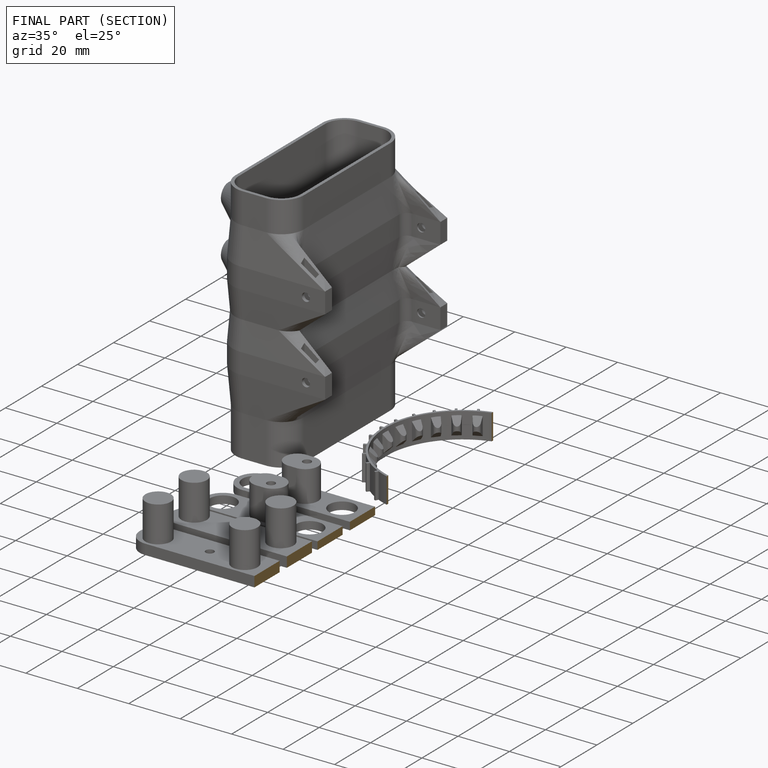
[diagram: finished part — half-section view (interior)]
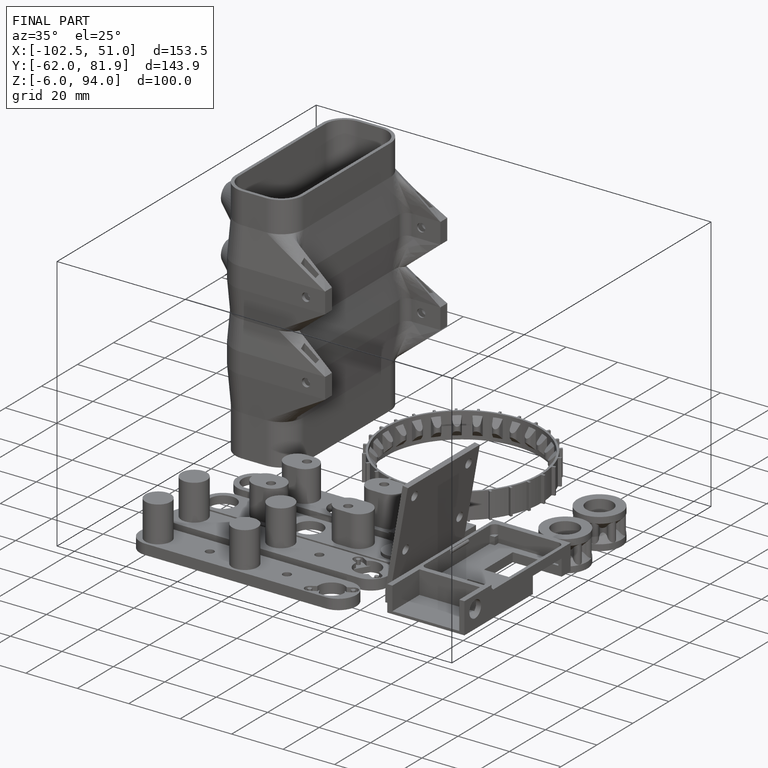
[diagram: finished part — iso view with bounding-box wireframe]
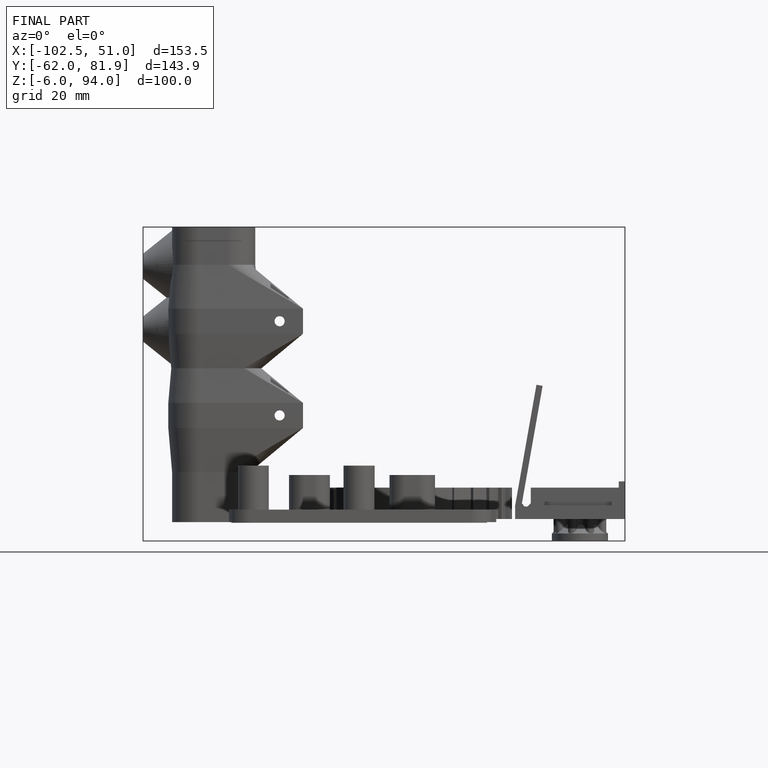
[diagram: finished part — front view with bounding-box wireframe]
